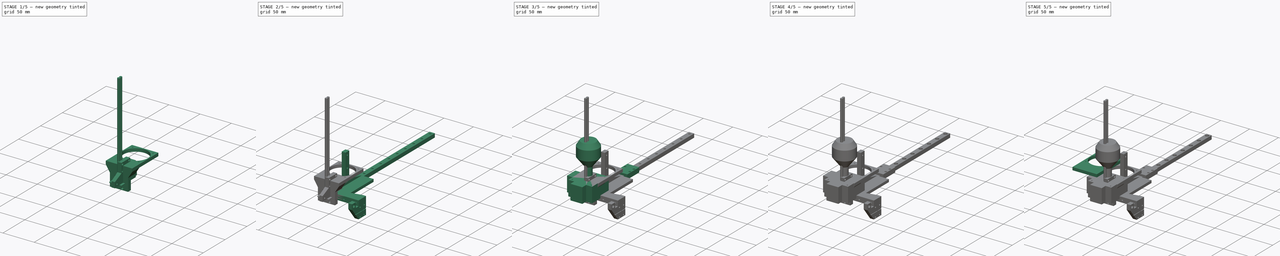
[diagram: build sequence overview — one tinted view per stage of 5, left to right]
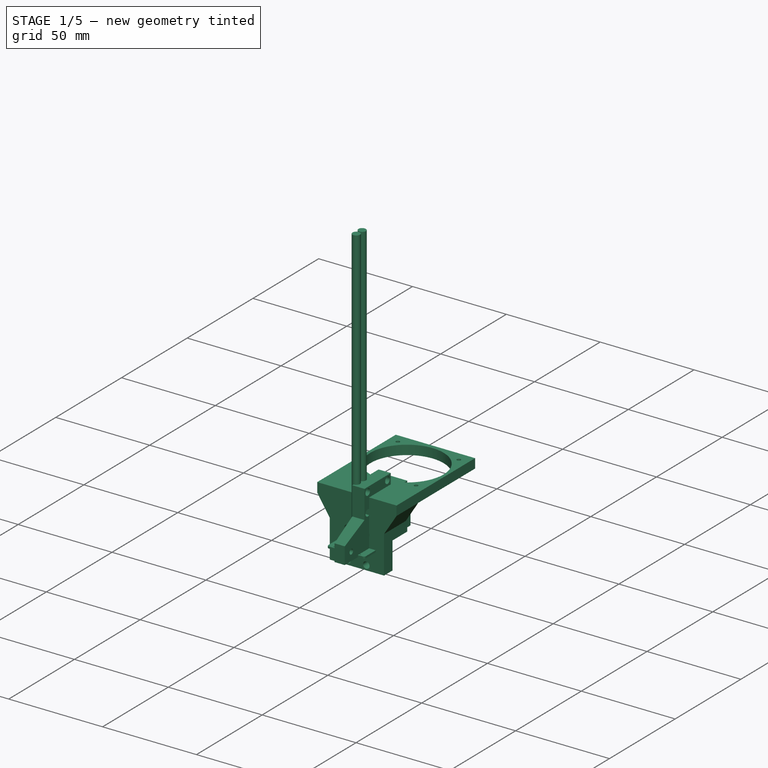
[diagram: stage 1 of 5 — iso view after this stage's code; geometry added in this stage tinted green]
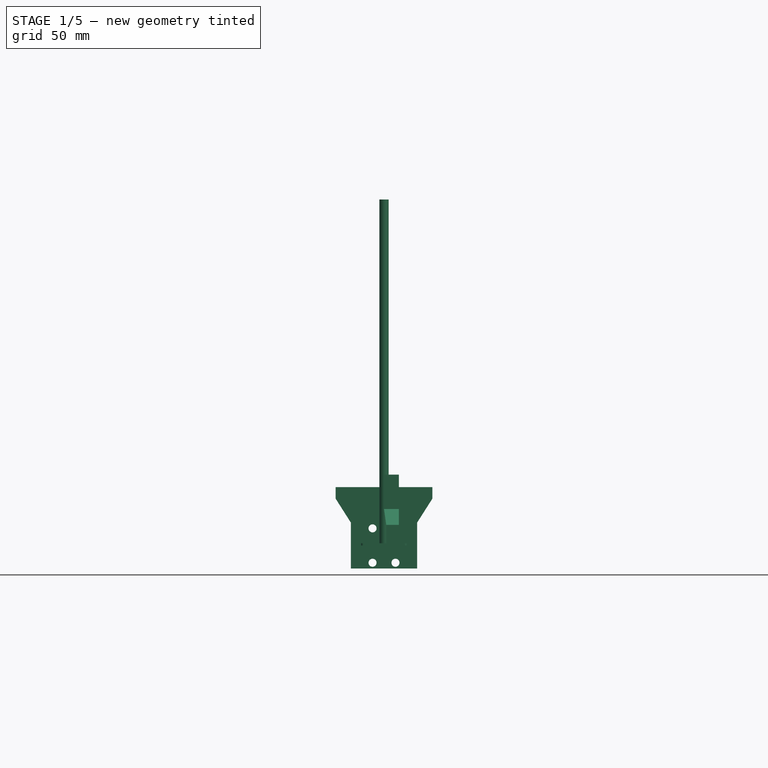
[diagram: stage 1 of 5 — front view after this stage's code; geometry added in this stage tinted green]
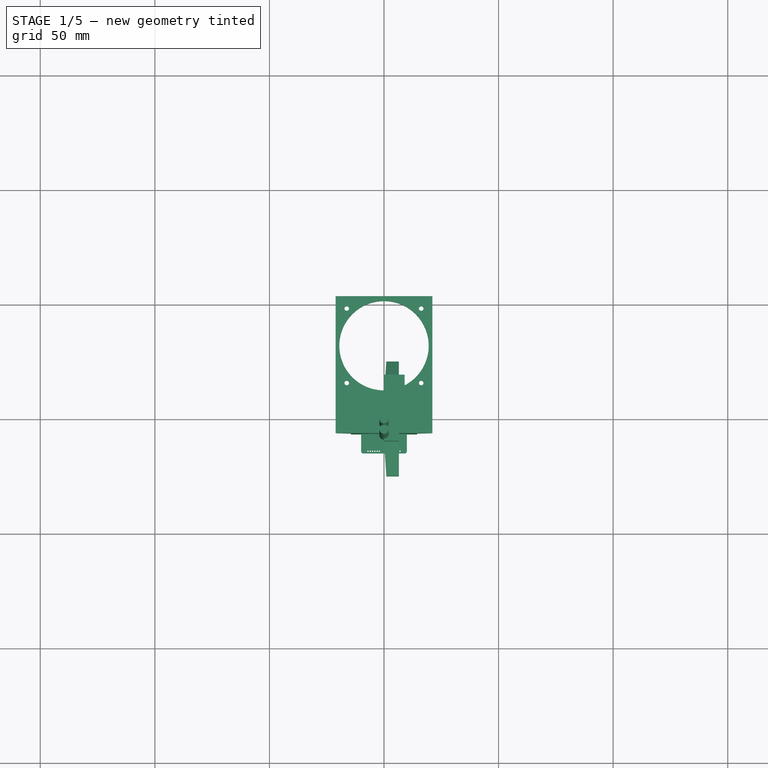
[diagram: stage 1 of 5 — top view after this stage's code; geometry added in this stage tinted green]
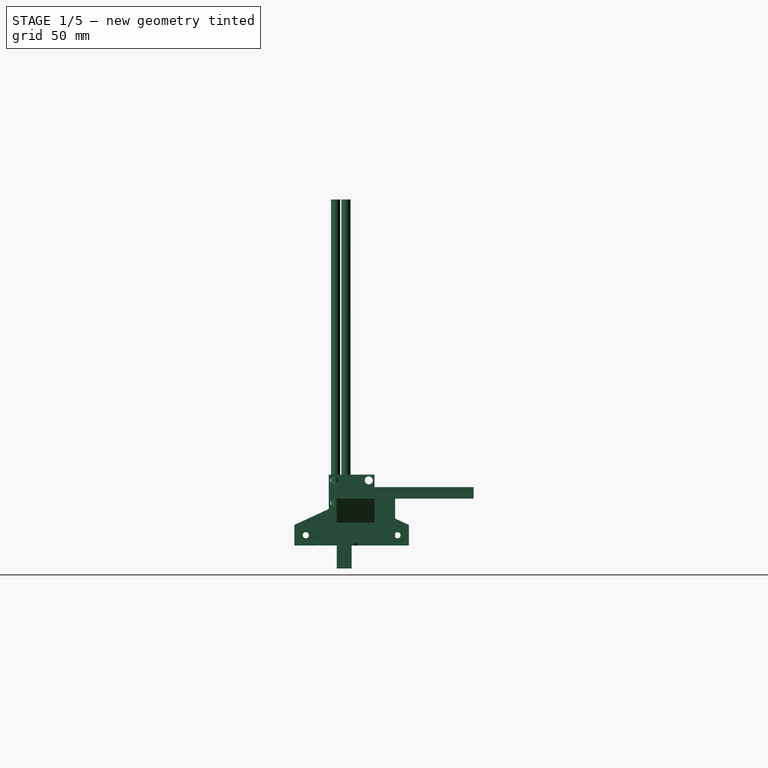
[diagram: stage 1 of 5 — right view after this stage's code; geometry added in this stage tinted green]
FCSTD DOCUMENT  (FreeCAD 0.19R24291 (Git))
Label: v5_changed
License: All rights reserved
LicenseURL: http://en.wikipedia.org/wiki/All_rights_reserved
objects: Sketcher::SketchObject×52, PartDesign::Pad×30, PartDesign::Pocket×21, PartDesign::Body×15, PartDesign::LinearPattern×12, Spreadsheet::Sheet×9, App::LinkGroup×2, PartDesign::Revolution×1, Part::Box×1, Part::Cut×1
note: 185 computed .brp shape members not serialized (recipe doc carries the construction recipe); baked Part::Feature solids carry a one-line shape summary decoded from their .brp

FEATURE [Sketcher::SketchObject] Sketch010
  FullyConstrained = true
  MapMode = 5
  Placement = pos=(0,0,0) rot=(1,0,0;1.5708rad)
  Support = -> [XZ_Plane003]
  expr: Constraints[46] = <<XJC>>.TS
  expr: Constraints[39] = <<XJC>>.TW
  expr: Constraints[31] = <<X>>.VSTR / 2 + <<General>>.Safety
  expr: Constraints[28] = <<Rail>>.SBD / 2
  expr: Constraints[29] = <<Rail>>.SBD / 2
  expr: Constraints[26] = <<Rail>>.SBD / 2
  expr: Constraints[24] = <<Rail>>.HSW
  expr: Constraints[23] = <<Rail>>.HSL
  expr: Constraints[27] = <<Rail>>.SBD / 2
  expr: Constraints[9] = <<Rail>>.HW
  expr: Constraints[8] = <<Rail>>.HL
  sketch-geometry (20):
    g0: LineSegment StartX=-14.45 StartY=10 StartZ=0 EndX=14.45 EndY=10 EndZ=0
    g1: LineSegment StartX=14.45 StartY=10 StartZ=0 EndX=14.45 EndY=-10 EndZ=0
    g2: LineSegment StartX=14.45 StartY=-10 StartZ=0 EndX=-14.45 EndY=-10 EndZ=0
    g3: LineSegment StartX=-14.45 StartY=-10 StartZ=0 EndX=-14.45 EndY=10 EndZ=0
    g4: Circle CenterX=-5 CenterY=7.5 CenterZ=0 NormalX=0 NormalY=0 NormalZ=1 AngleXU=0 Radius=1.75
    g5: Circle CenterX=5 CenterY=7.5 CenterZ=0 NormalX=0 NormalY=0 NormalZ=1 AngleXU=0 Radius=1.75
    g6: Circle CenterX=-5 CenterY=-7.5 CenterZ=0 NormalX=0 NormalY=0 NormalZ=1 AngleXU=0 Radius=1.75
    g7: Circle CenterX=5 CenterY=-7.5 CenterZ=0 NormalX=0 NormalY=0 NormalZ=1 AngleXU=0 Radius=1.75
    g8: LineSegment StartX=-5 StartY=7.5 StartZ=0 EndX=5 EndY=7.5 EndZ=0
    g9: LineSegment StartX=5 StartY=7.5 StartZ=0 EndX=5 EndY=-7.5 EndZ=0
    g10: LineSegment StartX=5 StartY=-7.5 StartZ=0 EndX=-5 EndY=-7.5 EndZ=0
    g11: LineSegment StartX=-5 StartY=-7.5 StartZ=0 EndX=-5 EndY=7.5 EndZ=0
    g12: GeomPoint X=0 Y=5.5 Z=0
    g13: LineSegment StartX=-21.125 StartY=25.5 StartZ=0 EndX=21.125 EndY=25.5 EndZ=0
    g14: LineSegment StartX=21.125 StartY=25.5 StartZ=0 EndX=21.125 EndY=20.5 EndZ=0
    g15: LineSegment StartX=21.125 StartY=20.5 StartZ=0 EndX=-21.125 EndY=20.5 EndZ=0
    g16: LineSegment StartX=-21.125 StartY=20.5 StartZ=0 EndX=-21.125 EndY=25.5 EndZ=0
    g17: LineSegment StartX=21.125 StartY=20.5 StartZ=0 EndX=14.45 EndY=10 EndZ=0
    g18: LineSegment StartX=-21.125 StartY=20.5 StartZ=0 EndX=-14.45 EndY=10 EndZ=0
    g19: LineSegment StartX=-14.45 StartY=-10 StartZ=0 EndX=14.45 EndY=-10 EndZ=0
  constraints (49):
    c: Coincident(g0,g1)
    c: Coincident(g1,g2)
    c: Coincident(g2,g3)
    c: Coincident(g3,g0)
    c: Horizontal(g0)
    c: Horizontal(g2)
    c: Vertical(g1)
    c: Vertical(g3)
    c: DistanceX(g0,g0) = 28.9
    c: DistanceY(g3,g3) = 20
    c: Symmetric(g2,g1,g-1)
    c: Coincident(g8,g9)
    c: Coincident(g9,g10)
    c: Coincident(g10,g11)
    c: Coincident(g11,g8)
    c: Horizontal(g8)
    c: Horizontal(g10)
    c: Vertical(g9)
    c: Vertical(g11)
    c: Coincident(g8,g4)
    c: Coincident(g9,g7)
    c: Coincident(g6,g10)
    c: Coincident(g5,g8)
    c: DistanceX(g8,g8) = 10
    c: DistanceY(g9,g9) = 15
    c: Symmetric(g5,g6,g-1)
    c: Radius(g5) = 1.75
    c: Radius(g4) = 1.75
    c: Radius(g7) = 1.75
    c: Radius(g6) = 1.75
    c: PointOnObject(g12,g-2)
    c: DistanceY(g12) = 5.5
    c: Coincident(g13,g14)
    c: Coincident(g14,g15)
    c: Coincident(g15,g16)
    c: Coincident(g16,g13)
    c: Horizontal(g15)
    c: Vertical(g14)
    c: Vertical(g16)
    c: DistanceX(g13,g13) = 42.25
    c: Symmetric(g13,g13,g-2)
    c: Coincident(g17,g14)
    c: Coincident(g17,g1)
    c: Coincident(g18,g16)
    c: Coincident(g18,g3)
    c: DistanceY(g12,g13) = 20
    c: DistanceY(g14,g14) = 5
    c: Coincident(g19,g3)
    c: Coincident(g1,g19)
FEATURE [PartDesign::Pad] Pad005
  Direction = (1,1,1)
  Length = 6.5
  Length2 = 100
  Placement = pos=(0,0,0) rot=(1,0,0;1.5708rad)
  Profile = -> Sketch010
  Type = 0
  expr: Length = <<Rail>>.RSLH
FEATURE [Sketcher::SketchObject] Sketch011
  ExternalGeometry = -> [Pad005]
  FullyConstrained = true
  MapMode = 5
  Placement = pos=(0,0,0) rot=(1,0,0;1.5708rad)
  Support = -> [XZ_Plane003]
  expr: Constraints[23] = <<Rail>>.RW / 2 + <<General>>.Safety
  expr: Constraints[22] = <<Rail>>.HW / 2
  expr: Constraints[20] = <<Rail>>.HL
  expr: Constraints[13] = <<XJC>>.TS
  sketch-geometry (10):
    g0: LineSegment StartX=-21.125 StartY=25.5 StartZ=0 EndX=21.125 EndY=25.5 EndZ=0
    g1: LineSegment StartX=21.125 StartY=25.5 StartZ=0 EndX=21.125 EndY=20.5 EndZ=0
    g2: LineSegment StartX=21.125 StartY=20.5 StartZ=0 EndX=-21.125 EndY=20.5 EndZ=0
    g3: LineSegment StartX=-21.125 StartY=20.5 StartZ=0 EndX=-21.125 EndY=25.5 EndZ=0
    g4: LineSegment StartX=-21.125 StartY=20.5 StartZ=0 EndX=-11.5893 EndY=5.5 EndZ=0
    g5: LineSegment StartX=-11.5893 StartY=5.5 StartZ=0 EndX=11.5893 EndY=5.5 EndZ=0
    g6: LineSegment StartX=11.5893 StartY=5.5 StartZ=0 EndX=21.125 EndY=20.5 EndZ=0
    g7: LineSegment StartX=-14.45 StartY=10 StartZ=0 EndX=14.45 EndY=10 EndZ=0
    g8: LineSegment StartX=14.45 StartY=10 StartZ=0 EndX=21.125 EndY=20.5 EndZ=0
    g9: LineSegment StartX=-21.125 StartY=20.5 StartZ=0 EndX=-14.45 EndY=10 EndZ=0
  constraints (25):
    c: Coincident(g0,g1)
    c: Coincident(g1,g2)
    c: Coincident(g2,g3)
    c: Coincident(g3,g0)
    c: Horizontal(g2)
    c: Vertical(g1)
    c: Vertical(g3)
    c: Coincident(g4,g3)
    c: Coincident(g5,g4)
    c: Horizontal(g5)
    c: Coincident(g6,g5)
    c: Coincident(g6,g1)
    c: Symmetric(g0,g0,g-2)
    c: DistanceY(g1,g1) = 5
    c: PointOnObject(g7,g4)
    c: PointOnObject(g7,g6)
    c: Coincident(g8,g7)
    c: Coincident(g8,g1)
    c: Coincident(g9,g3)
    c: Coincident(g9,g7)
    c: DistanceX(g7,g7) = 28.9
    c: Symmetric(g7,g7,g-2)
    c: DistanceY(g-1,g7) = 10
    c: DistanceY(g-1,g5) = 5.5
    c: Coincident(g1,g-3)
FEATURE [PartDesign::Pad] Pad006
  BaseFeature = -> Pad005
  Direction = (1,1,1)
  Length = 10
  Length2 = 100
  Placement = pos=(0,0,0) rot=(1,0,0;1.5708rad)
  Profile = -> Sketch011
  Reversed = true
  Type = 0
  expr: Length = <<Rail>>.RB2HB + <<Rail>>.HH
FEATURE [Sketcher::SketchObject] Sketch012
  FullyConstrained = true
  MapMode = 5
  Placement = pos=(0,0,0) rot=(0.57735,0.57735,0.57735;2.0944rad)
  Support = -> [YZ_Plane003]
  expr: Constraints[8] = <<General>>.HM / 2
  expr: Constraints[7] = <<Rail>>.HW / 2
  expr: Constraints[2] = <<Rail>>.RB2HB + <<Rail>>.HH
  expr: Constraints[0] = <<General>>.D4S / 2
  sketch-geometry (4):
    g0: Circle CenterX=5 CenterY=-14.5 CenterZ=0 NormalX=0 NormalY=0 NormalZ=1 AngleXU=0 Radius=3
    g1: GeomPoint X=10 Y=0 Z=0
    g2: LineSegment StartX=5 StartY=0 StartZ=0 EndX=5 EndY=-14.5 EndZ=0
    g3: GeomPoint X=5 Y=-10 Z=0
  constraints (9):
    c: Radius(g0) = 3
    c: PointOnObject(g1,g-1)
    c: DistanceX(g1) = 10
    c: Coincident(g2,g0)
    c: Vertical(g2)
    c: Symmetric(g-1,g1,g2)
    c: PointOnObject(g3,g2)
    c: DistanceY(g3,g2) = 10
    c: DistanceY(g0,g3) = 4.5
FEATURE [PartDesign::Pocket] Pocket004
  BaseFeature = -> Pad006
  Length = 28.9
  Length2 = 100
  Midplane = true
  Placement = pos=(0,0,0) rot=(1,0,0;1.5708rad)
  Profile = -> Sketch012
  Type = 0
  expr: Length = <<Rail>>.HL
FEATURE [PartDesign::Body] Body010  label="PR Z 2"
  Group = -> [Sketch046,Pad023,Sketch043,Pocket019,LinearPattern010,Sketch045,Pocket020,LinearPattern011,Sketch044,Pad024]
  Origin = -> Origin010
  Placement = pos=(0,0,0) rot=(0.57735,-0.57735,-0.57735;2.0944rad)
  Tip = -> Pad024
FEATURE [Sketcher::SketchObject] Sketch047
  FullyConstrained = true
  MapMode = 5
  Placement = pos=(0,0,0) rot=(0.57735,0.57735,0.57735;2.0944rad)
  Support = -> [YZ_Plane011]
  expr: Constraints[53] = <<Rail>>.HL / 2
  expr: Constraints[54] = <<Rail>>.HSW
  expr: Constraints[48] = <<General>>.SBED / 2
  expr: Constraints[16] = <<Rail>>.HSW
  expr: Constraints[15] = <<Rail>>.HSL
  expr: Constraints[45] = <<Rail>>.RS2SO
  expr: Constraints[24] = <<Rail>>.SBD / 2
  expr: Constraints[47] = <<General>>.SBED / 2
  expr: Constraints[46] = <<General>>.SBED / 2
  expr: Constraints[23] = <<Rail>>.SBD / 2
  expr: Constraints[22] = <<Rail>>.SBD / 2
  expr: Constraints[55] = <<Rail>>.RS2SO * 2 + <<Rail>>.RFSO * 2
  expr: Constraints[50] = <<Rail>>.RW
  expr: Constraints[21] = <<Rail>>.SBD / 2
  expr: Constraints[51] = <<Rail>>.HW
  sketch-geometry (26):
    g0: LineSegment StartX=-10 StartY=30.95 StartZ=0 EndX=10 EndY=30.95 EndZ=0
    g1: LineSegment StartX=10 StartY=30.95 StartZ=0 EndX=10 EndY=15.95 EndZ=0
    g2: LineSegment StartX=10 StartY=15.95 StartZ=0 EndX=-10 EndY=15.95 EndZ=0
    g3: LineSegment StartX=-10 StartY=15.95 StartZ=0 EndX=-10 EndY=30.95 EndZ=0
    g4: LineSegment StartX=-7.5 StartY=28.45 StartZ=0 EndX=7.5 EndY=28.45 EndZ=0
    g5: LineSegment StartX=7.5 StartY=28.45 StartZ=0 EndX=7.5 EndY=18.45 EndZ=0
    g6: LineSegment StartX=7.5 StartY=18.45 StartZ=0 EndX=-7.5 EndY=18.45 EndZ=0
    g7: LineSegment StartX=-7.5 StartY=18.45 StartZ=0 EndX=-7.5 EndY=28.45 EndZ=0
    g8: Circle CenterX=-7.5 CenterY=28.45 CenterZ=0 NormalX=0 NormalY=0 NormalZ=1 AngleXU=0 Radius=1.75
    g9: Circle CenterX=7.5 CenterY=28.45 CenterZ=0 NormalX=0 NormalY=0 NormalZ=1 AngleXU=0 Radius=1.75
    g10: Circle CenterX=7.5 CenterY=18.45 CenterZ=0 NormalX=0 NormalY=0 NormalZ=1 AngleXU=0 Radius=1.75
    g11: Circle CenterX=-7.5 CenterY=18.45 CenterZ=0 NormalX=0 NormalY=0 NormalZ=1 AngleXU=0 Radius=1.75
    g12: LineSegment StartX=-10 StartY=15.95 StartZ=0 EndX=10 EndY=15.95 EndZ=0
    g13: LineSegment StartX=10 StartY=15.95 StartZ=0 EndX=25 EndY=9 EndZ=0
    g14: LineSegment StartX=25 StartY=9 StartZ=0 EndX=-25 EndY=9 EndZ=0
    g15: LineSegment StartX=-25 StartY=9 StartZ=0 EndX=-10 EndY=15.95 EndZ=0
    g16: LineSegment StartX=-25 StartY=9 StartZ=0 EndX=25 EndY=9 EndZ=0
    g17: LineSegment StartX=25 StartY=9 StartZ=0 EndX=25 EndY=0 EndZ=0
    g18: LineSegment StartX=25 StartY=0 StartZ=0 EndX=-25 EndY=0 EndZ=0
    g19: LineSegment StartX=-25 StartY=0 StartZ=0 EndX=-25 EndY=9 EndZ=0
    g20: Circle CenterX=-20 CenterY=4.5 CenterZ=0 NormalX=0 NormalY=0 NormalZ=1 AngleXU=0 Radius=1.3375
    g21: Circle CenterX=-3e-16 CenterY=4.5 CenterZ=0 NormalX=0 NormalY=0 NormalZ=1 AngleXU=0 Radius=1.3375
    g22: Circle CenterX=20 CenterY=4.5 CenterZ=0 NormalX=0 NormalY=0 NormalZ=1 AngleXU=0 Radius=1.3375
    g23: LineSegment StartX=-20 StartY=4.5 StartZ=0 EndX=20 EndY=4.5 EndZ=0
    g24: GeomPoint X=-10 Y=23.45 Z=0
    g25: GeomPoint X=-2e-16 Y=23.45 Z=0
  constraints (60):
    c: Coincident(g0,g1)
    c: Coincident(g1,g2)
    c: Coincident(g2,g3)
    c: Coincident(g3,g0)
    c: Horizontal(g2)
    c: Vertical(g1)
    c: Vertical(g3)
    c: Coincident(g4,g5)
    c: Coincident(g5,g6)
    c: Coincident(g6,g7)
    c: Coincident(g7,g4)
    c: Horizontal(g4)
    c: Horizontal(g6)
    c: Vertical(g5)
    c: Vertical(g7)
    c: DistanceY(g5,g5) = 10
    c: DistanceX(g6,g6) = 15
    c: Coincident(g8,g4)
    c: Coincident(g9,g4)
    c: Coincident(g10,g5)
    c: Coincident(g11,g6)
    c: Radius(g11) = 1.75
    c: Radius(g8) = 1.75
    c: Radius(g9) = 1.75
    c: Radius(g10) = 1.75
    c: Coincident(g12,g13)
    c: Coincident(g13,g14)
    c: Coincident(g14,g15)
    c: Coincident(g15,g12)
    c: Coincident(g12,g3)
    c: Symmetric(g14,g13,g-2)
    c: Symmetric(g0,g0,g-2)
    c: Coincident(g12,g1)
    c: Coincident(g16,g17)
    c: Coincident(g17,g18)
    c: Coincident(g18,g19)
    c: Coincident(g19,g16)
    c: Horizontal(g18)
    c: Vertical(g17)
    c: Vertical(g19)
    c: Coincident(g16,g14)
    c: Coincident(g13,g16)
    c: Coincident(g23,g20)
    c: Coincident(g23,g22)
    c: PointOnObject(g21,g23)
    c: DistanceX(g21,g22) = 20
    c: Radius(g22) = 1.3375
    c: Radius(g21) = 1.3375
    c: Radius(g20) = 1.3375
    c: Symmetric(g14,g17,g21)
    c: DistanceY(g17,g17) = 9
    c: DistanceX(g12,g12) = 20
    c: Symmetric(g0,g3,g24)
    c: DistanceY(g14,g24) = 14.45
    c: DistanceY(g3,g3) = 15
    c: DistanceX(g18,g18) = 50
    c: Symmetric(g0,g3,g25)
    c: Symmetric(g8,g10,g25)
    c: PointOnObject(g-1,g18)
    c: Symmetric(g20,g22,g-2)
FEATURE [Spreadsheet::Sheet] Spreadsheet008  label="YZC"
FEATURE [PartDesign::Pad] Pad025
  Direction = (1,1,1)
  Length = 6.5
  Length2 = 100
  Placement = pos=(0,0,0) rot=(0.57735,0.57735,0.57735;2.0944rad)
  Profile = -> Sketch047
  Type = 0
  expr: Length = <<Rail>>.RSLH
FEATURE [Sketcher::SketchObject] Sketch048
  ExternalGeometry = -> [Pad025]
  FullyConstrained = true
  MapMode = 5
  Placement = pos=(0,0,0) rot=(1,0,0;1.5708rad)
  Support = -> [XZ_Plane011]
  expr: Constraints[9] = <<Rail>>.RSLH - <<Rail>>.RSLR
  expr: Constraints[7] = 0
  sketch-geometry (4):
    g0: LineSegment StartX=0 StartY=15.95 StartZ=0 EndX=0 EndY=0 EndZ=0
    g1: LineSegment StartX=0 StartY=0 StartZ=0 EndX=1 EndY=0 EndZ=0
    g2: LineSegment StartX=1 StartY=0 StartZ=0 EndX=1 EndY=9 EndZ=0
    g3: LineSegment StartX=1 StartY=9 StartZ=0 EndX=0 EndY=15.95 EndZ=0
  constraints (11):
    c: PointOnObject(g0,g-2)
    c: Coincident(g0,g-1)
    c: Coincident(g0,g1)
    c: Coincident(g1,g2)
    c: Vertical(g2)
    c: Coincident(g2,g3)
    c: Coincident(g0,g3)
    c: DistanceY(g0,g-3) = 0
    c: Horizontal(g1)
    c: DistanceX(g1) = 1
    c: DistanceY(g2,g-3) = 0
FEATURE [PartDesign::Pocket] Pocket021
  BaseFeature = -> Pad025
  Length = 5
  Length2 = 100
  Midplane = true
  Placement = pos=(0,0,0) rot=(0.57735,0.57735,0.57735;2.0944rad)
  Profile = -> Sketch048
  Type = 1
FEATURE [PartDesign::Body] Body011  label="YZC Part"
  Group = -> [Sketch047,Pad025,Sketch048,Pocket021,Sketch056,Pocket025]
  Origin = -> Origin011
  Placement = pos=(-141.5,-20,60.5) rot=(0,0,1;0rad)
  Tip = -> Pocket025
  expr: .Placement.Base.y = -30.68 - 0.87 + 8.050000000000001 + <<Rail>>.SBD
  expr: .Placement.Base.x = -125 - 6.5 - 10
  expr: .Placement.Base.z = <<Rail>>.Axial_Offset - 19.5
FEATURE [Sketcher::SketchObject] Sketch057
  FullyConstrained = true
  MapMode = 5
  Support = -> [XY_Plane013]
  expr: Constraints[12] = <<Rail>>.RFSO
  expr: Constraints[10] = <<General>>.SBED / 2
  expr: Constraints[14] = <<General>>.HM
  expr: Constraints[9] = <<Rail>>.RW
  sketch-geometry (6):
    g0: LineSegment StartX=0 StartY=0 StartZ=0 EndX=9 EndY=0 EndZ=0
    g1: LineSegment StartX=9 StartY=0 StartZ=0 EndX=9 EndY=19 EndZ=0
    g2: LineSegment StartX=9 StartY=19 StartZ=0 EndX=0 EndY=19 EndZ=0
    g3: LineSegment StartX=0 StartY=19 StartZ=0 EndX=0 EndY=0 EndZ=0
    g4: Circle CenterX=4.5 CenterY=5 CenterZ=0 NormalX=0 NormalY=0 NormalZ=1 AngleXU=0 Radius=1.3375
    g5: GeomPoint X=9 Y=10 Z=0
  constraints (15):
    c: Coincident(g0,g1)
    c: Coincident(g1,g2)
    c: Coincident(g2,g3)
    c: Coincident(g3,g0)
    c: Horizontal(g0)
    c: Horizontal(g2)
    c: Vertical(g1)
    c: Vertical(g3)
    c: Coincident(g0,g-1)
    c: DistanceX(g0,g0) = 9
    c: Radius(g4) = 1.3375
    c: PointOnObject(g5,g1)
    c: DistanceY(g0,g4) = 5
    c: Symmetric(g5,g0,g4)
    c: DistanceY(g5,g1) = 9
FEATURE [PartDesign::Pad] Pad030
  Direction = (1,1,1)
  Length = 9
  Length2 = 100
  Profile = -> Sketch057
  Type = 0
  expr: Length = <<General>>.HM
FEATURE [Sketcher::SketchObject] Sketch058
  ExternalGeometry = -> [Pad030]
  FullyConstrained = true
  MapMode = 5
  Placement = pos=(0,0,9) rot=(0,0,1;0rad)
  Support = -> [Pad030]
  expr: Constraints[10] = <<General>>.HM
  sketch-geometry (4):
    g0: LineSegment StartX=9 StartY=19 StartZ=0 EndX=0 EndY=19 EndZ=0
    g1: LineSegment StartX=0 StartY=19 StartZ=0 EndX=0 EndY=10 EndZ=0
    g2: LineSegment StartX=0 StartY=10 StartZ=0 EndX=9 EndY=10 EndZ=0
    g3: LineSegment StartX=9 StartY=10 StartZ=0 EndX=9 EndY=19 EndZ=0
  constraints (11):
    c: Coincident(g0,g1)
    c: Coincident(g1,g2)
    c: Coincident(g2,g3)
    c: Coincident(g3,g0)
    c: Horizontal(g0)
    c: Horizontal(g2)
    c: Vertical(g1)
    c: Vertical(g3)
    c: Coincident(g0,g-3)
    c: PointOnObject(g1,g-2)
    c: DistanceY(g3,g3) = 9
FEATURE [PartDesign::Pad] Pad031
  BaseFeature = -> Pad030
  Direction = (1,1,1)
  Length = 15.5
  Length2 = 100
  Profile = -> Sketch058
  Type = 0
  expr: Length = <<Rail>>.RH + <<General>>.HM
FEATURE [Sketcher::SketchObject] Sketch059
  ExternalGeometry = -> [Pad031]
  FullyConstrained = true
  MapMode = 5
  Placement = pos=(0,19,0) rot=(0,0.707107,0.707107;3.14159rad)
  Support = -> [Pad031]
  expr: Constraints[3] = <<General>>.SRD / 2
  expr: Constraints[1] = <<General>>.HM
  sketch-geometry (2):
    g0: GeomPoint X=-9 Y=15.5 Z=0
    g1: Circle CenterX=-4.5 CenterY=20 CenterZ=0 NormalX=0 NormalY=0 NormalZ=1 AngleXU=0 Radius=2.5
  constraints (4):
    c: PointOnObject(g0,g-4)
    c: DistanceY(g0,g-4) = 9
    c: Symmetric(g-3,g0,g1)
    c: Radius(g1) = 2.5
FEATURE [PartDesign::Pocket] Pocket026
  BaseFeature = -> Pad031
  Length = 5
  Length2 = 100
  Profile = -> Sketch059
  Type = 1
FEATURE [PartDesign::Body] Body013  label="Stopper"
  Group = -> [Sketch057,Pad030,Sketch058,Pad031,Sketch059,Pocket026]
  Origin = -> Origin013
  Placement = pos=(-144,115,69.5) rot=(0,1,0;1.5708rad)
  Tip = -> Pocket026
  expr: .Placement.Base.x = -119.5 - 24.5
  expr: .Placement.Base.z = 60.5 + 9
FEATURE [Sketcher::SketchObject] Sketch060
  FullyConstrained = true
  MapMode = 5
  Support = -> [XY_Plane014]
  sketch-geometry (22):
    g0: LineSegment StartX=-4 StartY=1 StartZ=0 EndX=4 EndY=1 EndZ=0
    g1: LineSegment StartX=4 StartY=1 StartZ=0 EndX=4 EndY=-6 EndZ=0
    g2: LineSegment StartX=4 StartY=-6 StartZ=0 EndX=-4 EndY=-6 EndZ=0
    g3: LineSegment StartX=-4 StartY=-6 StartZ=0 EndX=-4 EndY=1 EndZ=0
    g4: Circle CenterX=-3 CenterY=0 CenterZ=0 NormalX=0 NormalY=0 NormalZ=1 AngleXU=0 Radius=0.5
    g5: Circle CenterX=3 CenterY=0 CenterZ=0 NormalX=0 NormalY=0 NormalZ=1 AngleXU=0 Radius=0.5
    g6: Circle CenterX=-3 CenterY=-5 CenterZ=0 NormalX=0 NormalY=0 NormalZ=1 AngleXU=0 Radius=0.3
    g7: Circle CenterX=-2 CenterY=-5 CenterZ=0 NormalX=0 NormalY=0 NormalZ=1 AngleXU=0 Radius=0.3
    g8: Circle CenterX=-1 CenterY=-5 CenterZ=0 NormalX=0 NormalY=0 NormalZ=1 AngleXU=0 Radius=0.3
    g9: Circle CenterX=1e-16 CenterY=-5 CenterZ=0 NormalX=0 NormalY=0 NormalZ=1 AngleXU=0 Radius=0.3
    g10: Circle CenterX=1 CenterY=-5 CenterZ=0 NormalX=0 NormalY=0 NormalZ=1 AngleXU=0 Radius=0.3
    g11: Circle CenterX=2 CenterY=-5 CenterZ=0 NormalX=0 NormalY=0 NormalZ=1 AngleXU=0 Radius=0.3
    g12: Circle CenterX=3 CenterY=-5 CenterZ=0 NormalX=0 NormalY=0 NormalZ=1 AngleXU=0 Radius=0.3
    g13: LineSegment StartX=-4 StartY=-5 StartZ=0 EndX=4 EndY=-5 EndZ=0
    g14: ArcOfCircle CenterX=-3 CenterY=4e-16 CenterZ=0 NormalX=0 NormalY=0 NormalZ=1 AngleXU=0 Radius=1 StartAngle=1.5708 EndAngle=3.14159
    g15: ArcOfCircle CenterX=3 CenterY=4e-16 CenterZ=0 NormalX=0 NormalY=0 NormalZ=1 AngleXU=0 Radius=1 StartAngle=6.28319 EndAngle=7.85398
    g16: ArcOfCircle CenterX=3 CenterY=-5 CenterZ=0 NormalX=0 NormalY=0 NormalZ=1 AngleXU=0 Radius=1 StartAngle=4.71239 EndAngle=6.28319
    g17: ArcOfCircle CenterX=-3 CenterY=-5 CenterZ=0 NormalX=0 NormalY=0 NormalZ=1 AngleXU=0 Radius=1 StartAngle=3.14159 EndAngle=4.71239
    g18: LineSegment StartX=-3 StartY=1 StartZ=0 EndX=3 EndY=1 EndZ=0
    g19: LineSegment StartX=4 StartY=-1.40944e-08 StartZ=0 EndX=4 EndY=-5 EndZ=0
    g20: LineSegment StartX=-3 StartY=-6 StartZ=0 EndX=3 EndY=-6 EndZ=0
    g21: LineSegment StartX=-4 StartY=-5 StartZ=0 EndX=-4 EndY=1.47689e-08 EndZ=0
  constraints (70):
    c: Coincident(g0,g1)
    c: Coincident(g1,g2)
    c: Coincident(g2,g3)
    c: Coincident(g3,g0)
    c: Horizontal(g2)
    c: Vertical(g1)
    c: Vertical(g3)
    c: DistanceX(g0,g0) = 8
    c: DistanceY(g1,g1) = 7
    c: Radius(g4) = 0.5
    c: DistanceX(g4,g5) = 6
    c: Symmetric(g4,g5,g-2)
    c: Symmetric(g0,g0,g-2)
    c: DistanceY(g2,g4) = 6
    c: Radius(g5) = 0.5
    c: PointOnObject(g13,g3)
    c: Horizontal(g13)
    c: Equal(g13,g2)
    c: PointOnObject(g12,g13)
    c: PointOnObject(g11,g13)
    c: PointOnObject(g10,g13)
    c: PointOnObject(g9,g13)
    c: PointOnObject(g8,g13)
    c: PointOnObject(g7,g13)
    c: PointOnObject(g6,g13)
    c: DistanceX(g5,g12) = 0
    c: DistanceX(g4,g6) = 0
    c: Radius(g6) = 0.3
    c: Radius(g7) = 0.3
    c: Radius(g8) = 0.3
    c: Radius(g9) = 0.3
    c: Radius(g10) = 0.3
    c: Radius(g11) = 0.3
    c: Radius(g12) = 0.3
    c: DistanceY(g1,g13) = 1
    c: DistanceX(g0,g4) = 1
    c: PointOnObject(g5,g-1)
    c: PointOnObject(g14,g0)
    c: PointOnObject(g14,g3)
    c: PointOnObject(g15,g1)
    c: PointOnObject(g15,g0)
    c: PointOnObject(g16,g2)
    c: PointOnObject(g16,g1)
    c: PointOnObject(g17,g3)
    c: PointOnObject(g17,g2)
    c: Tangent(g17,g2)
    c: Tangent(g3,g17)
    c: Tangent(g14,g0)
    c: Tangent(g3,g14)
    c: Tangent(g15,g1)
    c: Tangent(g15,g0)
    c: Tangent(g16,g1)
    c: Tangent(g16,g2)
    c: Radius(g15) = 1
    c: Radius(g14) = 1
    c: Radius(g17) = 1
    c: Radius(g16) = 1
    c: DistanceX(g6,g7) = 1
    c: DistanceX(g7,g8) = 1
    c: DistanceX(g8,g9) = 1
    c: DistanceX(g9,g10) = 1
    c: DistanceX(g10,g11) = 1
    c: Coincident(g18,g14)
    c: Coincident(g18,g15)
    c: Coincident(g19,g15)
    c: Coincident(g19,g16)
    c: Coincident(g20,g17)
    c: Coincident(g20,g16)
    c: Coincident(g21,g17)
    c: Coincident(g21,g14)
FEATURE [PartDesign::Pad] Pad032
  Direction = (1,1,1)
  Length = 1
  Length2 = 100
  Profile = -> Sketch060
  Type = 0
FEATURE [Sketcher::SketchObject] Sketch061
  ExternalGeometry = -> [Pad032]
  FullyConstrained = true
  MapMode = 5
  Placement = pos=(0,0,1) rot=(0,0,1;0rad)
  Support = -> [Pad032]
  sketch-geometry (3):
    g0: Circle CenterX=0 CenterY=-2.5 CenterZ=0 NormalX=0 NormalY=0 NormalZ=1 AngleXU=0 Radius=2
    g1: LineSegment StartX=-4 StartY=-5 StartZ=0 EndX=4 EndY=-1.40944e-08 EndZ=0
    g2: LineSegment StartX=-4 StartY=1.47689e-08 StartZ=0 EndX=4 EndY=-5 EndZ=0
  constraints (7):
    c: PointOnObject(g0,g-2)
    c: Coincident(g1,g-3)
    c: Coincident(g1,g-4)
    c: Coincident(g2,g-3)
    c: Coincident(g2,g-4)
    c: PointOnObject(g0,g1)
    c: Radius(g0) = 2
FEATURE [PartDesign::Pad] Pad033
  BaseFeature = -> Pad032
  Direction = (1,1,1)
  Length = 150
  Length2 = 100
  Profile = -> Sketch061
  Type = 0
FEATURE [PartDesign::Body] Body014  label="VL6180X "
  Group = -> [Sketch060,Pad032,Sketch061,Pad033]
  Origin = -> Origin014
  Tip = -> Pad033
FEATURE [Sketcher::SketchObject] Sketch063
  FullyConstrained = false
  MapMode = 5
  Support = -> [XY_Plane015]
  sketch-geometry (22):
    g0: LineSegment StartX=-10 StartY=3 StartZ=0 EndX=10 EndY=3 EndZ=0
    g1: LineSegment StartX=10 StartY=3 StartZ=0 EndX=10 EndY=-15 EndZ=0
    g2: LineSegment StartX=10 StartY=-15 StartZ=0 EndX=-10 EndY=-15 EndZ=0
    g3: LineSegment StartX=-10 StartY=-15 StartZ=0 EndX=-10 EndY=3 EndZ=0
    g4: Circle CenterX=-7 CenterY=0 CenterZ=0 NormalX=0 NormalY=0 NormalZ=1 AngleXU=0 Radius=2.5
    g5: Circle CenterX=7 CenterY=0 CenterZ=0 NormalX=0 NormalY=0 NormalZ=1 AngleXU=0 Radius=2.5
    g6: Circle CenterX=-7 CenterY=-14 CenterZ=0 NormalX=0 NormalY=0 NormalZ=1 AngleXU=0 Radius=0.3
    g7: Circle CenterX=-6 CenterY=-14 CenterZ=0 NormalX=0 NormalY=0 NormalZ=1 AngleXU=0 Radius=0.3
    g8: Circle CenterX=-5 CenterY=-14 CenterZ=0 NormalX=0 NormalY=0 NormalZ=1 AngleXU=0 Radius=0.3
    g9: Circle CenterX=-4 CenterY=-14 CenterZ=0 NormalX=0 NormalY=0 NormalZ=1 AngleXU=0 Radius=0.3
    g10: Circle CenterX=-3 CenterY=-14 CenterZ=0 NormalX=0 NormalY=0 NormalZ=1 AngleXU=0 Radius=0.3
    g11: Circle CenterX=-2 CenterY=-14 CenterZ=0 NormalX=0 NormalY=0 NormalZ=1 AngleXU=0 Radius=0.3
    g12: Circle CenterX=7 CenterY=-14 CenterZ=0 NormalX=0 NormalY=0 NormalZ=1 AngleXU=0 Radius=0.3
    g13: LineSegment StartX=-10 StartY=-14 StartZ=0 EndX=10 EndY=-14 EndZ=0
    g14: ArcOfCircle CenterX=-9 CenterY=2 CenterZ=0 NormalX=0 NormalY=0 NormalZ=1 AngleXU=0 Radius=1 StartAngle=1.5708 EndAngle=3.14159
    g15: ArcOfCircle CenterX=7 CenterY=0 CenterZ=0 NormalX=0 NormalY=0 NormalZ=1 AngleXU=0 Radius=3 StartAngle=6.28318 EndAngle=7.85398
    g16: ArcOfCircle CenterX=9 CenterY=-14 CenterZ=0 NormalX=0 NormalY=0 NormalZ=1 AngleXU=0 Radius=1 StartAngle=4.71239 EndAngle=6.28319
    g17: ArcOfCircle CenterX=-9 CenterY=-14 CenterZ=0 NormalX=0 NormalY=0 NormalZ=1 AngleXU=0 Radius=1 StartAngle=3.14159 EndAngle=4.71239
    g18: LineSegment StartX=-9 StartY=3 StartZ=0 EndX=7 EndY=3 EndZ=0
    g19: LineSegment StartX=10 StartY=-1.61116e-05 StartZ=0 EndX=10 EndY=-14 EndZ=0
    g20: LineSegment StartX=-9 StartY=-15 StartZ=0 EndX=9 EndY=-15 EndZ=0
    g21: LineSegment StartX=-10 StartY=-14 StartZ=0 EndX=-10 EndY=2 EndZ=0
  constraints (63):
    c: Coincident(g0,g1)
    c: Coincident(g1,g2)
    c: Coincident(g2,g3)
    c: Coincident(g3,g0)
    c: Horizontal(g2)
    c: Vertical(g1)
    c: Vertical(g3)
    c: DistanceX(g0,g0) = 20
    c: DistanceY(g1,g1) = 18
    c: Radius(g4) = 2.5
    c: Symmetric(g4,g5,g-2)
    c: Symmetric(g0,g0,g-2)
    c: Radius(g5) = 2.5
    c: PointOnObject(g13,g3)
    c: Horizontal(g13)
    c: Equal(g13,g2)
    c: PointOnObject(g12,g13)
    c: PointOnObject(g11,g13)
    c: PointOnObject(g10,g13)
    c: PointOnObject(g9,g13)
    c: PointOnObject(g8,g13)
    c: PointOnObject(g7,g13)
    c: PointOnObject(g6,g13)
    c: DistanceX(g5,g12) = 0
    c: DistanceX(g4,g6) = 0
    c: Radius(g6) = 0.3
    c: Radius(g7) = 0.3
    c: Radius(g8) = 0.3
    c: Radius(g9) = 0.3
    c: Radius(g10) = 0.3
    c: Radius(g11) = 0.3
    c: Radius(g12) = 0.3
    c: DistanceY(g1,g13) = 1
    c: PointOnObject(g5,g-1)
    c: PointOnObject(g14,g0)
    c: PointOnObject(g14,g3)
    c: PointOnObject(g15,g1)
    c: PointOnObject(g15,g0)
    c: PointOnObject(g16,g2)
    c: PointOnObject(g16,g1)
    c: PointOnObject(g17,g3)
    c: PointOnObject(g17,g2)
    c: Tangent(g17,g2)
    c: Tangent(g3,g17)
    c: Tangent(g14,g0)
    c: Tangent(g3,g14)
    c: Tangent(g15,g1)
    c: Tangent(g15,g0)
    c: Tangent(g16,g1)
    c: Tangent(g16,g2)
    c: Radius(g15) = 3
    c: Radius(g14) = 1
    c: Radius(g17) = 1
    c: Radius(g16) = 1
    c: Coincident(g18,g14)
    c: Coincident(g18,g15)
    c: Coincident(g19,g15)
    c: Coincident(g19,g16)
    c: Coincident(g20,g17)
    c: Coincident(g20,g16)
    c: Coincident(g21,g17)
    c: Coincident(g21,g14)
    c: Coincident(g5,g15)
FEATURE [PartDesign::Pad] Pad034
  Direction = (1,1,1)
  Length = 1
  Length2 = 100
  Profile = -> Sketch063
  Type = 0
FEATURE [Sketcher::SketchObject] Sketch062
  ExternalGeometry = -> [Pad034]
  FullyConstrained = true
  MapMode = 5
  Placement = pos=(0,0,1) rot=(0,0,1;0rad)
  Support = -> [Pad034]
  sketch-geometry (3):
    g0: Circle CenterX=0 CenterY=-7.00001 CenterZ=0 NormalX=0 NormalY=0 NormalZ=1 AngleXU=0 Radius=2
    g1: LineSegment StartX=-10 StartY=-14 StartZ=0 EndX=10 EndY=-1.61116e-05 EndZ=0
    g2: LineSegment StartX=-10 StartY=2 StartZ=0 EndX=10 EndY=-14 EndZ=0
  constraints (7):
    c: PointOnObject(g0,g-2)
    c: Coincident(g1,g-3)
    c: Coincident(g1,g-4)
    c: Coincident(g2,g-3)
    c: Coincident(g2,g-4)
    c: PointOnObject(g0,g1)
    c: Radius(g0) = 2
FEATURE [PartDesign::Pad] Pad035
  BaseFeature = -> Pad034
  Direction = (1,1,1)
  Length = 150
  Length2 = 100
  Profile = -> Sketch062
  Type = 0
FEATURE [PartDesign::Body] Body015  label="VL6180X 001"
  Group = -> [Sketch063,Pad034,Sketch062,Pad035]
  Origin = -> Origin015
  Placement = pos=(-129,129,75) rot=(1,0,0;1.5708rad)
  Tip = -> Pad035
FEATURE [PartDesign::Pad] Pad007
  BaseFeature = -> Pocket004
  Direction = (1,1,1)
  Length = 5
  Length2 = 100
  Placement = pos=(0,0,0) rot=(1,0,0;1.5708rad)
  Profile = -> Sketch013
  Reversed = true
  Type = 0
  expr: Length = <<XJC>>.TS
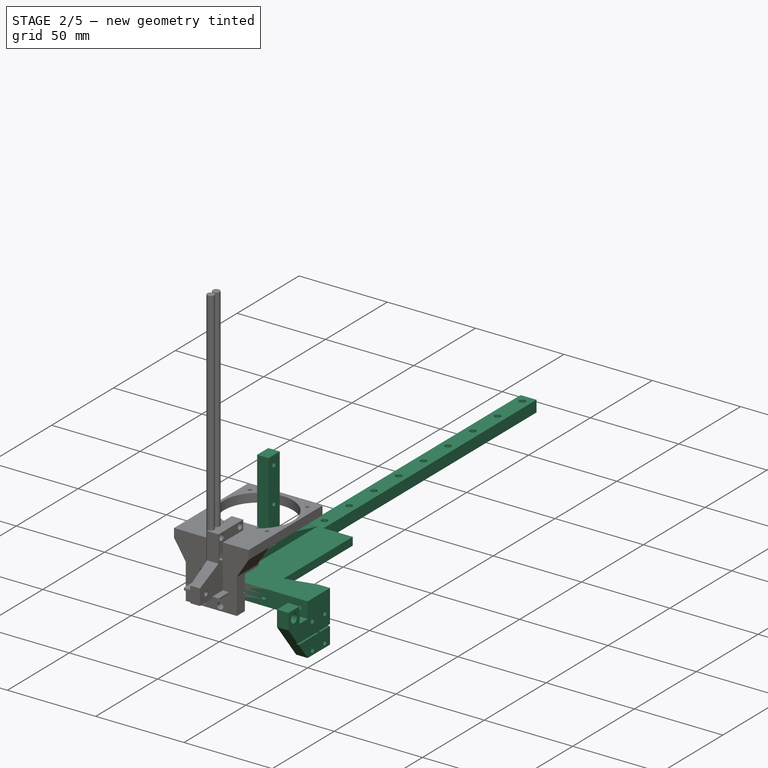
[diagram: stage 2 of 5 — iso view after this stage's code; geometry added in this stage tinted green]
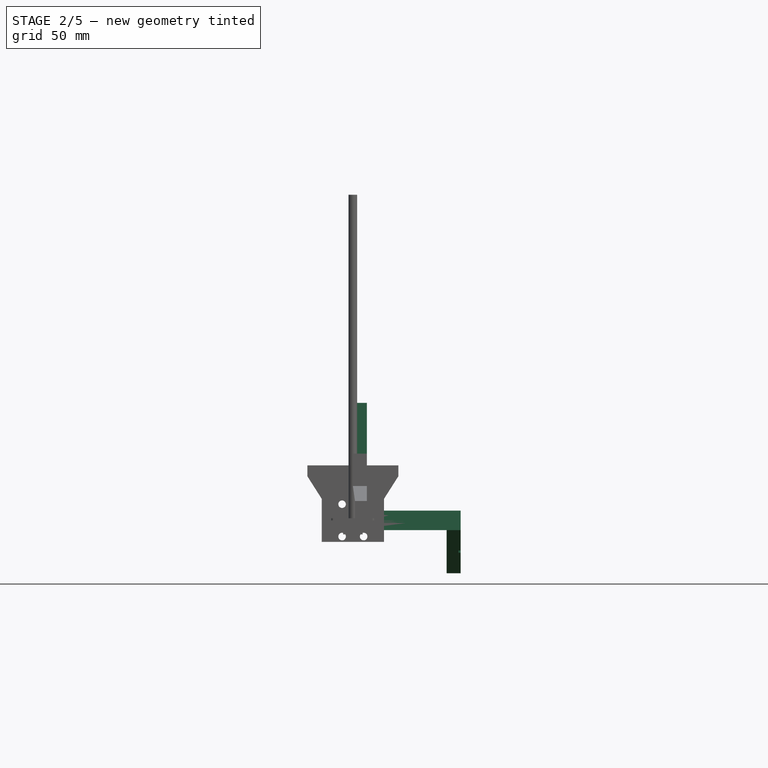
[diagram: stage 2 of 5 — front view after this stage's code; geometry added in this stage tinted green]
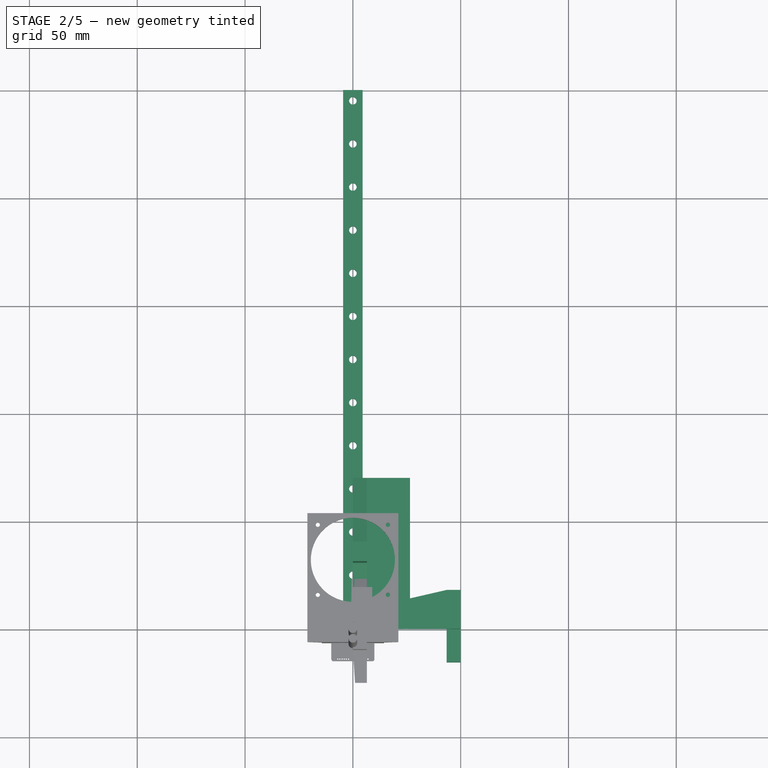
[diagram: stage 2 of 5 — top view after this stage's code; geometry added in this stage tinted green]
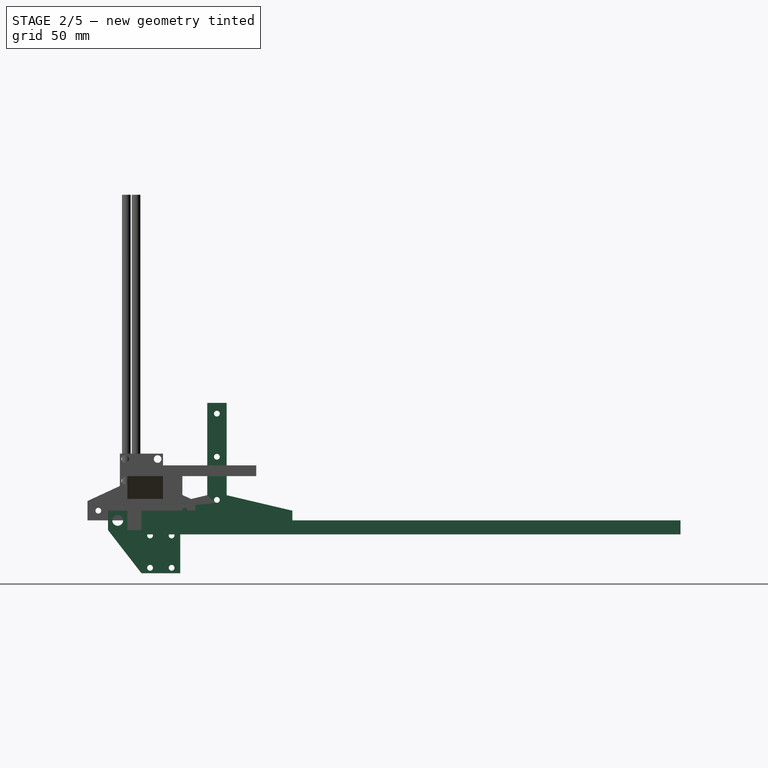
[diagram: stage 2 of 5 — right view after this stage's code; geometry added in this stage tinted green]
FEATURE [PartDesign::Body] Body  label="ProtoRail"
  Group = -> [Sketch,Pad,Sketch001,Pocket,LinearPattern,Sketch002,Pocket001,LinearPattern001,Sketch005,Pad002]
  Origin = -> Origin
  Tip = -> Pad002
FEATURE [Spreadsheet::Sheet] Spreadsheet006  label="XJC"
  cells = A5=Screw Width; B5(SW)=32.5; A6=Top Width; B6(TW)==SW * 1.3; A7=Top Strength; B7(TS)=5; A9=Depth Strength; B9(DS)=10
FEATURE [Spreadsheet::Sheet] Spreadsheet007  label="General"
  cells = A4=Safety Distances; B4(Safety)=1; A7=Spring Rod:; A8=Diameter; B8(SRD)=5; A9=Holder Min; B9(HM)==D4S * 1.5; A10=Diameter for Sliding; B10(D4S)==SRD * 1.2; A12=In Case of Gummiband; A13=Gummiband Screw Diameter; B13(GSD)=3; A16=M3; A17=Screw Body Effective Diameter; B17(SBED)=2.675; A19=Spring Clamper Depth; B19(SCD)=1; A20=Spring Clamper Length; B20(SCL)=1
FEATURE [Sketcher::SketchObject] Sketch006
  FullyConstrained = true
  MapMode = 5
  Support = -> [XY_Plane002]
  expr: Constraints[9] = <<Rail>>.RL
  expr: Constraints[10] = <<Rail>>.RW
  sketch-geometry (4):
    g0: LineSegment StartX=4.5 StartY=0 StartZ=0 EndX=-4.5 EndY=0 EndZ=0
    g1: LineSegment StartX=-4.5 StartY=0 StartZ=0 EndX=-4.5 EndY=250 EndZ=0
    g2: LineSegment StartX=-4.5 StartY=250 StartZ=0 EndX=4.5 EndY=250 EndZ=0
    g3: LineSegment StartX=4.5 StartY=250 StartZ=0 EndX=4.5 EndY=0 EndZ=0
  constraints (11):
    c: Coincident(g0,g1)
    c: Coincident(g1,g2)
    c: Coincident(g2,g3)
    c: Coincident(g3,g0)
    c: Horizontal(g0)
    c: Horizontal(g2)
    c: Vertical(g1)
    c: Vertical(g3)
    c: Symmetric(g0,g0,g-1)
    c: DistanceY(g3,g3) = 250
    c: DistanceX(g0,g0) = 9
FEATURE [Sketcher::SketchObject] Sketch007
  AttachmentOffset = pos=(0,0,-4.5) rot=(0,0,1;0rad)
  FullyConstrained = true
  MapMode = 5
  Placement = pos=(0,0,-4.5) rot=(0,0,1;0rad)
  Support = -> [XY_Plane002]
  expr: Constraints[30] = <<Rail>>.HSW
  expr: Constraints[29] = <<Rail>>.HSL
  expr: Constraints[14] = <<Rail>>.SBD / 2
  expr: Constraints[12] = <<Rail>>.SBD / 2
  expr: Constraints[11] = <<Rail>>.SBD / 2
  expr: Constraints[10] = <<Rail>>.Axial_Offset
  expr: Constraints[8] = <<Rail>>.HW
  expr: Constraints[13] = <<Rail>>.SBD / 2
  expr: .AttachmentOffset.Base.z = -(<<Rail>>.RH - <<Rail>>.RB2HB)
  expr: Constraints[7] = <<Rail>>.HL
  sketch-geometry (13):
    g0: LineSegment StartX=-10 StartY=108.9 StartZ=0 EndX=10 EndY=108.9 EndZ=0
    g1: LineSegment StartX=10 StartY=108.9 StartZ=0 EndX=10 EndY=80 EndZ=0
    g2: LineSegment StartX=10 StartY=80 StartZ=0 EndX=-10 EndY=80 EndZ=0
    g3: LineSegment StartX=-10 StartY=80 StartZ=0 EndX=-10 EndY=108.9 EndZ=0
    g4: Circle CenterX=-7.5 CenterY=99.45 CenterZ=0 NormalX=0 NormalY=0 NormalZ=1 AngleXU=0 Radius=1.75
    g5: Circle CenterX=7.5 CenterY=99.45 CenterZ=0 NormalX=0 NormalY=0 NormalZ=1 AngleXU=0 Radius=1.75
    g6: Circle CenterX=7.5 CenterY=89.45 CenterZ=0 NormalX=0 NormalY=0 NormalZ=1 AngleXU=0 Radius=1.75
    g7: Circle CenterX=-7.5 CenterY=89.45 CenterZ=0 NormalX=0 NormalY=0 NormalZ=1 AngleXU=0 Radius=1.75
    g8: LineSegment StartX=-7.5 StartY=99.45 StartZ=0 EndX=7.5 EndY=99.45 EndZ=0
    g9: LineSegment StartX=7.5 StartY=99.45 StartZ=0 EndX=7.5 EndY=89.45 EndZ=0
    g10: LineSegment StartX=7.5 StartY=89.45 StartZ=0 EndX=-7.5 EndY=89.45 EndZ=0
    g11: LineSegment StartX=-7.5 StartY=89.45 StartZ=0 EndX=-7.5 EndY=99.45 EndZ=0
    g12: GeomPoint X=2.7e-15 Y=94.45 Z=0
  constraints (31):
    c: Coincident(g0,g1)
    c: Coincident(g1,g2)
    c: Coincident(g2,g3)
    c: Coincident(g3,g0)
    c: Horizontal(g0)
    c: Vertical(g1)
    c: Vertical(g3)
    c: DistanceY(g1,g1) = 28.9
    c: DistanceX(g0,g0) = 20
    c: Symmetric(g2,g1,g-2)
    c: DistanceY(g1) = 80
    c: Radius(g4) = 1.75
    c: Radius(g5) = 1.75
    c: Radius(g6) = 1.75
    c: Radius(g7) = 1.75
    c: Coincident(g8,g9)
    c: Coincident(g9,g10)
    c: Coincident(g10,g11)
    c: Coincident(g11,g8)
    c: Horizontal(g8)
    c: Horizontal(g10)
    c: Vertical(g9)
    c: Vertical(g11)
    c: Coincident(g8,g4)
    c: Coincident(g9,g6)
    c: Coincident(g5,g8)
    c: Coincident(g7,g10)
    c: Symmetric(g5,g7,g12)
    c: Symmetric(g0,g2,g12)
    c: DistanceY(g9,g9) = 10
    c: DistanceX(g8,g8) = 15
FEATURE [Sketcher::SketchObject] Sketch008
  FullyConstrained = true
  MapMode = 5
  Support = -> [XY_Plane002]
  expr: Constraints[1] = <<Rail>>.RFSO
  expr: Constraints[2] = <<Rail>>.SBD / 2
  sketch-geometry (1):
    g0: Circle CenterX=0 CenterY=5 CenterZ=0 NormalX=0 NormalY=0 NormalZ=1 AngleXU=0 Radius=1.75
  constraints (3):
    c: PointOnObject(g0,g-2)
    c: DistanceY(g0) = 5
    c: Radius(g0) = 1.75
FEATURE [Sketcher::SketchObject] Sketch009
  FullyConstrained = true
  MapMode = 5
  Support = -> [XY_Plane002]
  expr: Constraints[0] = <<Rail>>.SHD / 2
  expr: Constraints[2] = <<Rail>>.RFSO
  sketch-geometry (1):
    g0: Circle CenterX=0 CenterY=5 CenterZ=0 NormalX=0 NormalY=0 NormalZ=1 AngleXU=0 Radius=3
  constraints (3):
    c: Radius(g0) = 3
    c: PointOnObject(g0,g-2)
    c: DistanceY(g-1,g0) = 5
FEATURE [PartDesign::Pad] Pad003
  Direction = (1,1,1)
  Length = 6.5
  Length2 = 100
  Profile = -> Sketch006
  Reversed = true
  Type = 0
  expr: Length = <<Rail>>.RH
FEATURE [PartDesign::Pocket] Pocket003
  BaseFeature = -> Pad003
  Length = 6.5
  Length2 = 100
  Profile = -> Sketch008
  Type = 0
  expr: Length = <<Rail>>.RH
FEATURE [PartDesign::LinearPattern] LinearPattern002
  BaseFeature = -> Pocket003
  Direction = -> Y_Axis002
  Length = 240
  Occurrences = 13
  Originals = -> [Pocket003]
  expr: Length = <<Rail>>.RL - <<Rail>>.RFSO * 2
  expr: Occurrences = (<<Rail>>.RL - <<Rail>>.RFSO * 2) / <<Rail>>.RS2SO + 1
FEATURE [PartDesign::Pocket] Pocket002
  BaseFeature = -> LinearPattern002
  Length = 3.5
  Length2 = 100
  Profile = -> Sketch009
  Type = 0
  expr: Length = <<Rail>>.RSHI
FEATURE [Sketcher::SketchObject] Sketch018
  FullyConstrained = true
  MapMode = 5
  Support = -> [XY_Plane005]
  expr: Constraints[10] = <<Rail>>.RS2SO * 2 + 2 * <<Rail>>.RFSO
  expr: Constraints[8] = <<X>>.STR
  sketch-geometry (4):
    g0: LineSegment StartX=0 StartY=18 StartZ=0 EndX=50 EndY=18 EndZ=0
    g1: LineSegment StartX=50 StartY=18 StartZ=0 EndX=50 EndY=0 EndZ=0
    g2: LineSegment StartX=50 StartY=0 StartZ=0 EndX=0 EndY=0 EndZ=0
    g3: LineSegment StartX=0 StartY=0 StartZ=0 EndX=0 EndY=18 EndZ=0
  constraints (11):
    c: Coincident(g0,g1)
    c: Coincident(g1,g2)
    c: Coincident(g2,g3)
    c: Coincident(g3,g0)
    c: Horizontal(g0)
    c: Horizontal(g2)
    c: Vertical(g1)
    c: Vertical(g3)
    c: DistanceY(g3,g3) = 18
    c: Coincident(g2,g-1)
    c: DistanceX(g2,g2) = 50
FEATURE [PartDesign::Pad] Pad011
  Direction = (1,1,1)
  Length = 9
  Length2 = 100
  Midplane = true
  Profile = -> Sketch018
  Type = 0
  expr: Length = <<X>>.VSTR
FEATURE [Sketcher::SketchObject] Sketch019
  FullyConstrained = true
  MapMode = 5
  Placement = pos=(0,0,0) rot=(1,0,0;1.5708rad)
  Support = -> [XZ_Plane005]
  expr: Constraints[8] = <<Rail>>.RFSO
  expr: Constraints[7] = <<Rail>>.RS2SO
  expr: Constraints[6] = <<Rail>>.RS2SO
  expr: Constraints[5] = <<General>>.SBED / 2
  expr: Constraints[4] = <<General>>.SBED / 2
  expr: Constraints[3] = <<General>>.SBED / 2
  sketch-geometry (3):
    g0: Circle CenterX=5 CenterY=0 CenterZ=0 NormalX=0 NormalY=0 NormalZ=1 AngleXU=0 Radius=1.3375
    g1: Circle CenterX=25 CenterY=0 CenterZ=0 NormalX=0 NormalY=0 NormalZ=1 AngleXU=0 Radius=1.3375
    g2: Circle CenterX=45 CenterY=0 CenterZ=0 NormalX=0 NormalY=0 NormalZ=1 AngleXU=0 Radius=1.3375
  constraints (9):
    c: PointOnObject(g0,g-1)
    c: PointOnObject(g1,g-1)
    c: PointOnObject(g2,g-1)
    c: Radius(g2) = 1.3375
    c: Radius(g1) = 1.3375
    c: Radius(g0) = 1.3375
    c: DistanceX(g0,g1) = 20
    c: DistanceX(g1,g2) = 20
    c: DistanceX(g-1,g0) = 5
FEATURE [PartDesign::Pocket] Pocket006
  BaseFeature = -> Pad011
  Length = 8
  Length2 = 100
  Profile = -> Sketch019
  Type = 0
  expr: Length = <<Rail>>.SL
FEATURE [Sketcher::SketchObject] Sketch020
  ExternalGeometry = -> [Pocket006]
  FullyConstrained = true
  MapMode = 5
  Placement = pos=(0,0,-4.5) rot=(1,0,0;3.14159rad)
  Support = -> [Pocket006]
  expr: Constraints[7] = <<Rail>>.SL
  expr: Constraints[3] = <<Rail>>.RSLH
  sketch-geometry (3):
    g0: LineSegment StartX=0 StartY=-8 StartZ=0 EndX=43.5 EndY=-18 EndZ=0
    g1: LineSegment StartX=0 StartY=-8 StartZ=0 EndX=0 EndY=-18 EndZ=0
    g2: LineSegment StartX=0 StartY=-18 StartZ=0 EndX=43.5 EndY=-18 EndZ=0
  constraints (8):
    c: Coincident(g0,g2)
    c: Coincident(g1,g0)
    c: PointOnObject(g0,g-4)
    c: DistanceX(g0,g-4) = 6.5
    c: PointOnObject(g0,g-3)
    c: Coincident(g1,g2)
    c: Coincident(g1,g-4)
    c: DistanceY(g0,g-1) = 8
FEATURE [PartDesign::Pocket] Pocket007
  BaseFeature = -> Pocket006
  Length = 5
  Length2 = 100
  Profile = -> Sketch020
  Type = 1
FEATURE [Sketcher::SketchObject] Sketch049
  FullyConstrained = true
  MapMode = 5
  Placement = pos=(0,0,0) rot=(0.57735,0.57735,0.57735;2.0944rad)
  Support = -> [YZ_Plane012]
  expr: Constraints[42] = <<Rail>>.RFSO * 2 + <<Rail>>.RS2SO * 3
  expr: Constraints[40] = <<Rail>>.RFSO
  expr: Constraints[36] = <<Rail>>.RS2SO
  expr: Constraints[37] = <<Rail>>.RFSO
  expr: Constraints[35] = <<General>>.SBED / 2
  expr: Constraints[33] = <<Rail>>.RS2SO
  expr: Constraints[32] = <<General>>.SBED / 2
  expr: Constraints[31] = <<General>>.SBED / 2
  expr: Constraints[28] = <<Rail>>.RW
  expr: Constraints[41] = <<Rail>>.RFSO
  expr: Constraints[27] = <<Rail>>.RW / 2
  sketch-geometry (16):
    g0: LineSegment StartX=70 StartY=0 StartZ=0 EndX=70 EndY=4.5 EndZ=0
    g1: LineSegment StartX=70 StartY=4.5 StartZ=0 EndX=39.5 EndY=11.6794 EndZ=0
    g2: LineSegment StartX=39.5 StartY=11.6794 StartZ=0 EndX=39.5 EndY=54.5 EndZ=0
    g3: LineSegment StartX=39.5 StartY=54.5 StartZ=0 EndX=30.5 EndY=54.5 EndZ=0
    g4: LineSegment StartX=30.5 StartY=54.5 StartZ=0 EndX=30.5 EndY=11.6794 EndZ=0
    g5: LineSegment StartX=30.5 StartY=11.6794 StartZ=0 EndX=0 EndY=4.5 EndZ=0
    g6: LineSegment StartX=0 StartY=4.5 StartZ=0 EndX=0 EndY=0 EndZ=0
    g7: LineSegment StartX=0 StartY=0 StartZ=0 EndX=70 EndY=0 EndZ=0
    g8: LineSegment StartX=35 StartY=54.5 StartZ=0 EndX=35 EndY=0 EndZ=0
    g9: LineSegment StartX=0 StartY=4.5 StartZ=0 EndX=70 EndY=4.5 EndZ=0
    g10: LineSegment StartX=30.5 StartY=11.6794 StartZ=0 EndX=39.5 EndY=11.6794 EndZ=0
    g11: LineSegment StartX=0 StartY=2.25 StartZ=0 EndX=70 EndY=2.25 EndZ=0
    g12: Circle CenterX=35 CenterY=49.5 CenterZ=0 NormalX=0 NormalY=0 NormalZ=1 AngleXU=0 Radius=1.3375
    g13: Circle CenterX=35 CenterY=29.5 CenterZ=0 NormalX=0 NormalY=0 NormalZ=1 AngleXU=0 Radius=1.3375
    g14: Circle CenterX=35 CenterY=9.5 CenterZ=0 NormalX=0 NormalY=0 NormalZ=1 AngleXU=0 Radius=1.3375
    g15: GeomPoint X=35 Y=4.5 Z=0
  constraints (43):
    c: PointOnObject(g0,g-1)
    c: Vertical(g0)
    c: Coincident(g0,g1)
    c: Coincident(g1,g2)
    c: Vertical(g2)
    c: Coincident(g2,g3)
    c: Coincident(g3,g4)
    c: Vertical(g4)
    c: Coincident(g4,g5)
    c: PointOnObject(g5,g-2)
    c: Coincident(g5,g6)
    c: Coincident(g6,g-1)
    c: Coincident(g7,g6)
    c: Coincident(g7,g0)
    c: Vertical(g8)
    c: Horizontal(g3)
    c: Symmetric(g0,g6,g8)
    c: Coincident(g9,g5)
    c: Coincident(g9,g0)
    c: Horizontal(g9)
    c: Coincident(g10,g4)
    c: Coincident(g10,g1)
    c: Symmetric(g2,g3,g8)
    c: Horizontal(g10)
    c: PointOnObject(g11,g0)
    c: Horizontal(g11)
    c: Symmetric(g5,g6,g11)
    c: DistanceY(g0,g0) = 4.5
    c: DistanceX(g10,g10) = 9
    c: PointOnObject(g12,g8)
    c: PointOnObject(g13,g8)
    c: Radius(g13) = 1.3375
    c: Radius(g12) = 1.3375
    c: DistanceY(g13,g12) = 20
    c: PointOnObject(g14,g8)
    c: Radius(g14) = 1.3375
    c: DistanceY(g14,g13) = 20
    c: DistanceY(g12,g8) = 5
    c: PointOnObject(g15,g8)
    c: PointOnObject(g15,g9)
    c: DistanceY(g15,g14) = 5
    c: Distance(g14,g1) = 5
    c: DistanceX(g7,g7) = 70
FEATURE [PartDesign::Pad] Pad026
  Direction = (1,1,1)
  Length = 6.5
  Length2 = 100
  Placement = pos=(0,0,0) rot=(0.57735,0.57735,0.57735;2.0944rad)
  Profile = -> Sketch049
  Type = 0
  expr: Length = <<Rail>>.RH
FEATURE [Sketcher::SketchObject] Sketch050
  ExternalGeometry = -> [Pad026]
  FullyConstrained = true
  MapMode = 5
  Placement = pos=(6.5,-1.4e-15,1.4e-15) rot=(0.57735,0.57735,0.57735;2.0944rad)
  Support = -> [Pad026]
  sketch-geometry (4):
    g0: LineSegment StartX=70 StartY=4.5 StartZ=0 EndX=0 EndY=4.5 EndZ=0
    g1: LineSegment StartX=0 StartY=4.5 StartZ=0 EndX=0 EndY=0 EndZ=0
    g2: LineSegment StartX=0 StartY=0 StartZ=0 EndX=70 EndY=0 EndZ=0
    g3: LineSegment StartX=70 StartY=0 StartZ=0 EndX=70 EndY=4.5 EndZ=0
  constraints (10):
    c: Coincident(g0,g1)
    c: Coincident(g1,g2)
    c: Coincident(g2,g3)
    c: Coincident(g3,g0)
    c: Horizontal(g0)
    c: Horizontal(g2)
    c: Vertical(g1)
    c: Vertical(g3)
    c: Coincident(g0,g-3)
    c: Coincident(g1,g-1)
FEATURE [PartDesign::Pad] Pad027
  BaseFeature = -> Pad026
  Direction = (1,1,1)
  Length = 20
  Length2 = 100
  Placement = pos=(0,0,0) rot=(0.57735,0.57735,0.57735;2.0944rad)
  Profile = -> Sketch050
  Type = 0
FEATURE [PartDesign::Body] Body012  label="Stand"
  Group = -> [Sketch049,Pad026,Sketch050,Pad027]
  Origin = -> Origin012
  Tip = -> Pad027
FEATURE [Sketcher::SketchObject] Sketch053
  AttachmentOffset = pos=(0,0,50) rot=(0,0,1;0rad)
  ExternalGeometry = -> [Pocket007]
  FullyConstrained = true
  MapMode = 5
  Placement = pos=(50,-1.11e-14,1.11e-14) rot=(0.57735,0.57735,0.57735;2.0944rad)
  Support = -> [YZ_Plane005]
  expr: .AttachmentOffset.Base.z = <<Rail>>.RFSO * 2 + <<Rail>>.RS2SO * 2
  expr: Constraints[57] = 0
  expr: Constraints[54] = <<General>>.HM
  expr: Constraints[53] = <<General>>.SRD / 2
  expr: Constraints[35] = <<Rail>>.HSL
  expr: Constraints[36] = <<Rail>>.HSW
  expr: Constraints[34] = <<General>>.SBED / 2
  expr: Constraints[32] = <<General>>.SBED / 2
  expr: Constraints[31] = <<General>>.SBED / 2
  expr: Constraints[30] = <<General>>.SBED / 2
  expr: Constraints[41] = <<Rail>>.HW
  expr: Constraints[9] = <<Rail>>.RH
  sketch-geometry (28):
    g0: LineSegment StartX=-6.5 StartY=4.5 StartZ=0 EndX=1.07e-14 EndY=4.5 EndZ=0
    g1: LineSegment StartX=1.07e-14 StartY=4.5 StartZ=0 EndX=1.07e-14 EndY=-4.5 EndZ=0
    g2: LineSegment StartX=1.07e-14 StartY=-4.5 StartZ=0 EndX=-6.5 EndY=-4.5 EndZ=0
    g3: LineSegment StartX=-6.5 StartY=-4.5 StartZ=0 EndX=-6.5 EndY=4.5 EndZ=0
    g4: LineSegment StartX=-15.5 StartY=4.5 StartZ=0 EndX=18 EndY=4.5 EndZ=0
    g5: LineSegment StartX=18 StartY=4.5 StartZ=0 EndX=18 EndY=-24.5 EndZ=0
    g6: LineSegment StartX=18 StartY=-24.5 StartZ=0 EndX=-15.5 EndY=-24.5 EndZ=0
    g7: LineSegment StartX=-15.5 StartY=-24.5 StartZ=0 EndX=-15.5 EndY=4.5 EndZ=0
    g8: LineSegment StartX=4 StartY=-7 StartZ=0 EndX=14 EndY=-7 EndZ=0
    g9: LineSegment StartX=14 StartY=-7 StartZ=0 EndX=14 EndY=-22 EndZ=0
    g10: LineSegment StartX=14 StartY=-22 StartZ=0 EndX=4 EndY=-22 EndZ=0
    g11: LineSegment StartX=4 StartY=-22 StartZ=0 EndX=4 EndY=-7 EndZ=0
    g12: Circle CenterX=14 CenterY=-7 CenterZ=0 NormalX=0 NormalY=0 NormalZ=1 AngleXU=0 Radius=1.3375
    g13: Circle CenterX=4 CenterY=-7 CenterZ=0 NormalX=0 NormalY=0 NormalZ=1 AngleXU=0 Radius=1.3375
    g14: Circle CenterX=4 CenterY=-22 CenterZ=0 NormalX=0 NormalY=0 NormalZ=1 AngleXU=0 Radius=1.3375
    g15: Circle CenterX=14 CenterY=-22 CenterZ=0 NormalX=0 NormalY=0 NormalZ=1 AngleXU=0 Radius=1.3375
    g16: GeomPoint X=0 Y=-24.5 Z=0
    g17: GeomPoint X=9 Y=-14.5 Z=0
    g18: LineSegment StartX=18 StartY=-4.5 StartZ=0 EndX=-6.5 EndY=-4.5 EndZ=0
    g19: LineSegment StartX=-6.5 StartY=-4.5 StartZ=0 EndX=-6.5 EndY=4.5 EndZ=0
    g20: LineSegment StartX=-15.5 StartY=4.5 StartZ=0 EndX=-6.5 EndY=4.5 EndZ=0
    g21: GeomPoint X=-15.5 Y=0 Z=0
    g22: GeomPoint X=-6.5 Y=0 Z=0
    g23: Circle CenterX=-11 CenterY=0 CenterZ=0 NormalX=0 NormalY=0 NormalZ=1 AngleXU=0 Radius=2.5
    g24: LineSegment StartX=-15.5 StartY=-4.5 StartZ=0 EndX=0 EndY=-24.5 EndZ=0
    g25: LineSegment StartX=-15.5 StartY=4.5 StartZ=0 EndX=-15.5 EndY=-4.5 EndZ=0
    g26: LineSegment StartX=0 StartY=-24.5 StartZ=0 EndX=18 EndY=-24.5 EndZ=0
    g27: LineSegment StartX=18 StartY=-4.5 StartZ=0 EndX=18 EndY=-24.5 EndZ=0
  constraints (64):
    c: Coincident(g0,g1)
    c: Coincident(g1,g2)
    c: Coincident(g2,g3)
    c: Coincident(g3,g0)
    c: Horizontal(g0)
    c: Horizontal(g2)
    c: Vertical(g3)
    c: Coincident(g1,g-3)
    c: Coincident(g0,g-4)
    c: DistanceX(g0,g0) = 6.5
    c: Coincident(g4,g5)
    c: Coincident(g5,g6)
    c: Coincident(g6,g7)
    c: Coincident(g7,g4)
    c: Horizontal(g4)
    c: Horizontal(g6)
    c: Vertical(g5)
    c: Vertical(g7)
    c: Coincident(g4,g-4)
    c: Coincident(g8,g9)
    c: Coincident(g9,g10)
    c: Coincident(g10,g11)
    c: Coincident(g11,g8)
    c: Horizontal(g8)
    c: Horizontal(g10)
    c: Vertical(g9)
    c: Vertical(g11)
    c: Coincident(g12,g8)
    c: Coincident(g14,g10)
    c: Coincident(g15,g9)
    c: Radius(g15) = 1.3375
    c: Radius(g12) = 1.3375
    c: Radius(g13) = 1.3375
    c: Coincident(g8,g13)
    c: Radius(g14) = 1.3375
    c: DistanceX(g8,g8) = 10
    c: DistanceY(g9,g9) = 15
    c: PointOnObject(g16,g-2)
    c: PointOnObject(g16,g6)
    c: Symmetric(g16,g-3,g17)
    c: Symmetric(g13,g15,g17)
    c: DistanceY(g5,g-3) = 20
    c: Coincident(g-3,g18)
    c: Coincident(g18,g2)
    c: Coincident(g18,g19)
    c: Coincident(g19,g0)
    c: Coincident(g20,g7)
    c: Coincident(g20,g19)
    c: PointOnObject(g21,g7)
    c: PointOnObject(g22,g19)
    c: PointOnObject(g22,g-1)
    c: PointOnObject(g21,g-1)
    c: Symmetric(g22,g21,g23)
    c: Radius(g23) = 2.5
    c: DistanceX(g20,g20) = 9
    c: PointOnObject(g24,g7)
    c: Coincident(g24,g16)
    c: DistanceY(g24,g18) = 0
    c: Coincident(g25,g20)
    c: Coincident(g25,g24)
    c: Coincident(g26,g24)
    c: Coincident(g26,g5)
    c: Coincident(g27,g18)
    c: Coincident(g27,g26)
FEATURE [PartDesign::Pad] Pad029
  BaseFeature = -> Pocket007
  Direction = (1,1,1)
  Length = 6.5
  Length2 = 100
  Profile = -> Sketch053
  Reversed = true
  Type = 0
  expr: Length = <<Rail>>.RSLH
FEATURE [Sketcher::SketchObject] Sketch055
  ExternalGeometry = -> [Pad029]
  FullyConstrained = true
  MapMode = 5
  Placement = pos=(50,-1.05e-14,9e-15) rot=(0.57735,0.57735,0.57735;2.0944rad)
  Support = -> [Pad029]
  expr: Constraints[20] = <<General>>.SCL
  expr: Constraints[23] = <<General>>.SCD
  expr: Constraints[19] = 0
  expr: Constraints[18] = 0
  expr: Constraints[17] = 0
  sketch-geometry (9):
    g0: LineSegment StartX=18 StartY=-14 StartZ=0 EndX=9.5 EndY=-14 EndZ=0
    g1: LineSegment StartX=9.5 StartY=-14 StartZ=0 EndX=9.5 EndY=-15 EndZ=0
    g2: LineSegment StartX=9.5 StartY=-15 StartZ=0 EndX=18 EndY=-15 EndZ=0
    g3: LineSegment StartX=18 StartY=-15 StartZ=0 EndX=18 EndY=-14 EndZ=0
    g4: LineSegment StartX=8.5 StartY=-14 StartZ=0 EndX=-15.5 EndY=-14 EndZ=0
    g5: LineSegment StartX=-15.5 StartY=-14 StartZ=0 EndX=-15.5 EndY=-15 EndZ=0
    g6: LineSegment StartX=-15.5 StartY=-15 StartZ=0 EndX=8.5 EndY=-15 EndZ=0
    g7: LineSegment StartX=8.5 StartY=-15 StartZ=0 EndX=8.5 EndY=-14 EndZ=0
    g8: GeomPoint X=9 Y=-14.5 Z=0
  constraints (24):
    c: Coincident(g0,g1)
    c: Coincident(g1,g2)
    c: Coincident(g2,g3)
    c: Coincident(g3,g0)
    c: Horizontal(g0)
    c: Horizontal(g2)
    c: Vertical(g1)
    c: Vertical(g3)
    c: PointOnObject(g0,g-5)
    c: Coincident(g4,g5)
    c: Coincident(g5,g6)
    c: Coincident(g6,g7)
    c: Coincident(g7,g4)
    c: Horizontal(g4)
    c: Horizontal(g6)
    c: Vertical(g5)
    c: Vertical(g7)
    c: DistanceX(g-6,g4) = 0
    c: DistanceY(g6,g1) = 0
    c: DistanceY(g4,g0) = 0
    c: DistanceX(g4,g0) = 1
    c: Symmetric(g-3,g-4,g8)
    c: Symmetric(g4,g1,g8)
    c: DistanceY(g3,g3) = 1
FEATURE [PartDesign::Pocket] Pocket024
  BaseFeature = -> Pad029
  Length = 1
  Length2 = 100
  Profile = -> Sketch055
  Type = 0
  expr: Length = <<General>>.SCD
FEATURE [PartDesign::Body] Body005  label="XYC Part"
  Group = -> [Sketch018,Pad011,Sketch019,Pocket006,Sketch020,Pocket007,Sketch053,Pad029,Sketch055,Pocket024]
  Origin = -> Origin005
  Placement = pos=(75,6.5,0) rot=(0,0,1;0rad)
  Tip = -> Pocket024
  expr: .Placement.Base.x = 85 - 10
  expr: .Placement.Base.y = <<Rail>>.RH
FEATURE [Sketcher::SketchObject] Sketch056
  ExternalGeometry = -> [Pocket021]
  FullyConstrained = true
  MapMode = 5
  Placement = pos=(0,0,0) rot=(0.57735,0.57735,-0.57735;4.18879rad)
  Support = -> [Pocket021]
  expr: Constraints[22] = <<General>>.SCD
  expr: Constraints[19] = <<General>>.SCL
  expr: Constraints[16] = 0
  expr: Constraints[44] = <<General>>.SCL
  expr: Constraints[68] = <<General>>.SCL
  sketch-geometry (27):
    g0: LineSegment StartX=-0.5 StartY=0 StartZ=0 EndX=0.5 EndY=0 EndZ=0
    g1: LineSegment StartX=0.5 StartY=0 StartZ=0 EndX=0.5 EndY=-22.95 EndZ=0
    g2: LineSegment StartX=0.5 StartY=-22.95 StartZ=0 EndX=-0.5 EndY=-22.95 EndZ=0
    g3: LineSegment StartX=-0.5 StartY=-22.95 StartZ=0 EndX=-0.5 EndY=0 EndZ=0
    g4: LineSegment StartX=0.5 StartY=-30.95 StartZ=0 EndX=-0.5 EndY=-30.95 EndZ=0
    g5: LineSegment StartX=-0.5 StartY=-30.95 StartZ=0 EndX=-0.5 EndY=-23.95 EndZ=0
    g6: LineSegment StartX=-0.5 StartY=-23.95 StartZ=0 EndX=0.5 EndY=-23.95 EndZ=0
    g7: LineSegment StartX=0.5 StartY=-23.95 StartZ=0 EndX=0.5 EndY=-30.95 EndZ=0
    g8: GeomPoint X=3e-16 Y=-23.45 Z=0
    g9: LineSegment StartX=-2.5 StartY=0 StartZ=0 EndX=-1.5 EndY=0 EndZ=0
    g10: LineSegment StartX=-1.5 StartY=0 StartZ=0 EndX=-1.5 EndY=-22.95 EndZ=0
    g11: LineSegment StartX=-1.5 StartY=-22.95 StartZ=0 EndX=-2.5 EndY=-22.95 EndZ=0
    g12: LineSegment StartX=-2.5 StartY=-22.95 StartZ=0 EndX=-2.5 EndY=0 EndZ=0
    g13: LineSegment StartX=-1.5 StartY=-30.95 StartZ=0 EndX=-2.5 EndY=-30.95 EndZ=0
    g14: LineSegment StartX=-2.5 StartY=-30.95 StartZ=0 EndX=-2.5 EndY=-23.95 EndZ=0
    g15: LineSegment StartX=-2.5 StartY=-23.95 StartZ=0 EndX=-1.5 EndY=-23.95 EndZ=0
    g16: LineSegment StartX=-1.5 StartY=-23.95 StartZ=0 EndX=-1.5 EndY=-30.95 EndZ=0
    g17: GeomPoint X=-2 Y=-23.45 Z=0
    g18: LineSegment StartX=1.5 StartY=0 StartZ=0 EndX=2.5 EndY=0 EndZ=0
    g19: LineSegment StartX=2.5 StartY=0 StartZ=0 EndX=2.5 EndY=-22.95 EndZ=0
    g20: LineSegment StartX=2.5 StartY=-22.95 StartZ=0 EndX=1.5 EndY=-22.95 EndZ=0
    g21: LineSegment StartX=1.5 StartY=-22.95 StartZ=0 EndX=1.5 EndY=0 EndZ=0
    g22: LineSegment StartX=2.5 StartY=-30.95 StartZ=0 EndX=1.5 EndY=-30.95 EndZ=0
    g23: LineSegment StartX=1.5 StartY=-30.95 StartZ=0 EndX=1.5 EndY=-23.95 EndZ=0
    g24: LineSegment StartX=1.5 StartY=-23.95 StartZ=0 EndX=2.5 EndY=-23.95 EndZ=0
    g25: LineSegment StartX=2.5 StartY=-23.95 StartZ=0 EndX=2.5 EndY=-30.95 EndZ=0
    g26: GeomPoint X=2 Y=-23.45 Z=0
  constraints (73):
    c: Coincident(g0,g1)
    c: Coincident(g1,g2)
    c: Coincident(g2,g3)
    c: Coincident(g3,g0)
    c: Horizontal(g0)
    c: Horizontal(g2)
    c: Vertical(g1)
    c: Vertical(g3)
    c: Coincident(g4,g5)
    c: Coincident(g5,g6)
    c: Coincident(g6,g7)
    c: Coincident(g7,g4)
    c: Horizontal(g4)
    c: Horizontal(g6)
    c: Vertical(g5)
    c: Vertical(g7)
    c: DistanceX(g5,g2) = 0
    c: PointOnObject(g4,g-6)
    c: Symmetric(g0,g0,g-1)
    c: DistanceY(g6,g1) = 1
    c: Symmetric(g-3,g-6,g8)
    c: Symmetric(g2,g6,g8)
    c: DistanceX(g2,g2) = 1
    c: Coincident(g9,g10)
    c: Coincident(g10,g11)
    c: Coincident(g11,g12)
    c: Coincident(g12,g9)
    c: Horizontal(g9)
    c: Horizontal(g11)
    c: Vertical(g10)
    c: Vertical(g12)
    c: Coincident(g13,g14)
    c: Coincident(g14,g15)
    c: Coincident(g15,g16)
    c: Coincident(g16,g13)
    c: Horizontal(g13)
    c: Horizontal(g15)
    c: Vertical(g14)
    c: Vertical(g16)
    c: DistanceX(g14,g11) = 0
    c: DistanceY(g15,g10) = 1
    c: Symmetric(g11,g15,g17)
    c: Equal(g2,g11) = 1
    c: PointOnObject(g9,g-1)
    c: DistanceX(g9,g0) = 1
    c: PointOnObject(g13,g-6)
    c: DistanceX(g10,g15) = 0
    c: DistanceY(g17,g8) = 0
    c: Coincident(g18,g19)
    c: Coincident(g19,g20)
    c: Coincident(g20,g21)
    c: Coincident(g21,g18)
    c: Horizontal(g18)
    c: Horizontal(g20)
    c: Vertical(g19)
    c: Vertical(g21)
    c: Coincident(g22,g23)
    c: Coincident(g23,g24)
    c: Coincident(g24,g25)
    c: Coincident(g25,g22)
    c: Horizontal(g22)
    c: Horizontal(g24)
    c: Vertical(g23)
    c: Vertical(g25)
    c: DistanceX(g23,g20) = 0
    c: DistanceY(g24,g19) = 1
    c: Symmetric(g20,g24,g26)
    c: Equal(g2,g20) = 1
    c: DistanceX(g0,g18) = 1
    c: PointOnObject(g18,g-1)
    c: PointOnObject(g22,g-6)
    c: DistanceY(g8,g26) = 0
    c: DistanceX(g19,g24) = 0
FEATURE [PartDesign::Pocket] Pocket025
  BaseFeature = -> Pocket021
  Length = 1
  Length2 = 100
  Placement = pos=(0,0,0) rot=(0.57735,0.57735,0.57735;2.0944rad)
  Profile = -> Sketch056
  Type = 0
  expr: Length = <<General>>.SCD
FEATURE [Sketcher::SketchObject] Sketch054
  ExternalGeometry = -> [Pad007]
  FullyConstrained = true
  MapMode = 5
  Placement = pos=(0,0,0) rot=(1,0,0;1.5708rad)
  Support = -> [XZ_Plane003]
  expr: Constraints[19] = <<General>>.SCD
  expr: Constraints[22] = <<General>>.SCL
  expr: Constraints[18] = 0
  sketch-geometry (9):
    g0: LineSegment StartX=-14.45 StartY=0.5 StartZ=0 EndX=-0.5 EndY=0.5 EndZ=0
    g1: LineSegment StartX=-0.5 StartY=0.5 StartZ=0 EndX=-0.5 EndY=-0.5 EndZ=0
    g2: LineSegment StartX=-0.5 StartY=-0.5 StartZ=0 EndX=-14.45 EndY=-0.5 EndZ=0
    g3: LineSegment StartX=-14.45 StartY=-0.5 StartZ=0 EndX=-14.45 EndY=0.5 EndZ=0
    g4: LineSegment StartX=0.5 StartY=0.5 StartZ=0 EndX=14.45 EndY=0.5 EndZ=0
    g5: LineSegment StartX=14.45 StartY=0.5 StartZ=0 EndX=14.45 EndY=-0.5 EndZ=0
    g6: LineSegment StartX=14.45 StartY=-0.5 StartZ=0 EndX=0.5 EndY=-0.5 EndZ=0
    g7: LineSegment StartX=0.5 StartY=-0.5 StartZ=0 EndX=0.5 EndY=0.5 EndZ=0
    g8: GeomPoint X=-14.45 Y=0 Z=0
  constraints (24):
    c: Coincident(g0,g1)
    c: Coincident(g1,g2)
    c: Coincident(g2,g3)
    c: Coincident(g3,g0)
    c: Horizontal(g0)
    c: Horizontal(g2)
    c: Vertical(g1)
    c: Vertical(g3)
    c: PointOnObject(g0,g-3)
    c: Coincident(g4,g5)
    c: Coincident(g5,g6)
    c: Coincident(g6,g7)
    c: Coincident(g7,g4)
    c: Horizontal(g4)
    c: Horizontal(g6)
    c: Vertical(g5)
    c: Vertical(g7)
    c: PointOnObject(g5,g-4)
    c: DistanceY(g6,g1) = 0
    c: DistanceY(g3,g3) = 1
    c: Symmetric(g0,g2,g8)
    c: PointOnObject(g8,g-1)
    c: DistanceX(g0,g4) = 1
    c: Symmetric(g0,g4,g-2)
FEATURE [PartDesign::Pocket] Pocket023
  BaseFeature = -> Pad007
  Length = 1
  Length2 = 100
  Placement = pos=(0,0,0) rot=(1,0,0;1.5708rad)
  Profile = -> Sketch054
  Reversed = true
  Type = 0
  expr: Length = <<General>>.SCD
FEATURE [PartDesign::Body] Body003  label="XJC Part"
  Group = -> [Sketch010,Pad005,Sketch011,Pad006,Sketch012,Pocket004,Sketch013,Pad007,Sketch054,Pocket023]
  Origin = -> Origin003
  Placement = pos=(-30.55,-3.5,0) rot=(0,0,1;0rad)
  Tip = -> Pocket023
  expr: .Placement.Base.y = -3.5
  expr: .Placement.Base.x = -<<Rail>>.RL / 2 + <<Rail>>.Axial_Offset + 14.45
FEATURE [App::LinkGroup] LinkGroup  label="X Assembly"
  ElementList = -> [Body005,Body003,Body002,Body001]
  LinkMode = 0
  Placement = pos=(0,109.95,2.5) rot=(0,0,1;3.14159rad)
  expr: .Placement.Base.y = <<Rail>>.Axial_Offset - 1.55 + 28 + 3.5
  expr: .Placement.Base.z = -0.5 + <<Rail>>.SHD / 2
FEATURE [App::LinkGroup] LinkGroup001  label="XY Assembly"
  ElementList = -> [LinkGroup,Body007,Body006]
  LinkMode = 0
  Placement = pos=(0,-125,80) rot=(0,0,1;0rad)
  expr: .Placement.Base.z = <<Rail>>.Axial_Offset
  expr: .Placement.Base.y = -<<Rail>>.RL / 2
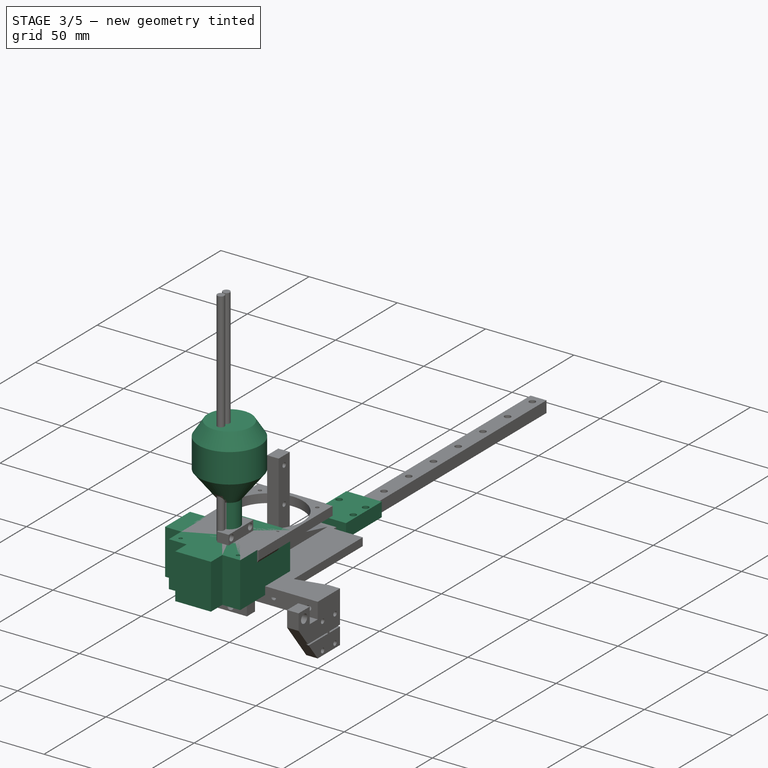
[diagram: stage 3 of 5 — iso view after this stage's code; geometry added in this stage tinted green]
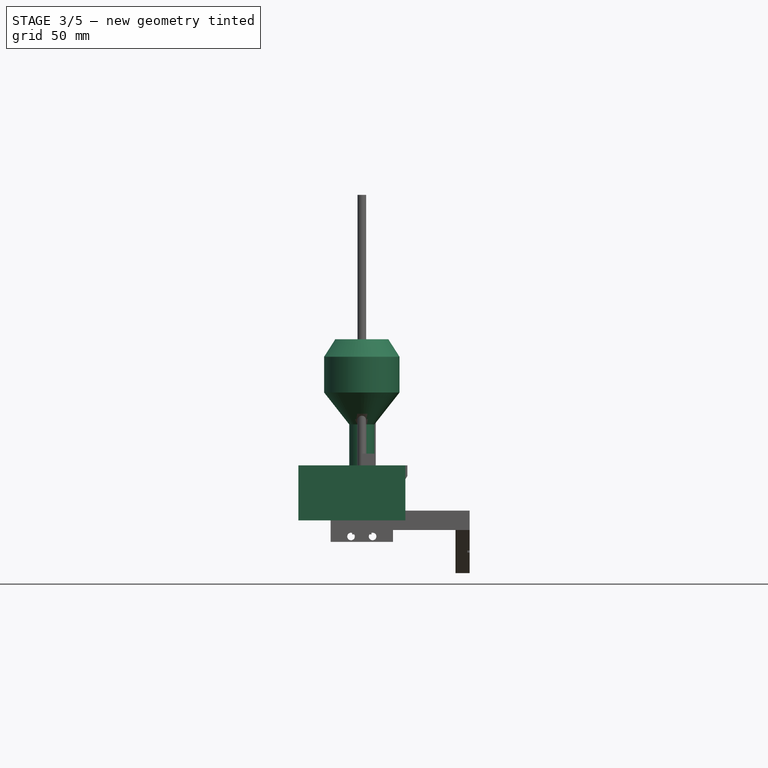
[diagram: stage 3 of 5 — front view after this stage's code; geometry added in this stage tinted green]
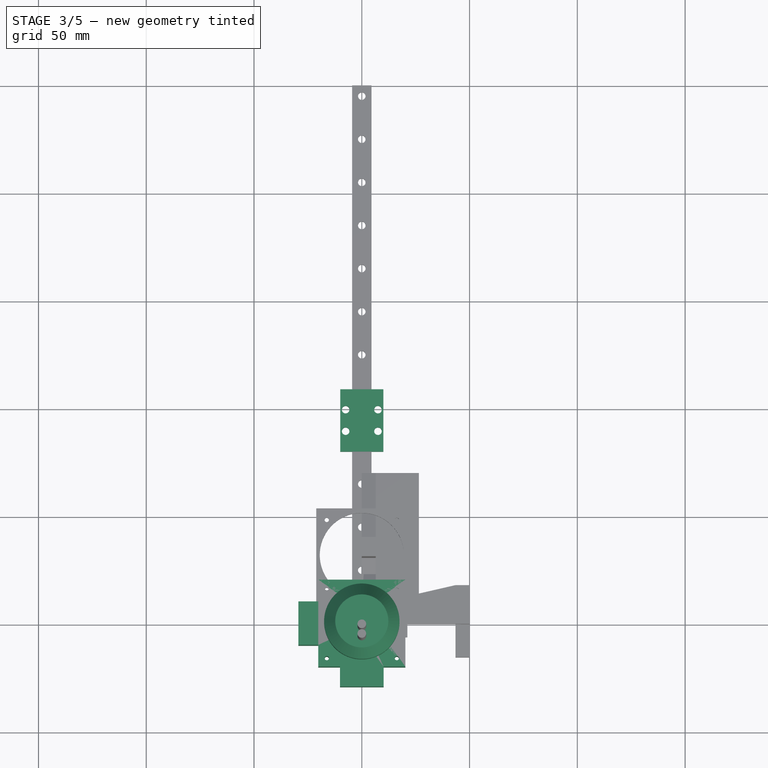
[diagram: stage 3 of 5 — top view after this stage's code; geometry added in this stage tinted green]
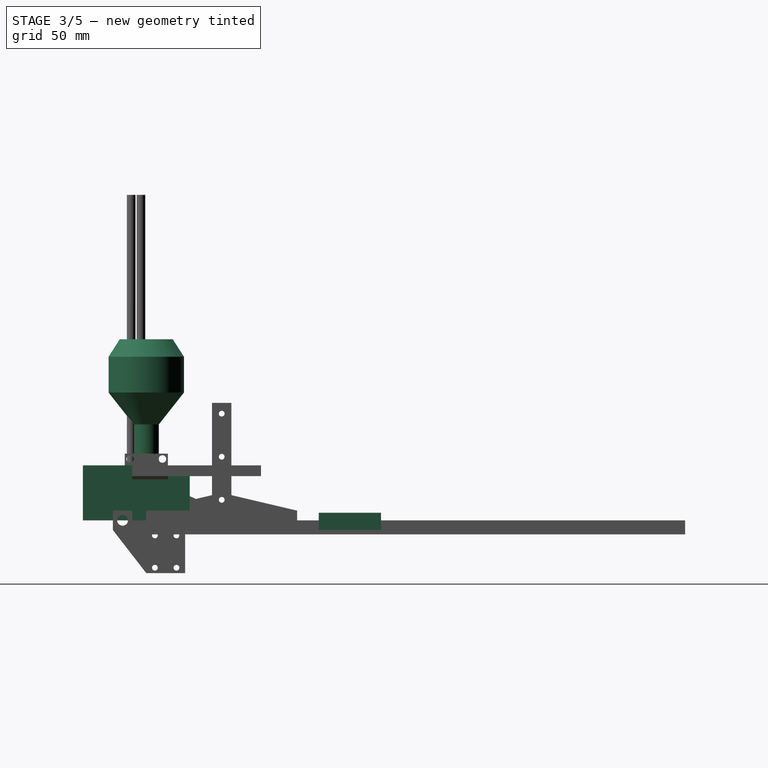
[diagram: stage 3 of 5 — right view after this stage's code; geometry added in this stage tinted green]
FEATURE [Spreadsheet::Sheet] Spreadsheet005  label="Joystick"
  cells = A2=Demo Angles; A3=X; B3(DEMO_ANGLE_X)=0; A4=Y; B4(DEMO_ANGLE_Y)=1; A5=Z; B5(DEMO_ANGLE_Z)=0; A6=Angle; B6(DEMO_ANGLE)=0; A7=Screw Distance; B7(SD)=32.5; A9=Screw; B9=M2x12; A10=Screw Body Diameter; B10(SBD)=2; A11=Base Depth; B11(BD)=40.4; A12=Base Width; B12(BW)=40.4; A13=Base Height; B13(BH)=25.5; A14=Potentiometer Extrusion; B14(PE)==49.6 - 40.4; A17=Joystick Handle Height; B17(JHH)=39.5; A18=Joystick Diameter; B18(JD)=35; A21=Base to Joystick Top; B21(B2JT)=84
FEATURE [Sketcher::SketchObject] Sketch003
  AttachmentOffset = pos=(0,0,0) rot=(0,0,1;1.5708rad)
  FullyConstrained = true
  MapMode = 5
  Placement = pos=(0,0,0) rot=(0,0,1;1.5708rad)
  Support = -> [XY_Plane001]
  expr: Constraints[10] = <<Joystick>>.BW
  expr: Constraints[27] = <<Joystick>>.BD * 0.5
  expr: Constraints[9] = <<Joystick>>.BD
  expr: Constraints[55] = <<Joystick>>.SBD / 2
  expr: Constraints[26] = <<Joystick>>.PE
  expr: Constraints[25] = <<Joystick>>.BW * 0.5
  expr: Constraints[28] = <<Joystick>>.PE
  expr: Constraints[51] = <<Joystick>>.SD
  expr: Constraints[50] = <<Joystick>>.SD
  expr: Constraints[53] = <<Joystick>>.SBD / 2
  expr: Constraints[54] = <<Joystick>>.SBD / 2
  expr: Constraints[56] = <<Joystick>>.SBD / 2
  sketch-geometry (23):
    g0: LineSegment StartX=-20.2 StartY=20.2 StartZ=0 EndX=20.2 EndY=20.2 EndZ=0
    g1: LineSegment StartX=20.2 StartY=20.2 StartZ=0 EndX=20.2 EndY=-20.2 EndZ=0
    g2: LineSegment StartX=20.2 StartY=-20.2 StartZ=0 EndX=-20.2 EndY=-20.2 EndZ=0
    g3: LineSegment StartX=-20.2 StartY=-20.2 StartZ=0 EndX=-20.2 EndY=20.2 EndZ=0
    g4: LineSegment StartX=-10.1 StartY=29.4 StartZ=0 EndX=10.1 EndY=29.4 EndZ=0
    g5: LineSegment StartX=10.1 StartY=29.4 StartZ=0 EndX=10.1 EndY=20.2 EndZ=0
    g6: LineSegment StartX=-10.1 StartY=20.2 StartZ=0 EndX=-10.1 EndY=29.4 EndZ=0
    g7: LineSegment StartX=-29.4 StartY=10.1 StartZ=0 EndX=-20.2 EndY=10.1 EndZ=0
    g8: LineSegment StartX=-20.2 StartY=-10.1 StartZ=0 EndX=-29.4 EndY=-10.1 EndZ=0
    g9: LineSegment StartX=-29.4 StartY=-10.1 StartZ=0 EndX=-29.4 EndY=10.1 EndZ=0
    g10: GeomPoint X=-20.2 Y=-2e-16 Z=0
    g11: LineSegment StartX=-20.2 StartY=20.2 StartZ=0 EndX=-20.2 EndY=10.1 EndZ=0
    g12: LineSegment StartX=-20.2 StartY=20.2 StartZ=0 EndX=-10.1 EndY=20.2 EndZ=0
    g13: LineSegment StartX=-20.2 StartY=-20.2 StartZ=0 EndX=-20.2 EndY=-10.1 EndZ=0
    g14: LineSegment StartX=10.1 StartY=20.2 StartZ=0 EndX=20.2 EndY=20.2 EndZ=0
    g15: Circle CenterX=-16.25 CenterY=16.25 CenterZ=0 NormalX=0 NormalY=0 NormalZ=1 AngleXU=0 Radius=1
    g16: Circle CenterX=16.25 CenterY=16.25 CenterZ=0 NormalX=0 NormalY=0 NormalZ=1 AngleXU=0 Radius=1
    g17: Circle CenterX=16.25 CenterY=-16.25 CenterZ=0 NormalX=0 NormalY=0 NormalZ=1 AngleXU=0 Radius=1
    g18: Circle CenterX=-16.25 CenterY=-16.25 CenterZ=0 NormalX=0 NormalY=0 NormalZ=1 AngleXU=0 Radius=1
    g19: LineSegment StartX=-16.25 StartY=16.25 StartZ=0 EndX=16.25 EndY=16.25 EndZ=0
    g20: LineSegment StartX=16.25 StartY=16.25 StartZ=0 EndX=16.25 EndY=-16.25 EndZ=0
    g21: LineSegment StartX=16.25 StartY=-16.25 StartZ=0 EndX=-16.25 EndY=-16.25 EndZ=0
    g22: LineSegment StartX=-16.25 StartY=-16.25 StartZ=0 EndX=-16.25 EndY=16.25 EndZ=0
  constraints (57):
    c: Coincident(g0,g1)
    c: Coincident(g1,g2)
    c: Coincident(g2,g3)
    c: Coincident(g3,g0)
    c: Horizontal(g0)
    c: Horizontal(g2)
    c: Vertical(g1)
    c: Vertical(g3)
    c: Symmetric(g2,g0,g-1)
    c: DistanceY(g1,g1) = 40.4
    c: DistanceX(g0,g0) = 40.4
    c: Coincident(g4,g5)
    c: Coincident(g6,g4)
    c: Horizontal(g4)
    c: Vertical(g5)
    c: Vertical(g6)
    c: PointOnObject(g5,g0)
    c: Coincident(g8,g9)
    c: Coincident(g9,g7)
    c: Horizontal(g7)
    c: Horizontal(g8)
    c: Vertical(g9)
    c: Symmetric(g0,g2,g10)
    c: Symmetric(g7,g8,g10)
    c: Symmetric(g6,g5,g-2)
    c: DistanceX(g4,g4) = 20.2
    c: DistanceY(g5,g5) = 9.2
    c: DistanceY(g9,g9) = 20.2
    c: DistanceX(g7,g7) = 9.2
    c: Coincident(g11,g0)
    c: Coincident(g11,g7)
    c: Coincident(g12,g11)
    c: Coincident(g13,g2)
    c: Coincident(g13,g8)
    c: Vertical(g13)
    c: Coincident(g12,g6)
    c: Coincident(g14,g5)
    c: Coincident(g14,g1)
    c: Coincident(g19,g20)
    c: Coincident(g20,g21)
    c: Coincident(g21,g22)
    c: Coincident(g22,g19)
    c: Horizontal(g19)
    c: Horizontal(g21)
    c: Vertical(g20)
    c: Vertical(g22)
    c: Coincident(g19,g15)
    c: Coincident(g20,g17)
    c: Coincident(g16,g19)
    c: Coincident(g18,g21)
    c: DistanceY(g22,g22) = 32.5
    c: DistanceX(g19,g19) = 32.5
    c: Symmetric(g16,g18,g-1)
    c: Radius(g18) = 1
    c: Radius(g15) = 1
    c: Radius(g16) = 1
    c: Radius(g17) = 1
FEATURE [PartDesign::Pad] Pad001
  Direction = (1,1,1)
  Length = 25.5
  Length2 = 100
  Profile = -> Sketch003
  Type = 0
  expr: Length = <<Joystick>>.BH
FEATURE [Sketcher::SketchObject] Sketch004
  FullyConstrained = true
  MapMode = 5
  Placement = pos=(0,0,0) rot=(1,0,0;1.5708rad)
  Support = -> [XZ_Plane001]
  expr: Constraints[10] = <<Joystick>>.B2JT
  expr: Constraints[11] = <<Joystick>>.JHH
  expr: Constraints[12] = <<Joystick>>.JD / 2
  expr: .AttachmentOffset.Rotation.Axis.z = <<Joystick>>.DEMO_ANGLE_Z
  expr: Constraints[13] = <<Joystick>>.BH / 2
  expr: Constraints[15] = <<Joystick>>.JD / 6
  expr: .AttachmentOffset.Rotation.Angle = <<Joystick>>.DEMO_ANGLE
  expr: .AttachmentOffset.Rotation.Axis.x = <<Joystick>>.DEMO_ANGLE_X
  sketch-geometry (7):
    g0: LineSegment StartX=0 StartY=84 StartZ=0 EndX=12.31 EndY=84 EndZ=0
    g1: LineSegment StartX=12.31 StartY=84 StartZ=0 EndX=17.5 EndY=75.9 EndZ=0
    g2: LineSegment StartX=17.5 StartY=75.9 StartZ=0 EndX=17.5 EndY=59.3 EndZ=0
    g3: LineSegment StartX=17.5 StartY=59.3 StartZ=0 EndX=5.83333 EndY=44.5 EndZ=0
    g4: LineSegment StartX=5.83333 StartY=44.5 StartZ=0 EndX=5.83333 EndY=12.75 EndZ=0
    g5: LineSegment StartX=5.83333 StartY=12.75 StartZ=0 EndX=0 EndY=12.75 EndZ=0
    g6: LineSegment StartX=0 StartY=84 StartZ=0 EndX=0 EndY=12.75 EndZ=0
  constraints (21):
    c: PointOnObject(g0,g-2)
    c: Coincident(g1,g0)
    c: Coincident(g2,g1)
    c: Vertical(g2)
    c: Coincident(g3,g2)
    c: Coincident(g4,g3)
    c: Coincident(g5,g4)
    c: PointOnObject(g5,g-2)
    c: Horizontal(g5)
    c: Horizontal(g0)
    c: DistanceY(g0) = 84
    c: DistanceY(g3,g0) = 39.5
    c: DistanceX(g1) = 17.5
    c: DistanceY(g5) = 12.75
    c: Vertical(g4)
    c: DistanceX(g5,g5) = 5.83333
    c: DistanceY(g1) = 75.9
    c: DistanceY(g2) = 59.3
    c: DistanceX(g0) = 12.31
    c: Coincident(g6,g0)
    c: Coincident(g6,g5)
FEATURE [PartDesign::Revolution] Revolution
  Angle = 360
  Axis = (0,-2e-16,1)
  Base = (0,0,0)
  BaseFeature = -> Pad001
  Profile = -> Sketch004
  ReferenceAxis = -> Sketch004 [V_Axis]
  Reversed = true
FEATURE [PartDesign::LinearPattern] LinearPattern003
  BaseFeature = -> Pocket002
  Direction = -> Y_Axis002
  Length = 240
  Occurrences = 13
  Originals = -> [Pocket002]
  expr: Length = <<Rail>>.RL - <<Rail>>.RFSO * 2
  expr: Occurrences = (<<Rail>>.RL - <<Rail>>.RFSO * 2) / <<Rail>>.RS2SO + 1
FEATURE [PartDesign::Pad] Pad004
  BaseFeature = -> LinearPattern003
  Direction = (1,1,1)
  Length = 8
  Length2 = 100
  Profile = -> Sketch007
  Type = 0
  expr: Length = <<Rail>>.HH
FEATURE [Sketcher::SketchObject] Sketch013
  ExternalGeometry = -> [Pocket004]
  FullyConstrained = false
  MapMode = 5
  Placement = pos=(0,-5.7e-15,25.5) rot=(0,0,1;3.14159rad)
  Support = -> [Pocket004]
  expr: Constraints[15] = <<Joystick>>.SBD / 2
  expr: Constraints[42] = <<Joystick>>.BW
  expr: Constraints[13] = <<Joystick>>.SD
  expr: Constraints[18] = <<Joystick>>.SBD / 2
  expr: Constraints[16] = <<Joystick>>.SBD / 2
  expr: Constraints[19] = (<<Joystick>>.JD + 4) / 2
  expr: Constraints[41] = <<Joystick>>.BD
  expr: Constraints[14] = <<Joystick>>.SD
  expr: Constraints[17] = <<Joystick>>.SBD / 2
  expr: Constraints[26] = <<XJC>>.TW + <<General>>.Safety
  expr: Constraints[25] = <<XJC>>.TW
  sketch-geometry (18):
    g0: Circle CenterX=0 CenterY=-31.625 CenterZ=0 NormalX=0 NormalY=0 NormalZ=1 AngleXU=0 Radius=19.5
    g1: Circle CenterX=-16.25 CenterY=-15.375 CenterZ=0 NormalX=0 NormalY=0 NormalZ=1 AngleXU=0 Radius=1
    g2: Circle CenterX=16.25 CenterY=-15.375 CenterZ=0 NormalX=0 NormalY=0 NormalZ=1 AngleXU=0 Radius=1
    g3: Circle CenterX=16.25 CenterY=-47.875 CenterZ=0 NormalX=0 NormalY=0 NormalZ=1 AngleXU=0 Radius=1
    g4: Circle CenterX=-16.25 CenterY=-47.875 CenterZ=0 NormalX=0 NormalY=0 NormalZ=1 AngleXU=0 Radius=1
    g5: LineSegment StartX=-16.25 StartY=-15.375 StartZ=0 EndX=16.25 EndY=-15.375 EndZ=0
    g6: LineSegment StartX=16.25 StartY=-15.375 StartZ=0 EndX=16.25 EndY=-47.875 EndZ=0
    g7: LineSegment StartX=16.25 StartY=-47.875 StartZ=0 EndX=-16.25 EndY=-47.875 EndZ=0
    g8: LineSegment StartX=-16.25 StartY=-47.875 StartZ=0 EndX=-16.25 EndY=-15.375 EndZ=0
    g9: LineSegment StartX=-21.125 StartY=-10 StartZ=0 EndX=21.125 EndY=-10 EndZ=0
    g10: LineSegment StartX=21.125 StartY=-10 StartZ=0 EndX=21.125 EndY=-53.25 EndZ=0
    g11: LineSegment StartX=21.125 StartY=-53.25 StartZ=0 EndX=-21.125 EndY=-53.25 EndZ=0
    g12: LineSegment StartX=-21.125 StartY=-53.25 StartZ=0 EndX=-21.125 EndY=-10 EndZ=0
    g13: LineSegment StartX=-21.125 StartY=-53.25 StartZ=0 EndX=21.125 EndY=-53.25 EndZ=0
    g14: LineSegment StartX=-20.9282 StartY=-12.85 StartZ=0 EndX=19.4718 EndY=-12.85 EndZ=0
    g15: LineSegment StartX=19.4718 StartY=-12.85 StartZ=0 EndX=19.4718 EndY=-53.25 EndZ=0
    g16: LineSegment StartX=19.4718 StartY=-53.25 StartZ=0 EndX=-20.9282 EndY=-53.25 EndZ=0
    g17: LineSegment StartX=-20.9282 StartY=-53.25 StartZ=0 EndX=-20.9282 EndY=-12.85 EndZ=0
  constraints (45):
    c: PointOnObject(g0,g-2)
    c: Coincident(g5,g6)
    c: Coincident(g6,g7)
    c: Coincident(g7,g8)
    c: Coincident(g8,g5)
    c: Horizontal(g5)
    c: Horizontal(g7)
    c: Vertical(g6)
    c: Vertical(g8)
    c: Coincident(g5,g1)
    c: Coincident(g6,g3)
    c: Coincident(g2,g5)
    c: Coincident(g4,g7)
    c: DistanceX(g5,g5) = 32.5
    c: DistanceY(g6,g6) = 32.5
    c: Radius(g2) = 1
    c: Radius(g1) = 1
    c: Radius(g4) = 1
    c: Radius(g3) = 1
    c: Radius(g0) = 19.5
    c: Coincident(g9,g10)
    c: Coincident(g10,g11)
    c: Coincident(g11,g12)
    c: Coincident(g12,g9)
    c: Symmetric(g9,g9,g-2)
    c: DistanceX(g11,g11) = 42.25
    c: DistanceY(g10,g10) = 43.25
    c: Symmetric(g1,g3,g0)
    c: PointOnObject(g13,g12)
    c: Horizontal(g13)
    c: Symmetric(g13,g9,g0)
    c: Horizontal(g11)
    c: Coincident(g14,g15)
    c: Coincident(g15,g16)
    c: Coincident(g16,g17)
    c: Coincident(g17,g14)
    c: Horizontal(g14)
    c: Horizontal(g16)
    c: Vertical(g15)
    c: Vertical(g17)
    c: PointOnObject(g15,g11)
    c: DistanceY(g15,g15) = 40.4
    c: DistanceX(g14,g14) = 40.4
    c: Coincident(g10,g13)
    c: Coincident(g9,g-3)
FEATURE [Sketcher::SketchObject] Sketch025
  AttachmentOffset = pos=(0,0,-4.5) rot=(0,0,1;0rad)
  FullyConstrained = true
  MapMode = 5
  Placement = pos=(0,0,-4.5) rot=(0,0,1;0rad)
  Support = -> [XY_Plane006]
  expr: Constraints[30] = <<Rail>>.HSW
  expr: Constraints[29] = <<Rail>>.HSL
  expr: Constraints[14] = <<Rail>>.SBD / 2
  expr: Constraints[12] = <<Rail>>.SBD / 2
  expr: Constraints[11] = <<Rail>>.SBD / 2
  expr: Constraints[10] = <<Rail>>.Axial_Offset
  expr: Constraints[8] = <<Rail>>.HW
  expr: Constraints[13] = <<Rail>>.SBD / 2
  expr: .AttachmentOffset.Base.z = -(<<Rail>>.RH - <<Rail>>.RB2HB)
  expr: Constraints[7] = <<Rail>>.HL
  sketch-geometry (13):
    g0: LineSegment StartX=-10 StartY=108.9 StartZ=0 EndX=10 EndY=108.9 EndZ=0
    g1: LineSegment StartX=10 StartY=108.9 StartZ=0 EndX=10 EndY=80 EndZ=0
    g2: LineSegment StartX=10 StartY=80 StartZ=0 EndX=-10 EndY=80 EndZ=0
    g3: LineSegment StartX=-10 StartY=80 StartZ=0 EndX=-10 EndY=108.9 EndZ=0
    g4: Circle CenterX=-7.5 CenterY=99.45 CenterZ=0 NormalX=0 NormalY=0 NormalZ=1 AngleXU=0 Radius=1.75
    g5: Circle CenterX=7.5 CenterY=99.45 CenterZ=0 NormalX=0 NormalY=0 NormalZ=1 AngleXU=0 Radius=1.75
    g6: Circle CenterX=7.5 CenterY=89.45 CenterZ=0 NormalX=0 NormalY=0 NormalZ=1 AngleXU=0 Radius=1.75
    g7: Circle CenterX=-7.5 CenterY=89.45 CenterZ=0 NormalX=0 NormalY=0 NormalZ=1 AngleXU=0 Radius=1.75
    g8: LineSegment StartX=-7.5 StartY=99.45 StartZ=0 EndX=7.5 EndY=99.45 EndZ=0
    g9: LineSegment StartX=7.5 StartY=99.45 StartZ=0 EndX=7.5 EndY=89.45 EndZ=0
    g10: LineSegment StartX=7.5 StartY=89.45 StartZ=0 EndX=-7.5 EndY=89.45 EndZ=0
    g11: LineSegment StartX=-7.5 StartY=89.45 StartZ=0 EndX=-7.5 EndY=99.45 EndZ=0
    g12: GeomPoint X=1.7e-15 Y=94.45 Z=0
  constraints (31):
    c: Coincident(g0,g1)
    c: Coincident(g1,g2)
    c: Coincident(g2,g3)
    c: Coincident(g3,g0)
    c: Horizontal(g0)
    c: Vertical(g1)
    c: Vertical(g3)
    c: DistanceY(g1,g1) = 28.9
    c: DistanceX(g0,g0) = 20
    c: Symmetric(g2,g1,g-2)
    c: DistanceY(g1) = 80
    c: Radius(g4) = 1.75
    c: Radius(g5) = 1.75
    c: Radius(g6) = 1.75
    c: Radius(g7) = 1.75
    c: Coincident(g8,g9)
    c: Coincident(g9,g10)
    c: Coincident(g10,g11)
    c: Coincident(g11,g8)
    c: Horizontal(g8)
    c: Horizontal(g10)
    c: Vertical(g9)
    c: Vertical(g11)
    c: Coincident(g8,g4)
    c: Coincident(g9,g6)
    c: Coincident(g5,g8)
    c: Coincident(g7,g10)
    c: Symmetric(g5,g7,g12)
    c: Symmetric(g0,g2,g12)
    c: DistanceY(g9,g9) = 10
    c: DistanceX(g8,g8) = 15
FEATURE [Sketcher::SketchObject] Sketch026
  FullyConstrained = true
  MapMode = 5
  Support = -> [XY_Plane006]
  expr: Constraints[9] = <<Rail>>.RL
  expr: Constraints[10] = <<Rail>>.RW
  sketch-geometry (4):
    g0: LineSegment StartX=4.5 StartY=0 StartZ=0 EndX=-4.5 EndY=0 EndZ=0
    g1: LineSegment StartX=-4.5 StartY=0 StartZ=0 EndX=-4.5 EndY=250 EndZ=0
    g2: LineSegment StartX=-4.5 StartY=250 StartZ=0 EndX=4.5 EndY=250 EndZ=0
    g3: LineSegment StartX=4.5 StartY=250 StartZ=0 EndX=4.5 EndY=0 EndZ=0
  constraints (11):
    c: Coincident(g0,g1)
    c: Coincident(g1,g2)
    c: Coincident(g2,g3)
    c: Coincident(g3,g0)
    c: Horizontal(g0)
    c: Horizontal(g2)
    c: Vertical(g1)
    c: Vertical(g3)
    c: Symmetric(g0,g0,g-1)
    c: DistanceY(g3,g3) = 250
    c: DistanceX(g0,g0) = 9
FEATURE [Sketcher::SketchObject] Sketch027
  FullyConstrained = true
  MapMode = 5
  Support = -> [XY_Plane006]
  expr: Constraints[1] = <<Rail>>.RFSO
  expr: Constraints[2] = <<Rail>>.SBD / 2
  sketch-geometry (1):
    g0: Circle CenterX=0 CenterY=5 CenterZ=0 NormalX=0 NormalY=0 NormalZ=1 AngleXU=0 Radius=1.75
  constraints (3):
    c: PointOnObject(g0,g-2)
    c: DistanceY(g0) = 5
    c: Radius(g0) = 1.75
FEATURE [Sketcher::SketchObject] Sketch028
  FullyConstrained = true
  MapMode = 5
  Support = -> [XY_Plane006]
  expr: Constraints[0] = <<Rail>>.SHD / 2
  expr: Constraints[2] = <<Rail>>.RFSO
  sketch-geometry (1):
    g0: Circle CenterX=0 CenterY=5 CenterZ=0 NormalX=0 NormalY=0 NormalZ=1 AngleXU=0 Radius=3
  constraints (3):
    c: Radius(g0) = 3
    c: PointOnObject(g0,g-2)
    c: DistanceY(g-1,g0) = 5
FEATURE [PartDesign::Pad] Pad014
  Direction = (1,1,1)
  Length = 6.5
  Length2 = 100
  Profile = -> Sketch026
  Reversed = true
  Type = 0
  expr: Length = <<Rail>>.RH
FEATURE [PartDesign::Pocket] Pocket010
  BaseFeature = -> Pad014
  Length = 6.5
  Length2 = 100
  Profile = -> Sketch027
  Type = 0
  expr: Length = <<Rail>>.RH
FEATURE [PartDesign::LinearPattern] LinearPattern005
  BaseFeature = -> Pocket010
  Direction = -> Y_Axis006
  Length = 240
  Occurrences = 13
  Originals = -> [Pocket010]
  expr: Length = <<Rail>>.RL - <<Rail>>.RFSO * 2
  expr: Occurrences = (<<Rail>>.RL - <<Rail>>.RFSO * 2) / <<Rail>>.RS2SO + 1
FEATURE [PartDesign::Pocket] Pocket011
  BaseFeature = -> LinearPattern005
  Length = 3.5
  Length2 = 100
  Profile = -> Sketch028
  Type = 0
  expr: Length = <<Rail>>.RSHI
FEATURE [PartDesign::Body] Body006  label="PR Y 1"
  Group = -> [Sketch026,Pad014,Sketch027,Pocket010,LinearPattern005,Sketch028,Pocket011,LinearPattern004,Sketch025,Pad015]
  Origin = -> Origin006
  Placement = pos=(128.5,0,-15) rot=(0,-1,0;1.5708rad)
  Tip = -> Pad015
  expr: .Placement.Base.x = 129 - 0.5
FEATURE [Sketcher::SketchObject] Sketch029
  AttachmentOffset = pos=(0,0,-4.5) rot=(0,0,1;0rad)
  FullyConstrained = true
  MapMode = 5
  Placement = pos=(0,0,-4.5) rot=(0,0,1;0rad)
  Support = -> [XY_Plane007]
  expr: Constraints[30] = <<Rail>>.HSW
  expr: Constraints[29] = <<Rail>>.HSL
  expr: Constraints[14] = <<Rail>>.SBD / 2
  expr: Constraints[12] = <<Rail>>.SBD / 2
  expr: Constraints[11] = <<Rail>>.SBD / 2
  expr: Constraints[10] = <<Rail>>.Axial_Offset
  expr: Constraints[8] = <<Rail>>.HW
  expr: Constraints[13] = <<Rail>>.SBD / 2
  expr: .AttachmentOffset.Base.z = -(<<Rail>>.RH - <<Rail>>.RB2HB)
  expr: Constraints[7] = <<Rail>>.HL
  sketch-geometry (13):
    g0: LineSegment StartX=-10 StartY=108.9 StartZ=0 EndX=10 EndY=108.9 EndZ=0
    g1: LineSegment StartX=10 StartY=108.9 StartZ=0 EndX=10 EndY=80 EndZ=0
    g2: LineSegment StartX=10 StartY=80 StartZ=0 EndX=-10 EndY=80 EndZ=0
    g3: LineSegment StartX=-10 StartY=80 StartZ=0 EndX=-10 EndY=108.9 EndZ=0
    g4: Circle CenterX=-7.5 CenterY=99.45 CenterZ=0 NormalX=0 NormalY=0 NormalZ=1 AngleXU=0 Radius=1.75
    g5: Circle CenterX=7.5 CenterY=99.45 CenterZ=0 NormalX=0 NormalY=0 NormalZ=1 AngleXU=0 Radius=1.75
    g6: Circle CenterX=7.5 CenterY=89.45 CenterZ=0 NormalX=0 NormalY=0 NormalZ=1 AngleXU=0 Radius=1.75
    g7: Circle CenterX=-7.5 CenterY=89.45 CenterZ=0 NormalX=0 NormalY=0 NormalZ=1 AngleXU=0 Radius=1.75
    g8: LineSegment StartX=-7.5 StartY=99.45 StartZ=0 EndX=7.5 EndY=99.45 EndZ=0
    g9: LineSegment StartX=7.5 StartY=99.45 StartZ=0 EndX=7.5 EndY=89.45 EndZ=0
    g10: LineSegment StartX=7.5 StartY=89.45 StartZ=0 EndX=-7.5 EndY=89.45 EndZ=0
    g11: LineSegment StartX=-7.5 StartY=89.45 StartZ=0 EndX=-7.5 EndY=99.45 EndZ=0
    g12: GeomPoint X=3.7e-15 Y=94.45 Z=0
  constraints (31):
    c: Coincident(g0,g1)
    c: Coincident(g1,g2)
    c: Coincident(g2,g3)
    c: Coincident(g3,g0)
    c: Horizontal(g0)
    c: Vertical(g1)
    c: Vertical(g3)
    c: DistanceY(g1,g1) = 28.9
    c: DistanceX(g0,g0) = 20
    c: Symmetric(g2,g1,g-2)
    c: DistanceY(g1) = 80
    c: Radius(g4) = 1.75
    c: Radius(g5) = 1.75
    c: Radius(g6) = 1.75
    c: Radius(g7) = 1.75
    c: Coincident(g8,g9)
    c: Coincident(g9,g10)
    c: Coincident(g10,g11)
    c: Coincident(g11,g8)
    c: Horizontal(g8)
    c: Horizontal(g10)
    c: Vertical(g9)
    c: Vertical(g11)
    c: Coincident(g8,g4)
    c: Coincident(g9,g6)
    c: Coincident(g5,g8)
    c: Coincident(g7,g10)
    c: Symmetric(g5,g7,g12)
    c: Symmetric(g0,g2,g12)
    c: DistanceY(g9,g9) = 10
    c: DistanceX(g8,g8) = 15
FEATURE [Sketcher::SketchObject] Sketch030
  FullyConstrained = true
  MapMode = 5
  Support = -> [XY_Plane007]
  expr: Constraints[9] = <<Rail>>.RL
  expr: Constraints[10] = <<Rail>>.RW
  sketch-geometry (4):
    g0: LineSegment StartX=4.5 StartY=0 StartZ=0 EndX=-4.5 EndY=0 EndZ=0
    g1: LineSegment StartX=-4.5 StartY=0 StartZ=0 EndX=-4.5 EndY=250 EndZ=0
    g2: LineSegment StartX=-4.5 StartY=250 StartZ=0 EndX=4.5 EndY=250 EndZ=0
    g3: LineSegment StartX=4.5 StartY=250 StartZ=0 EndX=4.5 EndY=0 EndZ=0
  constraints (11):
    c: Coincident(g0,g1)
    c: Coincident(g1,g2)
    c: Coincident(g2,g3)
    c: Coincident(g3,g0)
    c: Horizontal(g0)
    c: Horizontal(g2)
    c: Vertical(g1)
    c: Vertical(g3)
    c: Symmetric(g0,g0,g-1)
    c: DistanceY(g3,g3) = 250
    c: DistanceX(g0,g0) = 9
FEATURE [Sketcher::SketchObject] Sketch031
  FullyConstrained = true
  MapMode = 5
  Support = -> [XY_Plane007]
  expr: Constraints[1] = <<Rail>>.RFSO
  expr: Constraints[2] = <<Rail>>.SBD / 2
  sketch-geometry (1):
    g0: Circle CenterX=0 CenterY=5 CenterZ=0 NormalX=0 NormalY=0 NormalZ=1 AngleXU=0 Radius=1.75
  constraints (3):
    c: PointOnObject(g0,g-2)
    c: DistanceY(g0) = 5
    c: Radius(g0) = 1.75
FEATURE [Sketcher::SketchObject] Sketch032
  FullyConstrained = true
  MapMode = 5
  Support = -> [XY_Plane007]
  expr: Constraints[0] = <<Rail>>.SHD / 2
  expr: Constraints[2] = <<Rail>>.RFSO
  sketch-geometry (1):
    g0: Circle CenterX=0 CenterY=5 CenterZ=0 NormalX=0 NormalY=0 NormalZ=1 AngleXU=0 Radius=3
  constraints (3):
    c: Radius(g0) = 3
    c: PointOnObject(g0,g-2)
    c: DistanceY(g-1,g0) = 5
FEATURE [PartDesign::Pad] Pad016
  Direction = (1,1,1)
  Length = 6.5
  Length2 = 100
  Profile = -> Sketch030
  Reversed = true
  Type = 0
  expr: Length = <<Rail>>.RH
FEATURE [PartDesign::Pocket] Pocket012
  BaseFeature = -> Pad016
  Length = 6.5
  Length2 = 100
  Profile = -> Sketch031
  Type = 0
  expr: Length = <<Rail>>.RH
FEATURE [PartDesign::LinearPattern] LinearPattern007
  BaseFeature = -> Pocket012
  Direction = -> Y_Axis007
  Length = 240
  Occurrences = 13
  Originals = -> [Pocket012]
  expr: Length = <<Rail>>.RL - <<Rail>>.RFSO * 2
  expr: Occurrences = (<<Rail>>.RL - <<Rail>>.RFSO * 2) / <<Rail>>.RS2SO + 1
FEATURE [PartDesign::Pocket] Pocket013
  BaseFeature = -> LinearPattern007
  Length = 3.5
  Length2 = 100
  Profile = -> Sketch032
  Type = 0
  expr: Length = <<Rail>>.RSHI
FEATURE [PartDesign::LinearPattern] LinearPattern006
  BaseFeature = -> Pocket013
  Direction = -> Y_Axis007
  Length = 240
  Occurrences = 13
  Originals = -> [Pocket013]
  expr: Length = <<Rail>>.RL - <<Rail>>.RFSO * 2
  expr: Occurrences = (<<Rail>>.RL - <<Rail>>.RFSO * 2) / <<Rail>>.RS2SO + 1
FEATURE [PartDesign::Pad] Pad017
  BaseFeature = -> LinearPattern006
  Direction = (1,1,1)
  Length = 8
  Length2 = 100
  Profile = -> Sketch029
  Type = 0
  expr: Length = <<Rail>>.HH
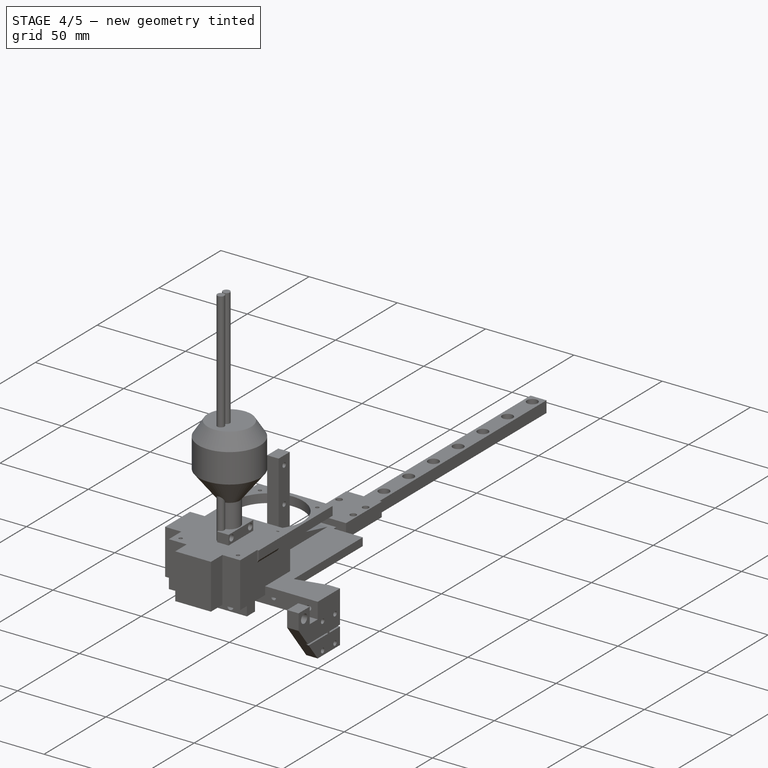
[diagram: stage 4 of 5 — iso view after this stage's code; geometry added in this stage tinted green]
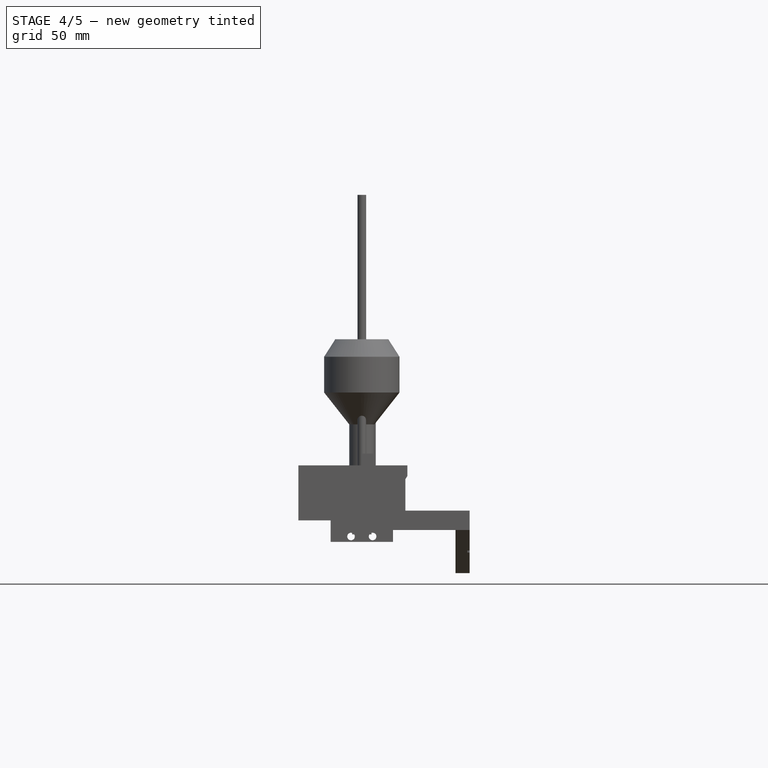
[diagram: stage 4 of 5 — front view after this stage's code; geometry added in this stage tinted green]
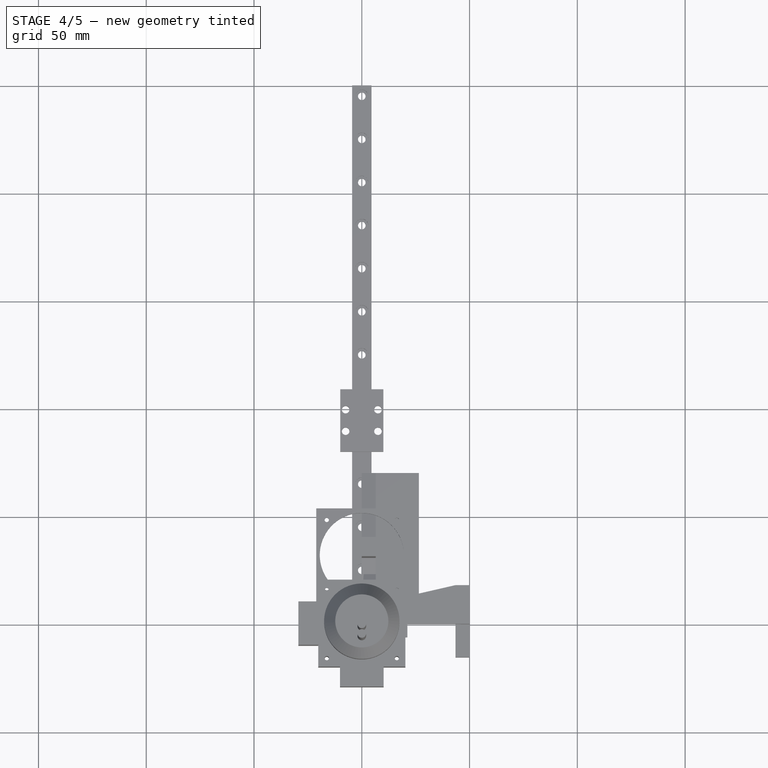
[diagram: stage 4 of 5 — top view after this stage's code; geometry added in this stage tinted green]
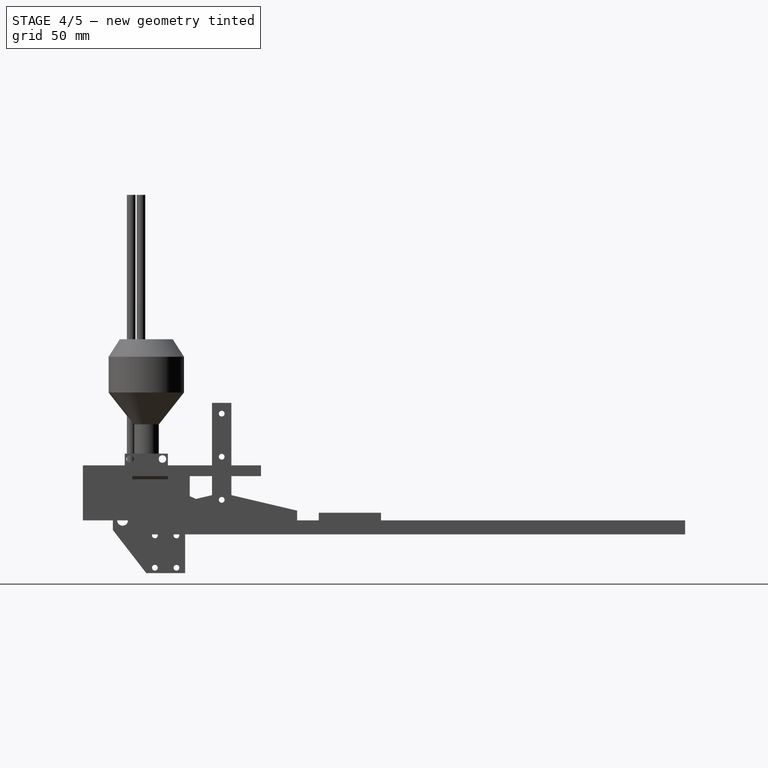
[diagram: stage 4 of 5 — right view after this stage's code; geometry added in this stage tinted green]
FEATURE [PartDesign::LinearPattern] LinearPattern004
  BaseFeature = -> Pocket011
  Direction = -> Y_Axis006
  Length = 240
  Occurrences = 13
  Originals = -> [Pocket011]
  expr: Length = <<Rail>>.RL - <<Rail>>.RFSO * 2
  expr: Occurrences = (<<Rail>>.RL - <<Rail>>.RFSO * 2) / <<Rail>>.RS2SO + 1
FEATURE [PartDesign::Pad] Pad015
  BaseFeature = -> LinearPattern004
  Direction = (1,1,1)
  Length = 8
  Length2 = 100
  Profile = -> Sketch025
  Type = 0
  expr: Length = <<Rail>>.HH
FEATURE [Sketcher::SketchObject] Sketch039
  FullyConstrained = true
  MapMode = 5
  Support = -> [XY_Plane009]
  expr: Constraints[1] = <<Rail>>.RFSO
  expr: Constraints[2] = <<Rail>>.SBD / 2
  sketch-geometry (1):
    g0: Circle CenterX=0 CenterY=5 CenterZ=0 NormalX=0 NormalY=0 NormalZ=1 AngleXU=0 Radius=1.75
  constraints (3):
    c: PointOnObject(g0,g-2)
    c: DistanceY(g0) = 5
    c: Radius(g0) = 1.75
FEATURE [Sketcher::SketchObject] Sketch040
  AttachmentOffset = pos=(0,0,-4.5) rot=(0,0,1;0rad)
  FullyConstrained = true
  MapMode = 5
  Placement = pos=(0,0,-4.5) rot=(0,0,1;0rad)
  Support = -> [XY_Plane009]
  expr: Constraints[30] = <<Rail>>.HSW
  expr: Constraints[29] = <<Rail>>.HSL
  expr: Constraints[14] = <<Rail>>.SBD / 2
  expr: Constraints[12] = <<Rail>>.SBD / 2
  expr: Constraints[11] = <<Rail>>.SBD / 2
  expr: Constraints[10] = <<Rail>>.Axial_Offset
  expr: Constraints[8] = <<Rail>>.HW
  expr: Constraints[13] = <<Rail>>.SBD / 2
  expr: .AttachmentOffset.Base.z = -(<<Rail>>.RH - <<Rail>>.RB2HB)
  expr: Constraints[7] = <<Rail>>.HL
  sketch-geometry (13):
    g0: LineSegment StartX=-10 StartY=108.9 StartZ=0 EndX=10 EndY=108.9 EndZ=0
    g1: LineSegment StartX=10 StartY=108.9 StartZ=0 EndX=10 EndY=80 EndZ=0
    g2: LineSegment StartX=10 StartY=80 StartZ=0 EndX=-10 EndY=80 EndZ=0
    g3: LineSegment StartX=-10 StartY=80 StartZ=0 EndX=-10 EndY=108.9 EndZ=0
    g4: Circle CenterX=-7.5 CenterY=99.45 CenterZ=0 NormalX=0 NormalY=0 NormalZ=1 AngleXU=0 Radius=1.75
    g5: Circle CenterX=7.5 CenterY=99.45 CenterZ=0 NormalX=0 NormalY=0 NormalZ=1 AngleXU=0 Radius=1.75
    g6: Circle CenterX=7.5 CenterY=89.45 CenterZ=0 NormalX=0 NormalY=0 NormalZ=1 AngleXU=0 Radius=1.75
    g7: Circle CenterX=-7.5 CenterY=89.45 CenterZ=0 NormalX=0 NormalY=0 NormalZ=1 AngleXU=0 Radius=1.75
    g8: LineSegment StartX=-7.5 StartY=99.45 StartZ=0 EndX=7.5 EndY=99.45 EndZ=0
    g9: LineSegment StartX=7.5 StartY=99.45 StartZ=0 EndX=7.5 EndY=89.45 EndZ=0
    g10: LineSegment StartX=7.5 StartY=89.45 StartZ=0 EndX=-7.5 EndY=89.45 EndZ=0
    g11: LineSegment StartX=-7.5 StartY=89.45 StartZ=0 EndX=-7.5 EndY=99.45 EndZ=0
    g12: GeomPoint X=-8e-16 Y=94.45 Z=0
  constraints (31):
    c: Coincident(g0,g1)
    c: Coincident(g1,g2)
    c: Coincident(g2,g3)
    c: Coincident(g3,g0)
    c: Horizontal(g0)
    c: Vertical(g1)
    c: Vertical(g3)
    c: DistanceY(g1,g1) = 28.9
    c: DistanceX(g0,g0) = 20
    c: Symmetric(g2,g1,g-2)
    c: DistanceY(g1) = 80
    c: Radius(g4) = 1.75
    c: Radius(g5) = 1.75
    c: Radius(g6) = 1.75
    c: Radius(g7) = 1.75
    c: Coincident(g8,g9)
    c: Coincident(g9,g10)
    c: Coincident(g10,g11)
    c: Coincident(g11,g8)
    c: Horizontal(g8)
    c: Horizontal(g10)
    c: Vertical(g9)
    c: Vertical(g11)
    c: Coincident(g8,g4)
    c: Coincident(g9,g6)
    c: Coincident(g5,g8)
    c: Coincident(g7,g10)
    c: Symmetric(g5,g7,g12)
    c: Symmetric(g0,g2,g12)
    c: DistanceY(g9,g9) = 10
    c: DistanceX(g8,g8) = 15
FEATURE [Sketcher::SketchObject] Sketch041
  FullyConstrained = true
  MapMode = 5
  Support = -> [XY_Plane009]
  expr: Constraints[0] = <<Rail>>.SHD / 2
  expr: Constraints[2] = <<Rail>>.RFSO
  sketch-geometry (1):
    g0: Circle CenterX=0 CenterY=5 CenterZ=0 NormalX=0 NormalY=0 NormalZ=1 AngleXU=0 Radius=3
  constraints (3):
    c: Radius(g0) = 3
    c: PointOnObject(g0,g-2)
    c: DistanceY(g-1,g0) = 5
FEATURE [Sketcher::SketchObject] Sketch042
  FullyConstrained = true
  MapMode = 5
  Support = -> [XY_Plane009]
  expr: Constraints[9] = <<Rail>>.RL
  expr: Constraints[10] = <<Rail>>.RW
  sketch-geometry (4):
    g0: LineSegment StartX=4.5 StartY=0 StartZ=0 EndX=-4.5 EndY=0 EndZ=0
    g1: LineSegment StartX=-4.5 StartY=0 StartZ=0 EndX=-4.5 EndY=250 EndZ=0
    g2: LineSegment StartX=-4.5 StartY=250 StartZ=0 EndX=4.5 EndY=250 EndZ=0
    g3: LineSegment StartX=4.5 StartY=250 StartZ=0 EndX=4.5 EndY=0 EndZ=0
  constraints (11):
    c: Coincident(g0,g1)
    c: Coincident(g1,g2)
    c: Coincident(g2,g3)
    c: Coincident(g3,g0)
    c: Horizontal(g0)
    c: Horizontal(g2)
    c: Vertical(g1)
    c: Vertical(g3)
    c: Symmetric(g0,g0,g-1)
    c: DistanceY(g3,g3) = 250
    c: DistanceX(g0,g0) = 9
FEATURE [PartDesign::Pad] Pad021
  Direction = (1,1,1)
  Length = 6.5
  Length2 = 100
  Profile = -> Sketch042
  Reversed = true
  Type = 0
  expr: Length = <<Rail>>.RH
FEATURE [PartDesign::Pocket] Pocket017
  BaseFeature = -> Pad021
  Length = 6.5
  Length2 = 100
  Profile = -> Sketch039
  Type = 0
  expr: Length = <<Rail>>.RH
FEATURE [PartDesign::LinearPattern] LinearPattern008
  BaseFeature = -> Pocket017
  Direction = -> Y_Axis009
  Length = 240
  Occurrences = 13
  Originals = -> [Pocket017]
  expr: Length = <<Rail>>.RL - <<Rail>>.RFSO * 2
  expr: Occurrences = (<<Rail>>.RL - <<Rail>>.RFSO * 2) / <<Rail>>.RS2SO + 1
FEATURE [PartDesign::Pocket] Pocket018
  BaseFeature = -> LinearPattern008
  Length = 3.5
  Length2 = 100
  Profile = -> Sketch041
  Type = 0
  expr: Length = <<Rail>>.RSHI
FEATURE [PartDesign::LinearPattern] LinearPattern009
  BaseFeature = -> Pocket018
  Direction = -> Y_Axis009
  Length = 240
  Occurrences = 13
  Originals = -> [Pocket018]
  expr: Length = <<Rail>>.RL - <<Rail>>.RFSO * 2
  expr: Occurrences = (<<Rail>>.RL - <<Rail>>.RFSO * 2) / <<Rail>>.RS2SO + 1
FEATURE [PartDesign::Body] Body009  label="PR Z 1"
  Group = -> [Sketch042,Pad021,Sketch039,Pocket017,LinearPattern008,Sketch041,Pocket018,LinearPattern009,Sketch040,Pad022]
  Origin = -> Origin009
  Placement = pos=(-145,-20,-10.95) rot=(0.57735,0.57735,0.57735;2.0944rad)
  Tip = -> Pad022
  expr: .Placement.Base.z = -17.45 + 6.5
FEATURE [Sketcher::SketchObject] Sketch043
  FullyConstrained = true
  MapMode = 5
  Support = -> [XY_Plane010]
  expr: Constraints[1] = <<Rail>>.RFSO
  expr: Constraints[2] = <<Rail>>.SBD / 2
  sketch-geometry (1):
    g0: Circle CenterX=0 CenterY=5 CenterZ=0 NormalX=0 NormalY=0 NormalZ=1 AngleXU=0 Radius=1.75
  constraints (3):
    c: PointOnObject(g0,g-2)
    c: DistanceY(g0) = 5
    c: Radius(g0) = 1.75
FEATURE [Sketcher::SketchObject] Sketch044
  AttachmentOffset = pos=(0,0,-4.5) rot=(0,0,1;0rad)
  FullyConstrained = true
  MapMode = 5
  Placement = pos=(0,0,-4.5) rot=(0,0,1;0rad)
  Support = -> [XY_Plane010]
  expr: Constraints[30] = <<Rail>>.HSW
  expr: Constraints[29] = <<Rail>>.HSL
  expr: Constraints[14] = <<Rail>>.SBD / 2
  expr: Constraints[12] = <<Rail>>.SBD / 2
  expr: Constraints[11] = <<Rail>>.SBD / 2
  expr: Constraints[10] = <<Rail>>.Axial_Offset
  expr: Constraints[8] = <<Rail>>.HW
  expr: Constraints[13] = <<Rail>>.SBD / 2
  expr: .AttachmentOffset.Base.z = -(<<Rail>>.RH - <<Rail>>.RB2HB)
  expr: Constraints[7] = <<Rail>>.HL
  sketch-geometry (13):
    g0: LineSegment StartX=-10 StartY=108.9 StartZ=0 EndX=10 EndY=108.9 EndZ=0
    g1: LineSegment StartX=10 StartY=108.9 StartZ=0 EndX=10 EndY=80 EndZ=0
    g2: LineSegment StartX=10 StartY=80 StartZ=0 EndX=-10 EndY=80 EndZ=0
    g3: LineSegment StartX=-10 StartY=80 StartZ=0 EndX=-10 EndY=108.9 EndZ=0
    g4: Circle CenterX=-7.5 CenterY=99.45 CenterZ=0 NormalX=0 NormalY=0 NormalZ=1 AngleXU=0 Radius=1.75
    g5: Circle CenterX=7.5 CenterY=99.45 CenterZ=0 NormalX=0 NormalY=0 NormalZ=1 AngleXU=0 Radius=1.75
    g6: Circle CenterX=7.5 CenterY=89.45 CenterZ=0 NormalX=0 NormalY=0 NormalZ=1 AngleXU=0 Radius=1.75
    g7: Circle CenterX=-7.5 CenterY=89.45 CenterZ=0 NormalX=0 NormalY=0 NormalZ=1 AngleXU=0 Radius=1.75
    g8: LineSegment StartX=-7.5 StartY=99.45 StartZ=0 EndX=7.5 EndY=99.45 EndZ=0
    g9: LineSegment StartX=7.5 StartY=99.45 StartZ=0 EndX=7.5 EndY=89.45 EndZ=0
    g10: LineSegment StartX=7.5 StartY=89.45 StartZ=0 EndX=-7.5 EndY=89.45 EndZ=0
    g11: LineSegment StartX=-7.5 StartY=89.45 StartZ=0 EndX=-7.5 EndY=99.45 EndZ=0
    g12: GeomPoint X=-8e-16 Y=94.45 Z=0
  constraints (31):
    c: Coincident(g0,g1)
    c: Coincident(g1,g2)
    c: Coincident(g2,g3)
    c: Coincident(g3,g0)
    c: Horizontal(g0)
    c: Vertical(g1)
    c: Vertical(g3)
    c: DistanceY(g1,g1) = 28.9
    c: DistanceX(g0,g0) = 20
    c: Symmetric(g2,g1,g-2)
    c: DistanceY(g1) = 80
    c: Radius(g4) = 1.75
    c: Radius(g5) = 1.75
    c: Radius(g6) = 1.75
    c: Radius(g7) = 1.75
    c: Coincident(g8,g9)
    c: Coincident(g9,g10)
    c: Coincident(g10,g11)
    c: Coincident(g11,g8)
    c: Horizontal(g8)
    c: Horizontal(g10)
    c: Vertical(g9)
    c: Vertical(g11)
    c: Coincident(g8,g4)
    c: Coincident(g9,g6)
    c: Coincident(g5,g8)
    c: Coincident(g7,g10)
    c: Symmetric(g5,g7,g12)
    c: Symmetric(g0,g2,g12)
    c: DistanceY(g9,g9) = 10
    c: DistanceX(g8,g8) = 15
FEATURE [Sketcher::SketchObject] Sketch045
  FullyConstrained = true
  MapMode = 5
  Support = -> [XY_Plane010]
  expr: Constraints[0] = <<Rail>>.SHD / 2
  expr: Constraints[2] = <<Rail>>.RFSO
  sketch-geometry (1):
    g0: Circle CenterX=0 CenterY=5 CenterZ=0 NormalX=0 NormalY=0 NormalZ=1 AngleXU=0 Radius=3
  constraints (3):
    c: Radius(g0) = 3
    c: PointOnObject(g0,g-2)
    c: DistanceY(g-1,g0) = 5
FEATURE [Sketcher::SketchObject] Sketch046
  FullyConstrained = true
  MapMode = 5
  Support = -> [XY_Plane010]
  expr: Constraints[9] = <<Rail>>.RL
  expr: Constraints[10] = <<Rail>>.RW
  sketch-geometry (4):
    g0: LineSegment StartX=4.5 StartY=0 StartZ=0 EndX=-4.5 EndY=0 EndZ=0
    g1: LineSegment StartX=-4.5 StartY=0 StartZ=0 EndX=-4.5 EndY=250 EndZ=0
    g2: LineSegment StartX=-4.5 StartY=250 StartZ=0 EndX=4.5 EndY=250 EndZ=0
    g3: LineSegment StartX=4.5 StartY=250 StartZ=0 EndX=4.5 EndY=0 EndZ=0
  constraints (11):
    c: Coincident(g0,g1)
    c: Coincident(g1,g2)
    c: Coincident(g2,g3)
    c: Coincident(g3,g0)
    c: Horizontal(g0)
    c: Horizontal(g2)
    c: Vertical(g1)
    c: Vertical(g3)
    c: Symmetric(g0,g0,g-1)
    c: DistanceY(g3,g3) = 250
    c: DistanceX(g0,g0) = 9
FEATURE [PartDesign::Pad] Pad023
  Direction = (1,1,1)
  Length = 6.5
  Length2 = 100
  Profile = -> Sketch046
  Reversed = true
  Type = 0
  expr: Length = <<Rail>>.RH
FEATURE [PartDesign::Pocket] Pocket019
  BaseFeature = -> Pad023
  Length = 6.5
  Length2 = 100
  Profile = -> Sketch043
  Type = 0
  expr: Length = <<Rail>>.RH
FEATURE [PartDesign::LinearPattern] LinearPattern010
  BaseFeature = -> Pocket019
  Direction = -> Y_Axis010
  Length = 240
  Occurrences = 13
  Originals = -> [Pocket019]
  expr: Length = <<Rail>>.RL - <<Rail>>.RFSO * 2
  expr: Occurrences = (<<Rail>>.RL - <<Rail>>.RFSO * 2) / <<Rail>>.RS2SO + 1
FEATURE [PartDesign::Pocket] Pocket020
  BaseFeature = -> LinearPattern010
  Length = 3.5
  Length2 = 100
  Profile = -> Sketch045
  Type = 0
  expr: Length = <<Rail>>.RSHI
FEATURE [PartDesign::LinearPattern] LinearPattern011
  BaseFeature = -> Pocket020
  Direction = -> Y_Axis010
  Length = 240
  Occurrences = 13
  Originals = -> [Pocket020]
  expr: Length = <<Rail>>.RL - <<Rail>>.RFSO * 2
  expr: Occurrences = (<<Rail>>.RL - <<Rail>>.RFSO * 2) / <<Rail>>.RS2SO + 1
FEATURE [PartDesign::Pad] Pad024
  BaseFeature = -> LinearPattern011
  Direction = (1,1,1)
  Length = 8
  Length2 = 100
  Profile = -> Sketch044
  Type = 0
  expr: Length = <<Rail>>.HH
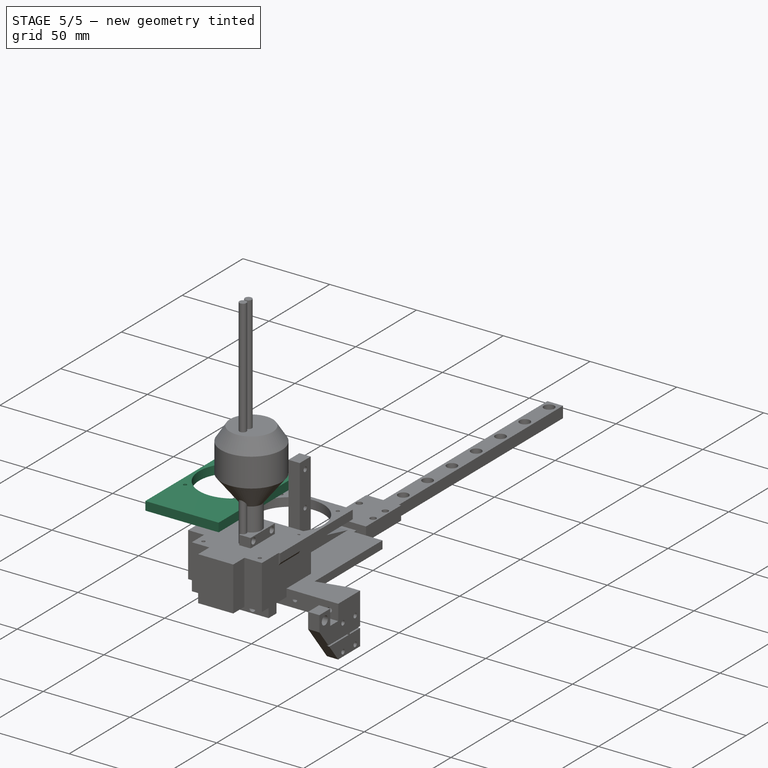
[diagram: stage 5 of 5 — iso view after this stage's code; geometry added in this stage tinted green]
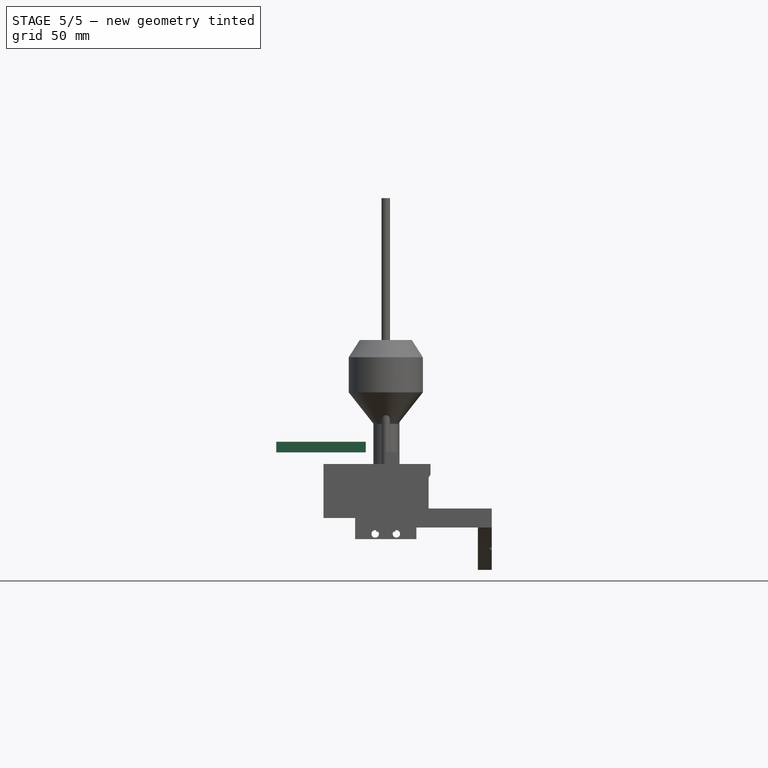
[diagram: stage 5 of 5 — front view after this stage's code; geometry added in this stage tinted green]
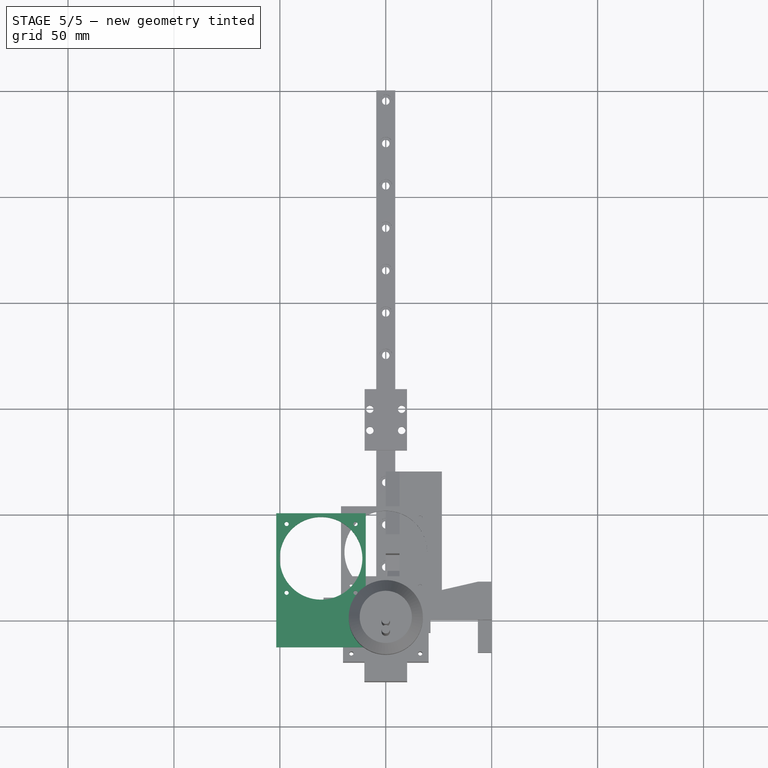
[diagram: stage 5 of 5 — top view after this stage's code; geometry added in this stage tinted green]
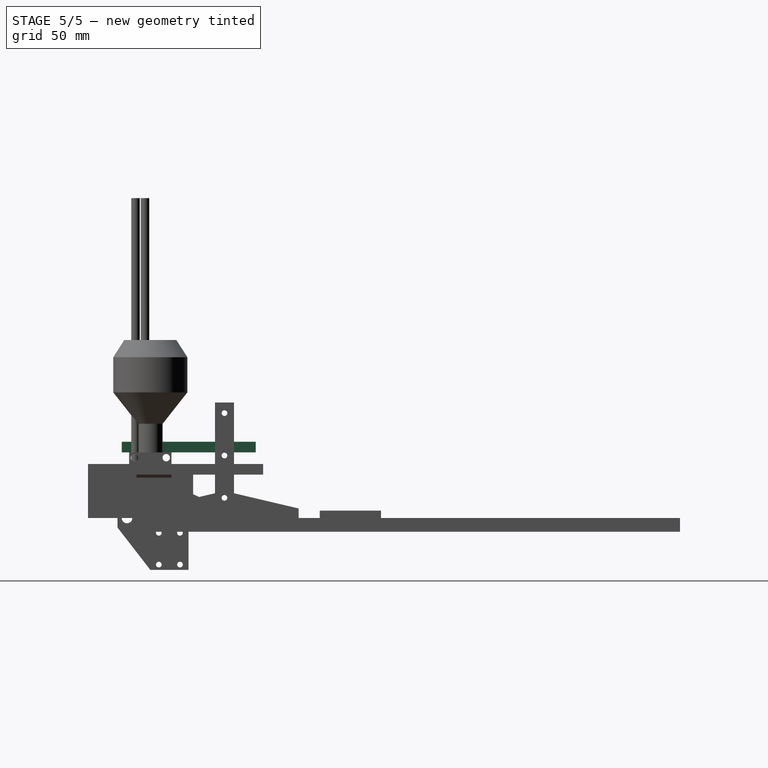
[diagram: stage 5 of 5 — right view after this stage's code; geometry added in this stage tinted green]
FEATURE [Spreadsheet::Sheet] Spreadsheet  label="Rail"
  cells = A2=Axial Offset; B2(Axial_Offset)=80; A3=Screw; B3=M 3x0.5Px8L; B4=MGN9C; A5=Screw Length; B5(SL)=8; A6=Rail Length RL (Axial); B6(RL)=250; A7=Rail Width RW; B7(RW)=9; A8=Rail Height RH; B8(RH)=6.5; A9=Rail First Screw Offset; B9(RFSO)=5; A10=Rail Screw To Screw Offset; B10(RS2SO)=20; A11=Rail Screw Head Inlet ; B11(RSHI)=3.5; A14=Head Height HH; B14(HH)==10 - 2; A15=Head Length HL (Axial); B15(HL)=28.9; A16=Head Width HW; B16(HW)=20; A17=Head Screw Width Spacing; B17(HSW)=15; A18=Head Screw Length Spacing; B18(HSL)=10; A19=Rail Base To Head Base; B19(RB2HB)=2; A20=Head Screw Depth; B20(HSD)=2.5; A22=Screw Head Diameter; B22(SHD)=6; A23=Screw Body Diameter; B23(SBD)=3.5; A25=Remaining Screw Length Head; B25(RSLH)==SL - 2.5 + 1; A26=Remaining Screw Length Rail; B26(RSLR)==SL - RSHI + 1
FEATURE [Spreadsheet::Sheet] Spreadsheet001  label="Sensor"
FEATURE [Spreadsheet::Sheet] Spreadsheet002  label="X"
  cells = A5=Rail Inlet Depth; B5(RID)=0; A6=Rail Center Offset; B6(RCO)==<<Rail>>.RW / 2; A7=Strength; B7(STR)==<<Rail>>.HSL + <<Rail>>.SL; A8=Strength Vertical; B8(VSTR)==<<Rail>>.RW; A10=Length; B10(LEN)==<<Rail>>.RS2SO * 4 + <<Rail>>.RFSO * 2; A11=Height; A12=Width
FEATURE [Spreadsheet::Sheet] Spreadsheet003  label="Y"
  cells = A5=Carrier Width; B5(CWIDTH)==<<X>>.LEN + 2 * <<General>>.Safety; A6=Carrier Arm Width; B6(CAW)=20; A9=Rail Center Offset; B9(RCO)==<<Rail>>.RW / 2; A10=Rail Inlet Depth; B10(RID)=1
FEATURE [Spreadsheet::Sheet] Spreadsheet004  label="Z"
FEATURE [Sketcher::SketchObject] Sketch
  FullyConstrained = true
  MapMode = 5
  Support = -> [XY_Plane]
  expr: Constraints[10] = <<Rail>>.RW
  expr: Constraints[9] = <<Rail>>.RL
  sketch-geometry (4):
    g0: LineSegment StartX=4.5 StartY=0 StartZ=0 EndX=-4.5 EndY=0 EndZ=0
    g1: LineSegment StartX=-4.5 StartY=0 StartZ=0 EndX=-4.5 EndY=250 EndZ=0
    g2: LineSegment StartX=-4.5 StartY=250 StartZ=0 EndX=4.5 EndY=250 EndZ=0
    g3: LineSegment StartX=4.5 StartY=250 StartZ=0 EndX=4.5 EndY=0 EndZ=0
  constraints (11):
    c: Coincident(g0,g1)
    c: Coincident(g1,g2)
    c: Coincident(g2,g3)
    c: Coincident(g3,g0)
    c: Horizontal(g0)
    c: Horizontal(g2)
    c: Vertical(g1)
    c: Vertical(g3)
    c: Symmetric(g0,g0,g-1)
    c: DistanceY(g3,g3) = 250
    c: DistanceX(g0,g0) = 9
FEATURE [PartDesign::Pad] Pad
  Direction = (1,1,1)
  Length = 6.5
  Length2 = 100
  Profile = -> Sketch
  Reversed = true
  Type = 0
  expr: Length = <<Rail>>.RH
FEATURE [Sketcher::SketchObject] Sketch001
  FullyConstrained = true
  MapMode = 5
  Support = -> [XY_Plane]
  expr: Constraints[2] = <<Rail>>.SBD / 2
  expr: Constraints[1] = <<Rail>>.RFSO
  sketch-geometry (1):
    g0: Circle CenterX=0 CenterY=5 CenterZ=0 NormalX=0 NormalY=0 NormalZ=1 AngleXU=0 Radius=1.75
  constraints (3):
    c: PointOnObject(g0,g-2)
    c: DistanceY(g0) = 5
    c: Radius(g0) = 1.75
FEATURE [PartDesign::Pocket] Pocket
  BaseFeature = -> Pad
  Length = 6.5
  Length2 = 100
  Profile = -> Sketch001
  Type = 0
  expr: Length = <<Rail>>.RH
FEATURE [PartDesign::LinearPattern] LinearPattern
  BaseFeature = -> Pocket
  Direction = -> Y_Axis
  Length = 240
  Occurrences = 13
  Originals = -> [Pocket]
  expr: Occurrences = (<<Rail>>.RL - <<Rail>>.RFSO * 2) / <<Rail>>.RS2SO + 1
  expr: Length = <<Rail>>.RL - <<Rail>>.RFSO * 2
FEATURE [Sketcher::SketchObject] Sketch002
  FullyConstrained = true
  MapMode = 5
  Support = -> [XY_Plane]
  expr: Constraints[2] = <<Rail>>.RFSO
  expr: Constraints[0] = <<Rail>>.SHD / 2
  sketch-geometry (1):
    g0: Circle CenterX=0 CenterY=5 CenterZ=0 NormalX=0 NormalY=0 NormalZ=1 AngleXU=0 Radius=3
  constraints (3):
    c: Radius(g0) = 3
    c: PointOnObject(g0,g-2)
    c: DistanceY(g-1,g0) = 5
FEATURE [PartDesign::Pocket] Pocket001
  BaseFeature = -> LinearPattern
  Length = 3.5
  Length2 = 100
  Profile = -> Sketch002
  Type = 0
  expr: Length = <<Rail>>.RSHI
FEATURE [PartDesign::LinearPattern] LinearPattern001
  BaseFeature = -> Pocket001
  Direction = -> Y_Axis
  Length = 240
  Occurrences = 13
  Originals = -> [Pocket001]
  expr: Occurrences = (<<Rail>>.RL - <<Rail>>.RFSO * 2) / <<Rail>>.RS2SO + 1
  expr: Length = <<Rail>>.RL - <<Rail>>.RFSO * 2
FEATURE [PartDesign::Body] Body001  label="Joystick Place Holder"
  Group = -> [Sketch003,Pad001,Sketch004,Revolution]
  Origin = -> Origin001
  Placement = pos=(-30.55,26.7,-5) rot=(0,0,-1;1.5708rad)
  Tip = -> Revolution
  expr: .Placement.Base.x = -<<Rail>>.RL / 2 + <<Rail>>.Axial_Offset + 13.75 + 1.4 / 2
  expr: .Placement.Base.y = 8 + <<XJC>>.DS + <<Rail>>.HH + <<General>>.Safety - 0.3
FEATURE [Sketcher::SketchObject] Sketch005
  AttachmentOffset = pos=(0,0,-4.5) rot=(0,0,1;0rad)
  FullyConstrained = true
  MapMode = 5
  Placement = pos=(0,0,-4.5) rot=(0,0,1;0rad)
  Support = -> [XY_Plane]
  expr: Constraints[7] = <<Rail>>.HL
  expr: .AttachmentOffset.Base.z = -(<<Rail>>.RH - <<Rail>>.RB2HB)
  expr: Constraints[13] = <<Rail>>.SBD / 2
  expr: Constraints[8] = <<Rail>>.HW
  expr: Constraints[10] = <<Rail>>.Axial_Offset
  expr: Constraints[11] = <<Rail>>.SBD / 2
  expr: Constraints[12] = <<Rail>>.SBD / 2
  expr: Constraints[14] = <<Rail>>.SBD / 2
  expr: Constraints[29] = <<Rail>>.HSL
  expr: Constraints[30] = <<Rail>>.HSW
  sketch-geometry (13):
    g0: LineSegment StartX=-10 StartY=108.9 StartZ=0 EndX=10 EndY=108.9 EndZ=0
    g1: LineSegment StartX=10 StartY=108.9 StartZ=0 EndX=10 EndY=80 EndZ=0
    g2: LineSegment StartX=10 StartY=80 StartZ=0 EndX=-10 EndY=80 EndZ=0
    g3: LineSegment StartX=-10 StartY=80 StartZ=0 EndX=-10 EndY=108.9 EndZ=0
    g4: Circle CenterX=-7.5 CenterY=99.45 CenterZ=0 NormalX=0 NormalY=0 NormalZ=1 AngleXU=0 Radius=1.75
    g5: Circle CenterX=7.5 CenterY=99.45 CenterZ=0 NormalX=0 NormalY=0 NormalZ=1 AngleXU=0 Radius=1.75
    g6: Circle CenterX=7.5 CenterY=89.45 CenterZ=0 NormalX=0 NormalY=0 NormalZ=1 AngleXU=0 Radius=1.75
    g7: Circle CenterX=-7.5 CenterY=89.45 CenterZ=0 NormalX=0 NormalY=0 NormalZ=1 AngleXU=0 Radius=1.75
    g8: LineSegment StartX=-7.5 StartY=99.45 StartZ=0 EndX=7.5 EndY=99.45 EndZ=0
    g9: LineSegment StartX=7.5 StartY=99.45 StartZ=0 EndX=7.5 EndY=89.45 EndZ=0
    g10: LineSegment StartX=7.5 StartY=89.45 StartZ=0 EndX=-7.5 EndY=89.45 EndZ=0
    g11: LineSegment StartX=-7.5 StartY=89.45 StartZ=0 EndX=-7.5 EndY=99.45 EndZ=0
    g12: GeomPoint X=-8e-16 Y=94.45 Z=0
  constraints (31):
    c: Coincident(g0,g1)
    c: Coincident(g1,g2)
    c: Coincident(g2,g3)
    c: Coincident(g3,g0)
    c: Horizontal(g0)
    c: Vertical(g1)
    c: Vertical(g3)
    c: DistanceY(g1,g1) = 28.9
    c: DistanceX(g0,g0) = 20
    c: Symmetric(g2,g1,g-2)
    c: DistanceY(g1) = 80
    c: Radius(g4) = 1.75
    c: Radius(g5) = 1.75
    c: Radius(g6) = 1.75
    c: Radius(g7) = 1.75
    c: Coincident(g8,g9)
    c: Coincident(g9,g10)
    c: Coincident(g10,g11)
    c: Coincident(g11,g8)
    c: Horizontal(g8)
    c: Horizontal(g10)
    c: Vertical(g9)
    c: Vertical(g11)
    c: Coincident(g8,g4)
    c: Coincident(g9,g6)
    c: Coincident(g5,g8)
    c: Coincident(g7,g10)
    c: Symmetric(g5,g7,g12)
    c: Symmetric(g0,g2,g12)
    c: DistanceY(g9,g9) = 10
    c: DistanceX(g8,g8) = 15
FEATURE [PartDesign::Pad] Pad002
  BaseFeature = -> LinearPattern001
  Direction = (1,1,1)
  Length = 8
  Length2 = 100
  Profile = -> Sketch005
  Type = 0
  expr: Length = <<Rail>>.HH
FEATURE [PartDesign::Body] Body002  label="PR X"
  Group = -> [Sketch006,Pad003,Sketch008,Pocket003,LinearPattern002,Sketch009,Pocket002,LinearPattern003,Sketch007,Pad004]
  Origin = -> Origin002
  Placement = pos=(-125,0,0) rot=(0.57735,0.57735,-0.57735;2.0944rad)
  Tip = -> Pad004
  expr: .Placement.Base.x = -<<Rail>>.RL / 2
FEATURE [Part::Box] Box  label="Cube"
  AttacherType = Attacher::AttachEngine3D
  Height = 100
  Length = 100
  Placement = pos=(-68,-23.4,-69) rot=(0,0,1;0rad)
  Width = 30
FEATURE [PartDesign::Body] Body007  label="PR Y 2"
  Group = -> [Sketch030,Pad016,Sketch031,Pocket012,LinearPattern007,Sketch032,Pocket013,LinearPattern006,Sketch029,Pad017]
  Origin = -> Origin007
  Placement = pos=(-128.5,0,-15) rot=(0,1,0;1.5708rad)
  Tip = -> Pad017
FEATURE [Sketcher::SketchObject] Sketch033
  FullyConstrained = true
  MapMode = 5
  Placement = pos=(0,0,0) rot=(1,0,0;1.5708rad)
  Support = -> [XZ_Plane008]
  expr: Constraints[8] = <<Rail>>.HL
  expr: Constraints[56] = <<General>>.HM
  expr: Constraints[9] = <<Rail>>.HW
  expr: Constraints[27] = <<Rail>>.SBD / 2
  expr: Constraints[23] = <<Rail>>.HSL
  expr: Constraints[24] = <<Rail>>.HSW
  expr: Constraints[26] = <<Rail>>.SBD / 2
  expr: Constraints[29] = <<Rail>>.SBD / 2
  expr: Constraints[28] = <<Rail>>.SBD / 2
  expr: Constraints[31] = <<X>>.VSTR / 2 + <<General>>.Safety
  expr: Constraints[39] = <<XJC>>.TW
  expr: Constraints[45] = <<Joystick>>.BH + <<XJC>>.TS
  expr: Constraints[46] = <<XJC>>.TS
  sketch-geometry (23):
    g0: LineSegment StartX=-14.45 StartY=10 StartZ=0 EndX=14.45 EndY=10 EndZ=0
    g1: LineSegment StartX=14.45 StartY=10 StartZ=0 EndX=14.45 EndY=-10 EndZ=0
    g2: LineSegment StartX=14.45 StartY=-10 StartZ=0 EndX=-14.45 EndY=-10 EndZ=0
    g3: LineSegment StartX=-14.45 StartY=-10 StartZ=0 EndX=-14.45 EndY=10 EndZ=0
    g4: Circle CenterX=-5 CenterY=7.5 CenterZ=0 NormalX=0 NormalY=0 NormalZ=1 AngleXU=0 Radius=1.75
    g5: Circle CenterX=5 CenterY=7.5 CenterZ=0 NormalX=0 NormalY=0 NormalZ=1 AngleXU=0 Radius=1.75
    g6: Circle CenterX=-5 CenterY=-7.5 CenterZ=0 NormalX=0 NormalY=0 NormalZ=1 AngleXU=0 Radius=1.75
    g7: Circle CenterX=5 CenterY=-7.5 CenterZ=0 NormalX=0 NormalY=0 NormalZ=1 AngleXU=0 Radius=1.75
    g8: LineSegment StartX=-5 StartY=7.5 StartZ=0 EndX=5 EndY=7.5 EndZ=0
    g9: LineSegment StartX=5 StartY=7.5 StartZ=0 EndX=5 EndY=-7.5 EndZ=0
    g10: LineSegment StartX=5 StartY=-7.5 StartZ=0 EndX=-5 EndY=-7.5 EndZ=0
    g11: LineSegment StartX=-5 StartY=-7.5 StartZ=0 EndX=-5 EndY=7.5 EndZ=0
    g12: GeomPoint X=0 Y=5.5 Z=0
    g13: LineSegment StartX=-21.125 StartY=36 StartZ=0 EndX=21.125 EndY=36 EndZ=0
    g14: LineSegment StartX=21.125 StartY=36 StartZ=0 EndX=21.125 EndY=31 EndZ=0
    g15: LineSegment StartX=21.125 StartY=31 StartZ=0 EndX=-21.125 EndY=31 EndZ=0
    g16: LineSegment StartX=-21.125 StartY=31 StartZ=0 EndX=-21.125 EndY=36 EndZ=0
    g17: LineSegment StartX=21.125 StartY=31 StartZ=0 EndX=14.45 EndY=10 EndZ=0
    g18: LineSegment StartX=-21.125 StartY=31 StartZ=0 EndX=-14.45 EndY=10 EndZ=0
    g19: LineSegment StartX=-14.45 StartY=-10 StartZ=0 EndX=14.45 EndY=-10 EndZ=0
    g20: LineSegment StartX=14.45 StartY=-10 StartZ=0 EndX=14.45 EndY=-19 EndZ=0
    g21: LineSegment StartX=14.45 StartY=-19 StartZ=0 EndX=-14.45 EndY=-19 EndZ=0
    g22: LineSegment StartX=-14.45 StartY=-19 StartZ=0 EndX=-14.45 EndY=-10 EndZ=0
  constraints (57):
    c: Coincident(g0,g1)
    c: Coincident(g1,g2)
    c: Coincident(g2,g3)
    c: Coincident(g3,g0)
    c: Horizontal(g0)
    c: Horizontal(g2)
    c: Vertical(g1)
    c: Vertical(g3)
    c: DistanceX(g0,g0) = 28.9
    c: DistanceY(g3,g3) = 20
    c: Symmetric(g2,g1,g-1)
    c: Coincident(g8,g9)
    c: Coincident(g9,g10)
    c: Coincident(g10,g11)
    c: Coincident(g11,g8)
    c: Horizontal(g8)
    c: Horizontal(g10)
    c: Vertical(g9)
    c: Vertical(g11)
    c: Coincident(g8,g4)
    c: Coincident(g9,g7)
    c: Coincident(g6,g10)
    c: Coincident(g5,g8)
    c: DistanceX(g8,g8) = 10
    c: DistanceY(g9,g9) = 15
    c: Symmetric(g5,g6,g-1)
    c: Radius(g5) = 1.75
    c: Radius(g4) = 1.75
    c: Radius(g7) = 1.75
    c: Radius(g6) = 1.75
    c: PointOnObject(g12,g-2)
    c: DistanceY(g12) = 5.5
    c: Coincident(g13,g14)
    c: Coincident(g14,g15)
    c: Coincident(g15,g16)
    c: Coincident(g16,g13)
    c: Horizontal(g15)
    c: Vertical(g14)
    c: Vertical(g16)
    c: DistanceX(g13,g13) = 42.25
    c: Symmetric(g13,g13,g-2)
    c: Coincident(g17,g14)
    c: Coincident(g17,g1)
    c: Coincident(g18,g16)
    c: Coincident(g18,g3)
    c: DistanceY(g12,g13) = 30.5
    c: DistanceY(g14,g14) = 5
    c: Coincident(g19,g20)
    c: Coincident(g20,g21)
    c: Coincident(g21,g22)
    c: Coincident(g22,g19)
    c: Horizontal(g21)
    c: Vertical(g20)
    c: Vertical(g22)
    c: Coincident(g19,g3)
    c: Coincident(g1,g19)
    c: DistanceY(g22,g22) = 9
FEATURE [PartDesign::Pad] Pad018
  Direction = (1,1,1)
  Length = 10
  Length2 = 100
  Placement = pos=(0,0,0) rot=(1,0,0;1.5708rad)
  Profile = -> Sketch033
  Type = 0
  expr: Length = <<XJC>>.DS
FEATURE [Sketcher::SketchObject] Sketch034
  FullyConstrained = true
  MapMode = 5
  Placement = pos=(0,0,0) rot=(0.57735,0.57735,0.57735;2.0944rad)
  Support = -> [YZ_Plane008]
  expr: Constraints[0] = <<General>>.D4S / 2
  expr: Constraints[2] = <<Rail>>.RB2HB + <<Rail>>.HH
  expr: Constraints[7] = <<Rail>>.HW / 2
  expr: Constraints[8] = <<General>>.HM / 2
  sketch-geometry (4):
    g0: Circle CenterX=5 CenterY=-14.5 CenterZ=0 NormalX=0 NormalY=0 NormalZ=1 AngleXU=0 Radius=3
    g1: GeomPoint X=10 Y=0 Z=0
    g2: LineSegment StartX=5 StartY=0 StartZ=0 EndX=5 EndY=-14.5 EndZ=0
    g3: GeomPoint X=5 Y=-10 Z=0
  constraints (9):
    c: Radius(g0) = 3
    c: PointOnObject(g1,g-1)
    c: DistanceX(g1) = 10
    c: Coincident(g2,g0)
    c: Vertical(g2)
    c: Symmetric(g-1,g1,g2)
    c: PointOnObject(g3,g2)
    c: DistanceY(g3,g2) = 10
    c: DistanceY(g0,g3) = 4.5
FEATURE [Sketcher::SketchObject] Sketch035
  FullyConstrained = true
  MapMode = 5
  Placement = pos=(0,0,0) rot=(1,0,0;1.5708rad)
  Support = -> [XZ_Plane008]
  expr: Constraints[12] = <<XJC>>.TW
  expr: Constraints[14] = <<XJC>>.TS
  expr: Constraints[22] = <<Rail>>.HL
  expr: Constraints[24] = <<Rail>>.HW / 2
  expr: Constraints[25] = <<Rail>>.RW / 2 + <<General>>.Safety
  expr: Constraints[15] = <<Joystick>>.BH
  expr: Constraints[33] = <<Rail>>.HW
  expr: Constraints[34] = <<Rail>>.HL
  expr: Constraints[36] = <<General>>.HM
  sketch-geometry (14):
    g0: LineSegment StartX=-21.125 StartY=36 StartZ=0 EndX=21.125 EndY=36 EndZ=0
    g1: LineSegment StartX=21.125 StartY=36 StartZ=0 EndX=21.125 EndY=31 EndZ=0
    g2: LineSegment StartX=21.125 StartY=31 StartZ=0 EndX=-21.125 EndY=31 EndZ=0
    g3: LineSegment StartX=-21.125 StartY=31 StartZ=0 EndX=-21.125 EndY=36 EndZ=0
    g4: LineSegment StartX=-21.125 StartY=31 StartZ=0 EndX=-13.0196 EndY=5.5 EndZ=0
    g5: LineSegment StartX=-13.0196 StartY=5.5 StartZ=0 EndX=13.0196 EndY=5.5 EndZ=0
    g6: LineSegment StartX=13.0196 StartY=5.5 StartZ=0 EndX=21.125 EndY=31 EndZ=0
    g7: LineSegment StartX=-14.45 StartY=10 StartZ=0 EndX=14.45 EndY=10 EndZ=0
    g8: LineSegment StartX=14.45 StartY=10 StartZ=0 EndX=21.125 EndY=31 EndZ=0
    g9: LineSegment StartX=-21.125 StartY=31 StartZ=0 EndX=-14.45 EndY=10 EndZ=0
    g10: LineSegment StartX=-14.45 StartY=-10 StartZ=0 EndX=14.45 EndY=-10 EndZ=0
    g11: LineSegment StartX=14.45 StartY=-10 StartZ=0 EndX=14.45 EndY=-19 EndZ=0
    g12: LineSegment StartX=14.45 StartY=-19 StartZ=0 EndX=-14.45 EndY=-19 EndZ=0
    g13: LineSegment StartX=-14.45 StartY=-19 StartZ=0 EndX=-14.45 EndY=-10 EndZ=0
  constraints (37):
    c: Coincident(g0,g1)
    c: Coincident(g1,g2)
    c: Coincident(g2,g3)
    c: Coincident(g3,g0)
    c: Horizontal(g2)
    c: Vertical(g1)
    c: Vertical(g3)
    c: Coincident(g4,g3)
    c: Coincident(g5,g4)
    c: Horizontal(g5)
    c: Coincident(g6,g5)
    c: Coincident(g6,g1)
    c: DistanceX(g0,g0) = 42.25
    c: Symmetric(g0,g0,g-2)
    c: DistanceY(g1,g1) = 5
    c: DistanceY(g5,g1) = 25.5
    c: PointOnObject(g7,g4)
    c: PointOnObject(g7,g6)
    c: Coincident(g8,g7)
    c: Coincident(g8,g1)
    c: Coincident(g9,g3)
    c: Coincident(g9,g7)
    c: DistanceX(g7,g7) = 28.9
    c: Symmetric(g7,g7,g-2)
    c: DistanceY(g-1,g7) = 10
    c: DistanceY(g-1,g5) = 5.5
    c: Coincident(g10,g11)
    c: Coincident(g11,g12)
    c: Coincident(g12,g13)
    c: Coincident(g13,g10)
    c: Horizontal(g12)
    c: Vertical(g11)
    c: Vertical(g13)
    c: DistanceY(g10,g7) = 20
    c: DistanceX(g10,g10) = 28.9
    c: Symmetric(g10,g10,g-2)
    c: DistanceY(g13,g13) = 9
FEATURE [PartDesign::Pad] Pad019
  BaseFeature = -> Pad018
  Direction = (1,1,1)
  Length = 10
  Length2 = 100
  Placement = pos=(0,0,0) rot=(1,0,0;1.5708rad)
  Profile = -> Sketch035
  Reversed = true
  Type = 0
  expr: Length = <<Rail>>.RB2HB + <<Rail>>.HH
FEATURE [Sketcher::SketchObject] Sketch036
  AttachmentOffset = pos=(0,0,36) rot=(0,0,1;0rad)
  FullyConstrained = true
  MapMode = 5
  Placement = pos=(0,0,36) rot=(0,0,1;0rad)
  Support = -> [XY_Plane008]
  expr: Constraints[32] = <<General>>.Safety - 0.3
  expr: Constraints[26] = <<XJC>>.TW
  expr: Constraints[17] = <<Joystick>>.SBD / 2
  expr: Constraints[14] = <<Joystick>>.SD
  expr: Constraints[27] = <<XJC>>.TW + <<General>>.Safety
  expr: Constraints[24] = <<Rail>>.RB2HB + <<Rail>>.HH
  expr: Constraints[16] = <<Joystick>>.SBD / 2
  expr: Constraints[13] = <<Joystick>>.SD
  expr: .AttachmentOffset.Base.z = 31 + <<XJC>>.TS
  expr: Constraints[18] = <<Joystick>>.SBD / 2
  expr: Constraints[19] = (<<Joystick>>.JD + 4) / 2
  expr: Constraints[15] = <<Joystick>>.SBD / 2
  sketch-geometry (14):
    g0: Circle CenterX=0 CenterY=31.975 CenterZ=0 NormalX=0 NormalY=0 NormalZ=1 AngleXU=0 Radius=19.5
    g1: Circle CenterX=-16.25 CenterY=48.225 CenterZ=0 NormalX=0 NormalY=0 NormalZ=1 AngleXU=0 Radius=1
    g2: Circle CenterX=16.25 CenterY=48.225 CenterZ=0 NormalX=0 NormalY=0 NormalZ=1 AngleXU=0 Radius=1
    g3: Circle CenterX=16.25 CenterY=15.725 CenterZ=0 NormalX=0 NormalY=0 NormalZ=1 AngleXU=0 Radius=1
    g4: Circle CenterX=-16.25 CenterY=15.725 CenterZ=0 NormalX=0 NormalY=0 NormalZ=1 AngleXU=0 Radius=1
    g5: LineSegment StartX=-16.25 StartY=48.225 StartZ=0 EndX=16.25 EndY=48.225 EndZ=0
    g6: LineSegment StartX=16.25 StartY=48.225 StartZ=0 EndX=16.25 EndY=15.725 EndZ=0
    g7: LineSegment StartX=16.25 StartY=15.725 StartZ=0 EndX=-16.25 EndY=15.725 EndZ=0
    g8: LineSegment StartX=-16.25 StartY=15.725 StartZ=0 EndX=-16.25 EndY=48.225 EndZ=0
    g9: LineSegment StartX=-21.125 StartY=53.25 StartZ=0 EndX=21.125 EndY=53.25 EndZ=0
    g10: LineSegment StartX=21.125 StartY=53.25 StartZ=0 EndX=21.125 EndY=10 EndZ=0
    g11: LineSegment StartX=21.125 StartY=10 StartZ=0 EndX=-21.125 EndY=10 EndZ=0
    g12: LineSegment StartX=-21.125 StartY=10 StartZ=0 EndX=-21.125 EndY=53.25 EndZ=0
    g13: LineSegment StartX=-21.125 StartY=10.7 StartZ=0 EndX=21.125 EndY=10.7 EndZ=0
  constraints (36):
    c: PointOnObject(g0,g-2)
    c: Coincident(g5,g6)
    c: Coincident(g6,g7)
    c: Coincident(g7,g8)
    c: Coincident(g8,g5)
    c: Horizontal(g5)
    c: Horizontal(g7)
    c: Vertical(g6)
    c: Vertical(g8)
    c: Coincident(g5,g1)
    c: Coincident(g6,g3)
    c: Coincident(g2,g5)
    c: Coincident(g4,g7)
    c: DistanceX(g5,g5) = 32.5
    c: DistanceY(g6,g6) = 32.5
    c: Radius(g2) = 1
    c: Radius(g1) = 1
    c: Radius(g4) = 1
    c: Radius(g3) = 1
    c: Radius(g0) = 19.5
    c: Coincident(g9,g10)
    c: Coincident(g10,g11)
    c: Coincident(g11,g12)
    c: Coincident(g12,g9)
    c: DistanceY(g10) = 10
    c: Symmetric(g9,g9,g-2)
    c: DistanceX(g11,g11) = 42.25
    c: DistanceY(g10,g10) = 43.25
    c: Symmetric(g1,g3,g0)
    c: PointOnObject(g13,g12)
    c: PointOnObject(g13,g10)
    c: Horizontal(g13)
    c: DistanceY(g10,g13) = 0.7
    c: Symmetric(g13,g9,g0)
    c: Vertical(g10)
    c: Horizontal(g11)
FEATURE [PartDesign::Pocket] Pocket014
  BaseFeature = -> Pad019
  Length = 28.9
  Length2 = 100
  Midplane = true
  Placement = pos=(0,0,0) rot=(1,0,0;1.5708rad)
  Profile = -> Sketch034
  Type = 0
  expr: Length = <<Rail>>.HL
FEATURE [PartDesign::Pad] Pad020
  BaseFeature = -> Pocket014
  Direction = (1,1,1)
  Length = 5
  Length2 = 100
  Placement = pos=(0,0,0) rot=(1,0,0;1.5708rad)
  Profile = -> Sketch036
  Reversed = true
  Type = 0
  expr: Length = <<XJC>>.TS
FEATURE [PartDesign::Body] Body008  label="XJC Part002"
  Group = -> [Sketch033,Pad018,Sketch035,Pad019,Sketch034,Pocket014,Sketch036,Pad020]
  Origin = -> Origin008
  Placement = pos=(-30.55,-3.5,0) rot=(0,0,1;0rad)
  Tip = -> Pad020
  expr: .Placement.Base.x = -<<Rail>>.RL / 2 + <<Rail>>.Axial_Offset + 14.45
  expr: .Placement.Base.y = -3.5
FEATURE [Part::Cut] Cut
  Base = -> Body008
  Tool = -> Box
FEATURE [PartDesign::Pad] Pad022
  BaseFeature = -> LinearPattern009
  Direction = (1,1,1)
  Length = 8
  Length2 = 100
  Profile = -> Sketch040
  Type = 0
  expr: Length = <<Rail>>.HH
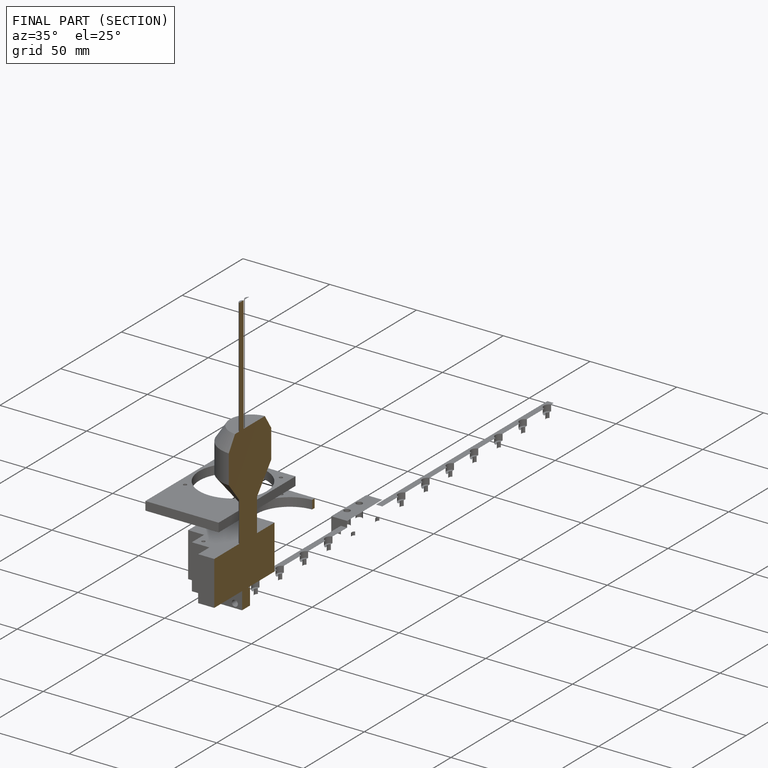
[diagram: finished part — half-section view (interior)]
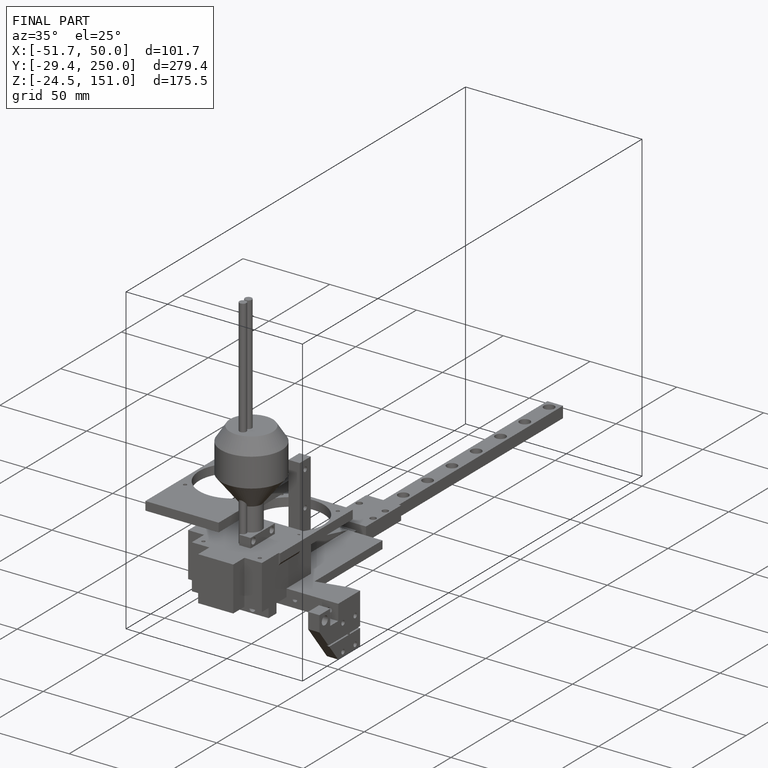
[diagram: finished part — iso view with bounding-box wireframe]
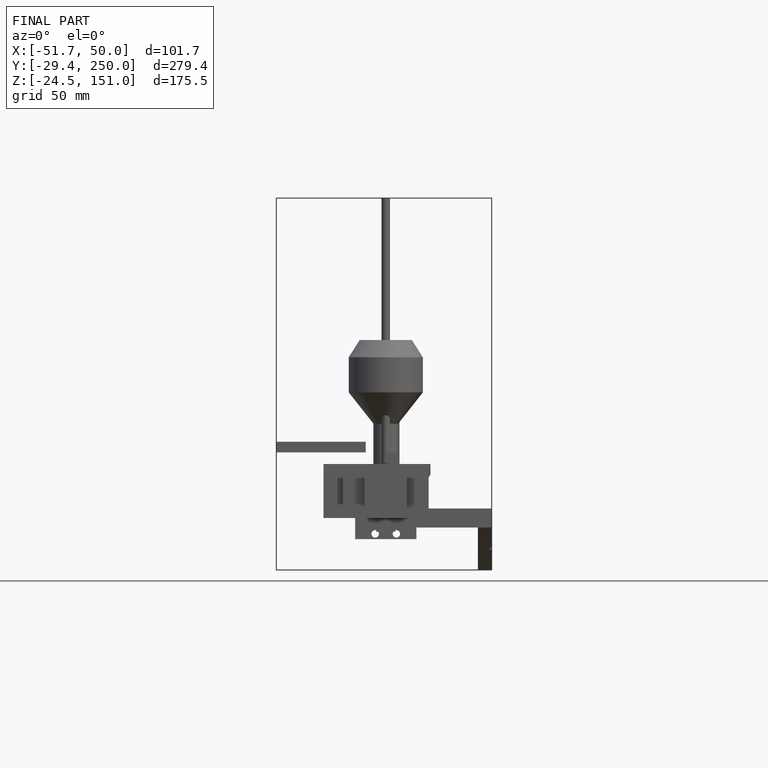
[diagram: finished part — front view with bounding-box wireframe]
